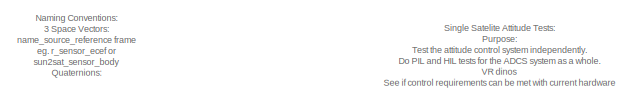
[diagram: root canvas - part 1/2, top left region]
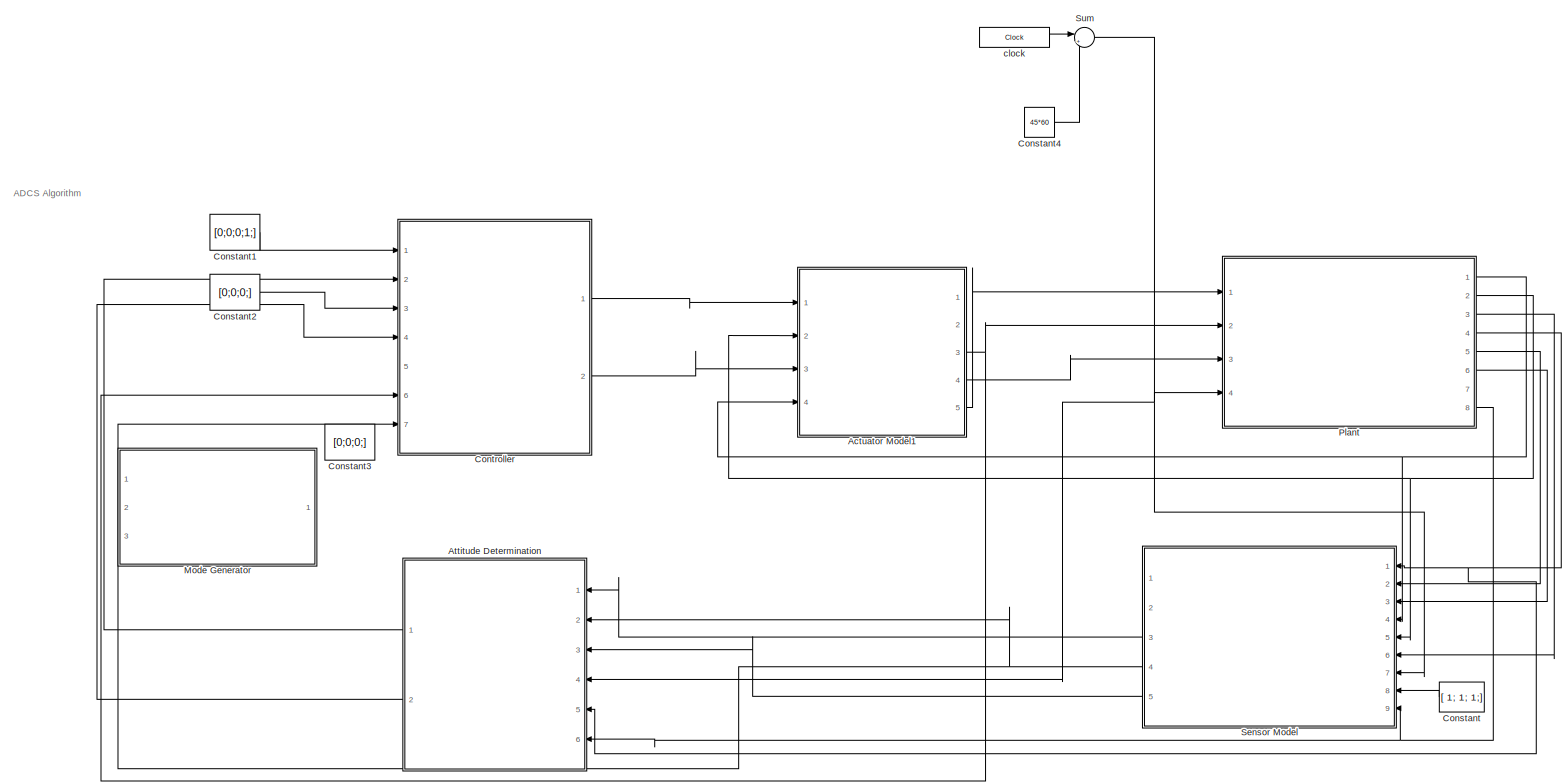
[diagram: root canvas - part 2/2, most of the canvas]
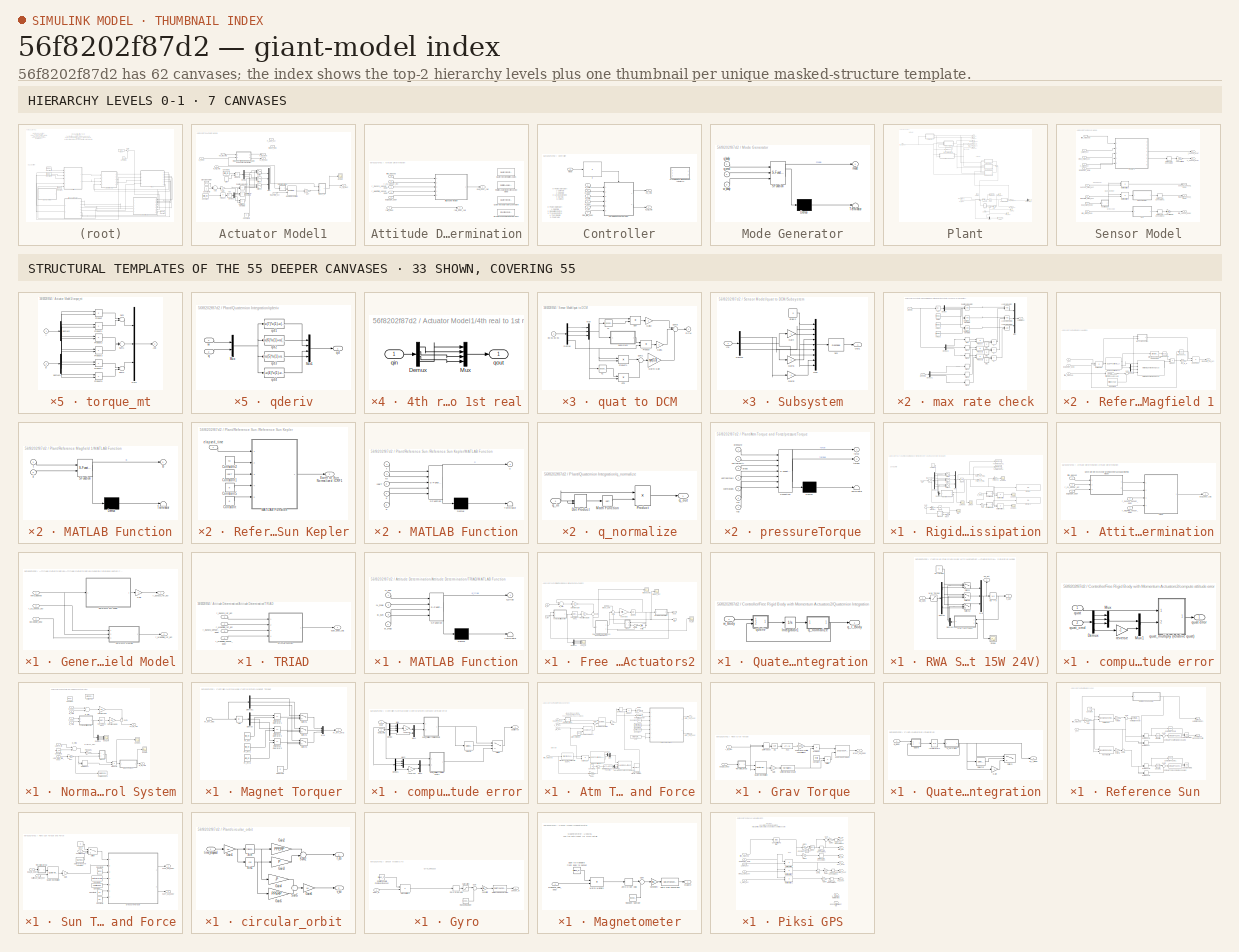
[diagram: thumbnail index - top-2 hierarchy levels (7 canvases) + 33 structural-template representatives of the remaining 55 canvases]
MODEL slx_56f8202f87d2
KIND model
CONFIG AbsTol = auto
CONFIG EnableMultiTasking = off
CONFIG FixedStep = 1/100
CONFIG MaxStep = auto
CONFIG MinStep = auto
CONFIG RelTol = 1e-3
CONFIG SampleTimeConstraint = Unconstrained
CONFIG Solver = ode1
CONFIG SolverName = ode1
CONFIG StartTime = 0.0
CONFIG StopTime = 10
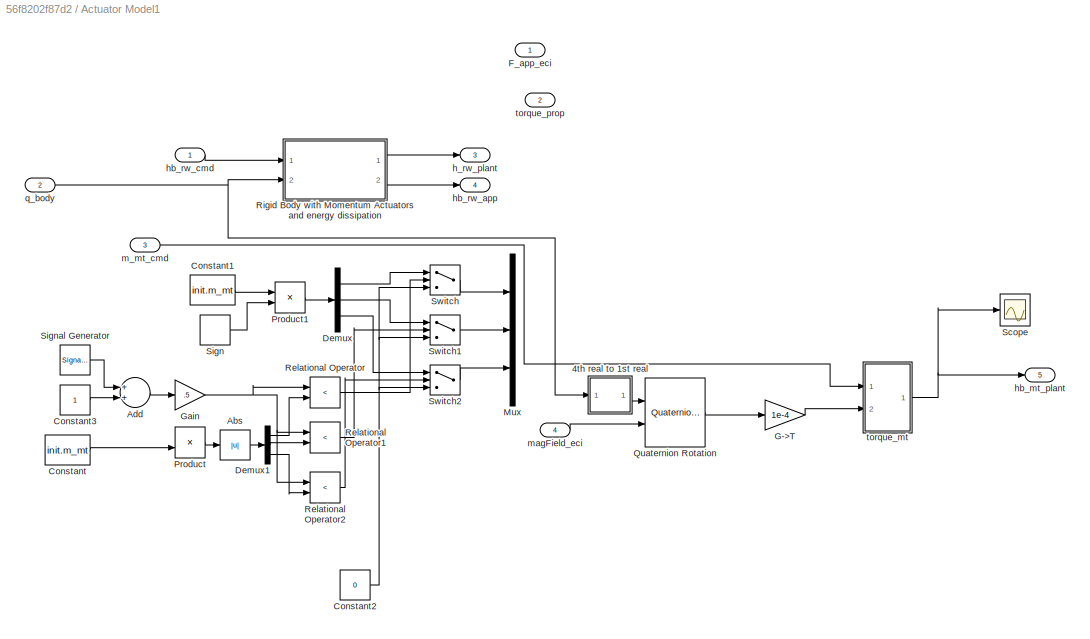
BLOCK [SubSystem] Actuator Model1
  Ports = [4, 5]
  RequestExecContextInheritance = off
BLOCK [SubSystem] Actuator Model1/4th real to 1st real
  Ports = [1, 1]
  RequestExecContextInheritance = off
BLOCK [Demux] Actuator Model1/4th real to 1st real/Demux
  DisplayOption = bar
  Ports = [1, 4]
BLOCK [Mux] Actuator Model1/4th real to 1st real/Mux
  DisplayOption = bar
  Ports = [4, 1]
BLOCK [Inport] Actuator Model1/4th real to 1st real/qin
  IconDisplay = Port number
BLOCK [Outport] Actuator Model1/4th real to 1st real/qout
  IconDisplay = Port number
BLOCK [Abs] Actuator Model1/Abs
BLOCK [Sum] Actuator Model1/Add
  InputSameDT = off
  OutDataTypeStr = Inherit: Inherit via internal rule
  Ports = [2, 1]
  SaturateOnIntegerOverflow = off
BLOCK [Constant] Actuator Model1/Constant
  Value = init.m_mt
BLOCK [Constant] Actuator Model1/Constant1
  Value = init.m_mt
BLOCK [Constant] Actuator Model1/Constant2
  Value = 0
BLOCK [Constant] Actuator Model1/Constant3
BLOCK [Demux] Actuator Model1/Demux
  DisplayOption = bar
  Outputs = 3
  Ports = [1, 3]
BLOCK [Demux] Actuator Model1/Demux1
  DisplayOption = bar
  Outputs = 3
  Ports = [1, 3]
BLOCK [Outport] Actuator Model1/F_app_eci
  IconDisplay = Port number
BLOCK [Gain] Actuator Model1/G->T
  Gain = 1e-4
  OutDataTypeStr = Inherit: Inherit via internal rule
  ParamDataTypeStr = Inherit: Inherit via internal rule
  SaturateOnIntegerOverflow = off
BLOCK [Gain] Actuator Model1/Gain
  Gain = .5
  OutDataTypeStr = Inherit: Inherit via internal rule
  ParamDataTypeStr = Inherit: Inherit via internal rule
  SaturateOnIntegerOverflow = off
BLOCK [Mux] Actuator Model1/Mux
  DisplayOption = bar
  Inputs = 3
  Ports = [3, 1]
BLOCK [Product] Actuator Model1/Product
  InputSameDT = off
  Inputs = */
  OutDataTypeStr = Inherit: Inherit via internal rule
  Ports = [2, 1]
  RndMeth = Floor
  SaturateOnIntegerOverflow = off
BLOCK [Product] Actuator Model1/Product1
  InputSameDT = off
  OutDataTypeStr = Inherit: Inherit via internal rule
  Ports = [2, 1]
  RndMeth = Floor
  SaturateOnIntegerOverflow = off
BLOCK [Reference] Actuator Model1/Quaternion Rotation  REF=aerolibutil/Quaternion
Rotation
  Ports = [2, 1]
  SourceBlock = aerolibutil/Quaternion\nRotation
  SourceProductBaseCode = AE
  SourceProductName = Aerospace Blockset
  SourceType = Quaternion Rotation
BLOCK [RelationalOperator] Actuator Model1/Relational Operator
  InputSameDT = off
  Operator = <
  OutDataTypeStr = boolean
  Ports = [2, 1]
  RndMeth = Simplest
BLOCK [RelationalOperator] Actuator Model1/Relational Operator1
  InputSameDT = off
  Operator = <
  OutDataTypeStr = boolean
  Ports = [2, 1]
  RndMeth = Simplest
BLOCK [RelationalOperator] Actuator Model1/Relational Operator2
  InputSameDT = off
  Operator = <
  OutDataTypeStr = boolean
  Ports = [2, 1]
  RndMeth = Simplest
BLOCK [SubSystem] Actuator Model1/Rigid Body with Momentum Actuators and energy dissipation
  Ports = [2, 2]
  RequestExecContextInheritance = off
BLOCK [SubSystem] Actuator Model1/Rigid Body with Momentum Actuators and energy dissipation/Cross1
  Ports = [2, 1]
  RequestExecContextInheritance = off
BLOCK [Inport] Actuator Model1/Rigid Body with Momentum Actuators and energy dissipation/Cross1/A
  IconDisplay = Port number
  PortDimensions = 3
BLOCK [Outport] Actuator Model1/Rigid Body with Momentum Actuators and energy dissipation/Cross1/AxB
  IconDisplay = Port number
  InitialOutput = 0
BLOCK [Inport] Actuator Model1/Rigid Body with Momentum Actuators and energy dissipation/Cross1/B
  IconDisplay = Port number
  Port = 2
  PortDimensions = 3
BLOCK [Mux] Actuator Model1/Rigid Body with Momentum Actuators and energy dissipation/Cross1/Mux4
  Inputs = 3
  Ports = [3, 1]
BLOCK [Product] Actuator Model1/Rigid Body with Momentum Actuators and energy dissipation/Cross1/Product
  Ports = [2, 1]
  RndMeth = Floor
BLOCK [Product] Actuator Model1/Rigid Body with Momentum Actuators and energy dissipation/Cross1/Product1
  Ports = [2, 1]
  RndMeth = Floor
BLOCK [Product] Actuator Model1/Rigid Body with Momentum Actuators and energy dissipation/Cross1/Product2
  Ports = [2, 1]
  RndMeth = Floor
BLOCK [Product] Actuator Model1/Rigid Body with Momentum Actuators and energy dissipation/Cross1/Product3
  Ports = [2, 1]
  RndMeth = Floor
BLOCK [Product] Actuator Model1/Rigid Body with Momentum Actuators and energy dissipation/Cross1/Product4
  Ports = [2, 1]
  RndMeth = Floor
BLOCK [Product] Actuator Model1/Rigid Body with Momentum Actuators and energy dissipation/Cross1/Product5
  Ports = [2, 1]
  RndMeth = Floor
BLOCK [Sum] Actuator Model1/Rigid Body with Momentum Actuators and energy dissipation/Cross1/Sum
  Inputs = +-
  Ports = [2, 1]
BLOCK [Sum] Actuator Model1/Rigid Body with Momentum Actuators and energy dissipation/Cross1/Sum1
  Inputs = +-
  Ports = [2, 1]
BLOCK [Sum] Actuator Model1/Rigid Body with Momentum Actuators and energy dissipation/Cross1/Sum2
  Inputs = +-
  Ports = [2, 1]
BLOCK [Demux] Actuator Model1/Rigid Body with Momentum Actuators and energy dissipation/Cross1/demux2
  Outputs = 3
  Ports = [1, 3]
BLOCK [Demux] Actuator Model1/Rigid Body with Momentum Actuators and energy dissipation/Cross1/demux3
  Outputs = 3
  Ports = [1, 3]
BLOCK [Demux] Actuator Model1/Rigid Body with Momentum Actuators and energy dissipation/Demux
  Outputs = 3
  Ports = [1, 3]
BLOCK [Demux] Actuator Model1/Rigid Body with Momentum Actuators and energy dissipation/Demux1
  Outputs = 3
  Ports = [1, 3]
BLOCK [Display] Actuator Model1/Rigid Body with Momentum Actuators and energy dissipation/Display
  Decimation = 1
  Ports = [1]
BLOCK [Display] Actuator Model1/Rigid Body with Momentum Actuators and energy dissipation/Display1
  Decimation = 1
  Ports = [1]
BLOCK [Outport] Actuator Model1/Rigid Body with Momentum Actuators and energy dissipation/FWR_h_RWA
  IconDisplay = Port number
  PortDimensions = 3
BLOCK [Outport] Actuator Model1/Rigid Body with Momentum Actuators and energy dissipation/FWR_hb_RWA
  IconDisplay = Port number
  Port = 2
  PortDimensions = 3
BLOCK [Gain] Actuator Model1/Rigid Body with Momentum Actuators and energy dissipation/Gain
  Gain = -1
  OutDataTypeStr = Inherit: Inherit via internal rule
  ParamDataTypeStr = Inherit: Inherit via internal rule
  SaturateOnIntegerOverflow = off
BLOCK [Scope] Actuator Model1/Rigid Body with Momentum Actuators and energy dissipation/LDR_h
  Floating = off
  NumInputPorts = 1
  Ports = [1]
  ScopeSpecificationString = Simulink.scopes.TimeScopeBlockCfg('CurrentConfiguration', extmgr.ConfigurationSet(extmgr.Configuration('Core','General UI',true),extmgr.Configuration('Core','Source UI',true),extmgr.Configuration('Sources','WiredSimulink',true,'DataLoggingVariableName','ScopeData3','DataLoggingSaveFormat','StructureWithTime','DataLoggingDecimation','1','DataLoggingDecimateData',true),extmgr.Configuration('Visuals'...<+1738ch>
BLOCK [Scope] Actuator Model1/Rigid Body with Momentum Actuators and energy dissipation/LDR_hb
  Floating = off
  NumInputPorts = 1
  Ports = [1]
  ScopeSpecificationString = Simulink.scopes.TimeScopeBlockCfg('CurrentConfiguration', extmgr.ConfigurationSet(extmgr.Configuration('Core','General UI',true),extmgr.Configuration('Core','Source UI',true),extmgr.Configuration('Sources','WiredSimulink',true,'DataLoggingVariableName','ScopeData2','DataLoggingSaveFormat','StructureWithTime','DataLoggingDecimation','1','DataLoggingDecimateData',true),extmgr.Configuration('Visuals'...<+1819ch>
BLOCK [Product] Actuator Model1/Rigid Body with Momentum Actuators and energy dissipation/Matrix Multiply
  InputSameDT = off
  Multiplication = Matrix(*)
  OutDataTypeStr = Inherit: Inherit via internal rule
  Ports = [2, 1]
  RndMeth = Floor
  SaturateOnIntegerOverflow = off
BLOCK [Product] Actuator Model1/Rigid Body with Momentum Actuators and energy dissipation/Matrix Multiply1
  InputSameDT = off
  Multiplication = Matrix(*)
  OutDataTypeStr = Inherit: Inherit via internal rule
  Ports = [2, 1]
  RndMeth = Floor
  SaturateOnIntegerOverflow = off
BLOCK [Saturate] Actuator Model1/Rigid Body with Momentum Actuators and energy dissipation/Max Torque
  InputPortMap = u0
  LowerLimit = -init.hdmax
  Ports = [1, 1]
  UpperLimit = init.hdmax
BLOCK [Mux] Actuator Model1/Rigid Body with Momentum Actuators and energy dissipation/Mux
  DisplayOption = bar
  Inputs = 3
  Ports = [3, 1]
BLOCK [Gain] Actuator Model1/Rigid Body with Momentum Actuators and energy dissipation/RWA I
  Gain = init.RWA_I
  Multiplication = Matrix(K*u)
  OutDataTypeStr = Inherit: Inherit via internal rule
  ParamDataTypeStr = Inherit: Inherit via internal rule
  SaturateOnIntegerOverflow = off
BLOCK [Gain] Actuator Model1/Rigid Body with Momentum Actuators and energy dissipation/RWA invI
  Gain = init.RWA.invI
  Multiplication = Matrix(K*u)
  OutDataTypeStr = Inherit: Inherit via internal rule
  ParamDataTypeStr = Inherit: Inherit via internal rule
  SaturateOnIntegerOverflow = off
BLOCK [Gain] Actuator Model1/Rigid Body with Momentum Actuators and energy dissipation/RWA invI1
  Gain = init.RWA.invI
  Multiplication = Matrix(K*u)
  OutDataTypeStr = Inherit: Inherit via internal rule
  ParamDataTypeStr = Inherit: Inherit via internal rule
  SaturateOnIntegerOverflow = off
BLOCK [Scope] Actuator Model1/Rigid Body with Momentum Actuators and energy dissipation/Scope1
  Floating = off
  NumInputPorts = 1
  Ports = [1]
  ScopeSpecificationString = Simulink.scopes.TimeScopeBlockCfg('CurrentConfiguration', extmgr.ConfigurationSet(extmgr.Configuration('Core','General UI',true),extmgr.Configuration('Core','Source UI',true),extmgr.Configuration('Sources','WiredSimulink',true,'DataLoggingVariableName','ScopeData2','DataLoggingSaveFormat','StructureWithTime','DataLoggingDecimation','1','DataLoggingDecimateData',true),extmgr.Configuration('Visuals'...<+1891ch>
BLOCK [Scope] Actuator Model1/Rigid Body with Momentum Actuators and energy dissipation/Scope2
  Floating = off
  NumInputPorts = 1
  Ports = [1]
  ScopeSpecificationString = Simulink.scopes.TimeScopeBlockCfg('CurrentConfiguration', extmgr.ConfigurationSet(extmgr.Configuration('Core','General UI',true),extmgr.Configuration('Core','Source UI',true),extmgr.Configuration('Sources','WiredSimulink',true,'DataLoggingVariableName','ScopeData1','DataLoggingSaveFormat','StructureWithTime','DataLoggingDecimation','1','DataLoggingDecimateData',true),extmgr.Configuration('Visuals'...<+1888ch>
BLOCK [Scope] Actuator Model1/Rigid Body with Momentum Actuators and energy dissipation/Scope3
  Floating = off
  NumInputPorts = 1
  Ports = [1]
  ScopeSpecificationString = Simulink.scopes.TimeScopeBlockCfg('CurrentConfiguration', extmgr.ConfigurationSet(extmgr.Configuration('Core','General UI',true),extmgr.Configuration('Core','Source UI',true),extmgr.Configuration('Sources','WiredSimulink',true,'DataLoggingVariableName','ScopeData4','DataLoggingSaveFormat','StructureWithTime','DataLoggingDecimation','1','DataLoggingDecimateData',true),extmgr.Configuration('Visuals'...<+1896ch>
BLOCK [Sum] Actuator Model1/Rigid Body with Momentum Actuators and energy dissipation/Sum
  IconShape = round
  InputSameDT = off
  Inputs = +|-
  OutDataTypeStr = Inherit: Inherit via internal rule
  Ports = [2, 1]
  SaturateOnIntegerOverflow = off
BLOCK [Switch] Actuator Model1/Rigid Body with Momentum Actuators and energy dissipation/Switch
  Threshold = 0.5
BLOCK [Switch] Actuator Model1/Rigid Body with Momentum Actuators and energy dissipation/Switch1
  Threshold = 0.5
BLOCK [Switch] Actuator Model1/Rigid Body with Momentum Actuators and energy dissipation/Switch2
  Threshold = 0.5
BLOCK [ToWorkspace] Actuator Model1/Rigid Body with Momentum Actuators and energy dissipation/To Workspace
  FixptAsFi = on
  MaxDataPoints = inf
  Ports = [1]
  SampleTime = -1
  Save2DSignal = 3-D array (concatenate along third dimension)
  SaveFormat = Timeseries
  VariableName = h
BLOCK [ToWorkspace] Actuator Model1/Rigid Body with Momentum Actuators and energy dissipation/To Workspace1
  FixptAsFi = on
  MaxDataPoints = inf
  Ports = [1]
  SampleTime = -1
  Save2DSignal = 3-D array (concatenate along third dimension)
  SaveFormat = Timeseries
  VariableName = hb
BLOCK [Inport] Actuator Model1/Rigid Body with Momentum Actuators and energy dissipation/hb
  IconDisplay = Port number
BLOCK [Integrator] Actuator Model1/Rigid Body with Momentum Actuators and energy dissipation/hb -> h
  InitialCondition = init.LDR.h
  Ports = [1, 1]
BLOCK [SubSystem] Actuator Model1/Rigid Body with Momentum Actuators and energy dissipation/max rate check
  Ports = [2, 1]
  RequestExecContextInheritance = off
BLOCK [Constant] Actuator Model1/Rigid Body with Momentum Actuators and energy dissipation/max rate check/0 to 1
  Value = 0
  VectorParams1D = off
BLOCK [Constant] Actuator Model1/Rigid Body with Momentum Actuators and energy dissipation/max rate check/0 to 1 
  Value = 0
  VectorParams1D = off
BLOCK [Constant] Actuator Model1/Rigid Body with Momentum Actuators and energy dissipation/max rate check/0 to 1  
  Value = 0
  VectorParams1D = off
BLOCK [Abs] Actuator Model1/Rigid Body with Momentum Actuators and energy dissipation/max rate check/Abs
BLOCK [Demux] Actuator Model1/Rigid Body with Momentum Actuators and energy dissipation/max rate check/Demux
  Outputs = 3
  Ports = [1, 3]
BLOCK [Demux] Actuator Model1/Rigid Body with Momentum Actuators and energy dissipation/max rate check/Demux1
  Outputs = 3
  Ports = [1, 3]
BLOCK [Demux] Actuator Model1/Rigid Body with Momentum Actuators and energy dissipation/max rate check/Demux2
  Outputs = 3
  Ports = [1, 3]
BLOCK [Logic] Actuator Model1/Rigid Body with Momentum Actuators and energy dissipation/max rate check/Logical Operator
  Ports = [2, 1]
BLOCK [Logic] Actuator Model1/Rigid Body with Momentum Actuators and energy dissipation/max rate check/Logical Operator1
  Ports = [2, 1]
BLOCK [Logic] Actuator Model1/Rigid Body with Momentum Actuators and energy dissipation/max rate check/Logical Operator2
  Ports = [2, 1]
BLOCK [Mux] Actuator Model1/Rigid Body with Momentum Actuators and energy dissipation/max rate check/Mux
  DisplayOption = bar
  Inputs = 3
  Ports = [3, 1]
BLOCK [Product] Actuator Model1/Rigid Body with Momentum Actuators and energy dissipation/max rate check/Product
  Ports = [2, 1]
  RndMeth = Floor
BLOCK [Product] Actuator Model1/Rigid Body with Momentum Actuators and energy dissipation/max rate check/Product1
  Ports = [2, 1]
  RndMeth = Floor
BLOCK [Product] Actuator Model1/Rigid Body with Momentum Actuators and energy dissipation/max rate check/Product2
  Ports = [2, 1]
  RndMeth = Floor
BLOCK [RelationalOperator] Actuator Model1/Rigid Body with Momentum Actuators and energy dissipation/max rate check/Relational Operator
  Ports = [2, 1]
BLOCK [RelationalOperator] Actuator Model1/Rigid Body with Momentum Actuators and energy dissipation/max rate check/Relational Operator1
  Ports = [2, 1]
BLOCK [RelationalOperator] Actuator Model1/Rigid Body with Momentum Actuators and energy dissipation/max rate check/Relational Operator2
  Ports = [2, 1]
BLOCK [Signum] Actuator Model1/Rigid Body with Momentum Actuators and energy dissipation/max rate check/Sign
BLOCK [Signum] Actuator Model1/Rigid Body with Momentum Actuators and energy dissipation/max rate check/Sign1
BLOCK [Signum] Actuator Model1/Rigid Body with Momentum Actuators and energy dissipation/max rate check/Sign2
BLOCK [Signum] Actuator Model1/Rigid Body with Momentum Actuators and energy dissipation/max rate check/Sign3
BLOCK [Signum] Actuator Model1/Rigid Body with Momentum Actuators and energy dissipation/max rate check/Sign4
BLOCK [Signum] Actuator Model1/Rigid Body with Momentum Actuators and energy dissipation/max rate check/Sign5
BLOCK [RelationalOperator] Actuator Model1/Rigid Body with Momentum Actuators and energy dissipation/max rate check/gt
  Operator = >
  Ports = [2, 1]
BLOCK [RelationalOperator] Actuator Model1/Rigid Body with Momentum Actuators and energy dissipation/max rate check/gt 
  Operator = >
  Ports = [2, 1]
BLOCK [RelationalOperator] Actuator Model1/Rigid Body with Momentum Actuators and energy dissipation/max rate check/gt  
  Operator = >
  Ports = [2, 1]
BLOCK [Constant] Actuator Model1/Rigid Body with Momentum Actuators and energy dissipation/max rate check/hmax
  Value = init.hmax
  VectorParams1D = off
BLOCK [Constant] Actuator Model1/Rigid Body with Momentum Actuators and energy dissipation/max rate check/hmax1
  Value = init.hmax
  VectorParams1D = off
BLOCK [Constant] Actuator Model1/Rigid Body with Momentum Actuators and energy dissipation/max rate check/hmax2
  Value = init.hmax
  VectorParams1D = off
BLOCK [Outport] Actuator Model1/Rigid Body with Momentum Actuators and energy dissipation/max rate check/saturated?
  IconDisplay = Port number
BLOCK [Inport] Actuator Model1/Rigid Body with Momentum Actuators and energy dissipation/max rate check/wheel h
  IconDisplay = Port number
BLOCK [Inport] Actuator Model1/Rigid Body with Momentum Actuators and energy dissipation/max rate check/wheel hb
  IconDisplay = Port number
  Port = 2
BLOCK [Constant] Actuator Model1/Rigid Body with Momentum Actuators and energy dissipation/no torque
  Value = 0
BLOCK [Inport] Actuator Model1/Rigid Body with Momentum Actuators and energy dissipation/q_body
  IconDisplay = Port number
  Port = 2
BLOCK [SubSystem] Actuator Model1/Rigid Body with Momentum Actuators and energy dissipation/quat to DCM
  Ports = [1, 1]
  RequestExecContextInheritance = off
  ShowPortLabels = none
BLOCK [Outport] Actuator Model1/Rigid Body with Momentum Actuators and energy dissipation/quat to DCM/DCM
  IconDisplay = Port number
  InitialOutput = 0
BLOCK [Demux] Actuator Model1/Rigid Body with Momentum Actuators and energy dissipation/quat to DCM/Demux
  Ports = [1, 4]
BLOCK [Gain] Actuator Model1/Rigid Body with Momentum Actuators and energy dissipation/quat to DCM/Gain1
  Gain = 2
BLOCK [Gain] Actuator Model1/Rigid Body with Momentum Actuators and energy dissipation/quat to DCM/Gain2
  Gain = 2
BLOCK [Gain] Actuator Model1/Rigid Body with Momentum Actuators and energy dissipation/quat to DCM/Matrix Gain
  Gain = eye(3,3)
BLOCK [Mux] Actuator Model1/Rigid Body with Momentum Actuators and energy dissipation/quat to DCM/Mux
  DisplayOption = bar
  Inputs = 3
  Ports = [3, 1]
BLOCK [Product] Actuator Model1/Rigid Body with Momentum Actuators and energy dissipation/quat to DCM/Product
  Ports = [2, 1]
  RndMeth = Floor
BLOCK [Product] Actuator Model1/Rigid Body with Momentum Actuators and energy dissipation/quat to DCM/Product1
  Ports = [2, 1]
  RndMeth = Floor
BLOCK [SubSystem] Actuator Model1/Rigid Body with Momentum Actuators and energy dissipation/quat to DCM/Subsystem
  Ports = [1, 1]
  RequestExecContextInheritance = off
BLOCK [Reshape] Actuator Model1/Rigid Body with Momentum Actuators and energy dissipation/quat to DCM/Subsystem/3x3
  OutputDimensionality = Customize
  OutputDimensions = [3,3]
  Ports = [1, 1]
BLOCK [Demux] Actuator Model1/Rigid Body with Momentum Actuators and energy dissipation/quat to DCM/Subsystem/Demux
  Outputs = 3
  Ports = [1, 3]
BLOCK [Gain] Actuator Model1/Rigid Body with Momentum Actuators and energy dissipation/quat to DCM/Subsystem/Gain
  Gain = -1
BLOCK [Gain] Actuator Model1/Rigid Body with Momentum Actuators and energy dissipation/quat to DCM/Subsystem/Gain1
  Gain = -1
BLOCK [Gain] Actuator Model1/Rigid Body with Momentum Actuators and energy dissipation/quat to DCM/Subsystem/Gain2
  Gain = -1
BLOCK [Inport] Actuator Model1/Rigid Body with Momentum Actuators and energy dissipation/quat to DCM/Subsystem/In1
  IconDisplay = Port number
BLOCK [Mux] Actuator Model1/Rigid Body with Momentum Actuators and energy dissipation/quat to DCM/Subsystem/Mux
  DisplayOption = bar
  Inputs = 9
  Ports = [9, 1]
BLOCK [Outport] Actuator Model1/Rigid Body with Momentum Actuators and energy dissipation/quat to DCM/Subsystem/Out1
  IconDisplay = Port number
BLOCK [Constant] Actuator Model1/Rigid Body with Momentum Actuators and energy dissipation/quat to DCM/Subsystem/diag 0 
  Value = 0
BLOCK [Sum] Actuator Model1/Rigid Body with Momentum Actuators and energy dissipation/quat to DCM/Sum1
  IconShape = round
  Inputs = |+-
  Ports = [2, 1]
BLOCK [Sum] Actuator Model1/Rigid Body with Momentum Actuators and energy dissipation/quat to DCM/Sum8
  IconShape = round
  Inputs = |+-+
  Ports = [3, 1]
BLOCK [Math] Actuator Model1/Rigid Body with Momentum Actuators and energy dissipation/quat to DCM/T1
  Operator = transpose
  Ports = [1, 1]
BLOCK [Math] Actuator Model1/Rigid Body with Momentum Actuators and energy dissipation/quat to DCM/T2
  Operator = transpose
  Ports = [1, 1]
BLOCK [Inport] Actuator Model1/Rigid Body with Momentum Actuators and energy dissipation/quat to DCM/e0 e1 e2 e3
  IconDisplay = Port number
BLOCK [Product] Actuator Model1/Rigid Body with Momentum Actuators and energy dissipation/quat to DCM/qTq
  Multiplication = Matrix(*)
  Ports = [2, 1]
  RndMeth = Floor
BLOCK [Product] Actuator Model1/Rigid Body with Momentum Actuators and energy dissipation/quat to DCM/qqT
  Multiplication = Matrix(*)
  Ports = [2, 1]
  RndMeth = Floor
BLOCK [SubSystem] Actuator Model1/Rigid Body with Momentum Actuators and energy dissipation/quat to DCM1
  Ports = [1, 1]
  RequestExecContextInheritance = off
  ShowPortLabels = none
BLOCK [Outport] Actuator Model1/Rigid Body with Momentum Actuators and energy dissipation/quat to DCM1/DCM
  IconDisplay = Port number
  InitialOutput = 0
BLOCK [Demux] Actuator Model1/Rigid Body with Momentum Actuators and energy dissipation/quat to DCM1/Demux
  Ports = [1, 4]
BLOCK [Gain] Actuator Model1/Rigid Body with Momentum Actuators and energy dissipation/quat to DCM1/Gain1
  Gain = 2
BLOCK [Gain] Actuator Model1/Rigid Body with Momentum Actuators and energy dissipation/quat to DCM1/Gain2
  Gain = 2
BLOCK [Gain] Actuator Model1/Rigid Body with Momentum Actuators and energy dissipation/quat to DCM1/Matrix Gain
  Gain = eye(3,3)
BLOCK [Mux] Actuator Model1/Rigid Body with Momentum Actuators and energy dissipation/quat to DCM1/Mux
  DisplayOption = bar
  Inputs = 3
  Ports = [3, 1]
BLOCK [Product] Actuator Model1/Rigid Body with Momentum Actuators and energy dissipation/quat to DCM1/Product
  Ports = [2, 1]
  RndMeth = Floor
BLOCK [Product] Actuator Model1/Rigid Body with Momentum Actuators and energy dissipation/quat to DCM1/Product1
  Ports = [2, 1]
  RndMeth = Floor
BLOCK [SubSystem] Actuator Model1/Rigid Body with Momentum Actuators and energy dissipation/quat to DCM1/Subsystem
  Ports = [1, 1]
  RequestExecContextInheritance = off
BLOCK [Reshape] Actuator Model1/Rigid Body with Momentum Actuators and energy dissipation/quat to DCM1/Subsystem/3x3
  OutputDimensionality = Customize
  OutputDimensions = [3,3]
  Ports = [1, 1]
BLOCK [Demux] Actuator Model1/Rigid Body with Momentum Actuators and energy dissipation/quat to DCM1/Subsystem/Demux
  Outputs = 3
  Ports = [1, 3]
BLOCK [Gain] Actuator Model1/Rigid Body with Momentum Actuators and energy dissipation/quat to DCM1/Subsystem/Gain
  Gain = -1
BLOCK [Gain] Actuator Model1/Rigid Body with Momentum Actuators and energy dissipation/quat to DCM1/Subsystem/Gain1
  Gain = -1
BLOCK [Gain] Actuator Model1/Rigid Body with Momentum Actuators and energy dissipation/quat to DCM1/Subsystem/Gain2
  Gain = -1
BLOCK [Inport] Actuator Model1/Rigid Body with Momentum Actuators and energy dissipation/quat to DCM1/Subsystem/In1
  IconDisplay = Port number
BLOCK [Mux] Actuator Model1/Rigid Body with Momentum Actuators and energy dissipation/quat to DCM1/Subsystem/Mux
  DisplayOption = bar
  Inputs = 9
  Ports = [9, 1]
BLOCK [Outport] Actuator Model1/Rigid Body with Momentum Actuators and energy dissipation/quat to DCM1/Subsystem/Out1
  IconDisplay = Port number
BLOCK [Constant] Actuator Model1/Rigid Body with Momentum Actuators and energy dissipation/quat to DCM1/Subsystem/diag 0 
  Value = 0
BLOCK [Sum] Actuator Model1/Rigid Body with Momentum Actuators and energy dissipation/quat to DCM1/Sum1
  IconShape = round
  Inputs = |+-
  Ports = [2, 1]
BLOCK [Sum] Actuator Model1/Rigid Body with Momentum Actuators and energy dissipation/quat to DCM1/Sum8
  IconShape = round
  Inputs = |+-+
  Ports = [3, 1]
BLOCK [Math] Actuator Model1/Rigid Body with Momentum Actuators and energy dissipation/quat to DCM1/T1
  Operator = transpose
  Ports = [1, 1]
BLOCK [Math] Actuator Model1/Rigid Body with Momentum Actuators and energy dissipation/quat to DCM1/T2
  Operator = transpose
  Ports = [1, 1]
BLOCK [Inport] Actuator Model1/Rigid Body with Momentum Actuators and energy dissipation/quat to DCM1/e0 e1 e2 e3
  IconDisplay = Port number
BLOCK [Product] Actuator Model1/Rigid Body with Momentum Actuators and energy dissipation/quat to DCM1/qTq
  Multiplication = Matrix(*)
  Ports = [2, 1]
  RndMeth = Floor
BLOCK [Product] Actuator Model1/Rigid Body with Momentum Actuators and energy dissipation/quat to DCM1/qqT
  Multiplication = Matrix(*)
  Ports = [2, 1]
  RndMeth = Floor
BLOCK [Scope] Actuator Model1/Rigid Body with Momentum Actuators and energy dissipation/rwa
  Floating = off
  NumInputPorts = 1
  Ports = [1]
  ScopeSpecificationString = Simulink.scopes.TimeScopeBlockCfg('CurrentConfiguration', extmgr.ConfigurationSet(extmgr.Configuration('Core','General UI',true),extmgr.Configuration('Core','Source UI',true),extmgr.Configuration('Sources','WiredSimulink',true,'DataLoggingVariableName','ScopeData3','DataLoggingSaveFormat','StructureWithTime','DataLoggingDecimation','1','DataLoggingDecimateData',true),extmgr.Configuration('Visuals'...<+1896ch>
BLOCK [Integrator] Actuator Model1/Rigid Body with Momentum Actuators and energy dissipation/wb -> w
  InitialCondition = [0;0;0]
  Ports = [1, 1]
BLOCK [Scope] Actuator Model1/Scope
  Floating = off
  NumInputPorts = 1
  Ports = [1]
  ScopeSpecificationString = Simulink.scopes.TimeScopeBlockCfg('CurrentConfiguration', extmgr.ConfigurationSet(extmgr.Configuration('Core','General UI',true),extmgr.Configuration('Core','Source UI',true),extmgr.Configuration('Sources','WiredSimulink',true,'DataLoggingVariableName','ScopeData1'),extmgr.Configuration('Visuals','Time Domain',true,'SerializedDisplays',{struct('MinYLimReal','-1.00000','MaxYLimReal','1.00000','YLab...<+1548ch>
BLOCK [Signum] Actuator Model1/Sign
BLOCK [SignalGenerator] Actuator Model1/Signal Generator
  Frequency = .5
  Ports = [0, 1]
  WaveForm = sawtooth
BLOCK [Switch] Actuator Model1/Switch
  Threshold = 0.5
BLOCK [Switch] Actuator Model1/Switch1
  Threshold = 0.5
BLOCK [Switch] Actuator Model1/Switch2
  Threshold = 0.5
BLOCK [Outport] Actuator Model1/h_rw_plant
  IconDisplay = Port number
  Port = 3
BLOCK [Outport] Actuator Model1/hb_mt_plant
  IconDisplay = Port number
  Port = 5
BLOCK [Outport] Actuator Model1/hb_rw_app
  IconDisplay = Port number
  Port = 4
BLOCK [Inport] Actuator Model1/hb_rw_cmd
  IconDisplay = Port number
BLOCK [Inport] Actuator Model1/m_mt_cmd
  IconDisplay = Port number
  Port = 3
BLOCK [Inport] Actuator Model1/magField_eci
  IconDisplay = Port number
  Port = 4
  PortDimensions = 3
  Unit = G
BLOCK [Inport] Actuator Model1/q_body
  IconDisplay = Port number
  Port = 2
BLOCK [SubSystem] Actuator Model1/torque_mt
  Ports = [2, 1]
  RequestExecContextInheritance = off
BLOCK [Inport] Actuator Model1/torque_mt/A
  IconDisplay = Port number
BLOCK [Outport] Actuator Model1/torque_mt/AxB
  IconDisplay = Port number
  InitialOutput = 0
BLOCK [Inport] Actuator Model1/torque_mt/B
  IconDisplay = Port number
  Port = 2
BLOCK [Mux] Actuator Model1/torque_mt/Mux4
  Inputs = 3
  Ports = [3, 1]
BLOCK [Product] Actuator Model1/torque_mt/Product
  Ports = [2, 1]
  RndMeth = Floor
BLOCK [Product] Actuator Model1/torque_mt/Product1
  Ports = [2, 1]
  RndMeth = Floor
BLOCK [Product] Actuator Model1/torque_mt/Product2
  Ports = [2, 1]
  RndMeth = Floor
BLOCK [Product] Actuator Model1/torque_mt/Product3
  Ports = [2, 1]
  RndMeth = Floor
BLOCK [Product] Actuator Model1/torque_mt/Product4
  Ports = [2, 1]
  RndMeth = Floor
BLOCK [Product] Actuator Model1/torque_mt/Product5
  Ports = [2, 1]
  RndMeth = Floor
BLOCK [Sum] Actuator Model1/torque_mt/Sum
  Inputs = +-
  Ports = [2, 1]
BLOCK [Sum] Actuator Model1/torque_mt/Sum1
  Inputs = +-
  Ports = [2, 1]
BLOCK [Sum] Actuator Model1/torque_mt/Sum2
  Inputs = +-
  Ports = [2, 1]
BLOCK [Demux] Actuator Model1/torque_mt/demux2
  Outputs = 3
  Ports = [1, 3]
BLOCK [Demux] Actuator Model1/torque_mt/demux3
  Outputs = 3
  Ports = [1, 3]
BLOCK [Outport] Actuator Model1/torque_prop
  IconDisplay = Port number
  Port = 2
BLOCK [SubSystem] Attitude Determination
  Ports = [6, 2]
  RequestExecContextInheritance = off
BLOCK [SubSystem] Attitude Determination/Attitude Determination
  Ports = [5, 1]
  RequestExecContextInheritance = off
BLOCK [Inport] Attitude Determination/Attitude Determination/ECI2ECEF_DCM
  IconDisplay = Port number
  Port = 5
BLOCK [SubSystem] Attitude Determination/Attitude Determination/Generate reference vectors from Ephemeris and Magnetic Field Model
  Ports = [3, 2]
  RequestExecContextInheritance = off
BLOCK [Inport] Attitude Determination/Attitude Determination/Generate reference vectors from Ephemeris and Magnetic Field Model/ECI2ECEF_DCM
  IconDisplay = Port number
  Port = 3
BLOCK [Gain] Attitude Determination/Attitude Determination/Generate reference vectors from Ephemeris and Magnetic Field Model/Gain
  Gain = -1
  OutDataTypeStr = Inherit: Inherit via internal rule
  ParamDataTypeStr = Inherit: Inherit via internal rule
  SaturateOnIntegerOverflow = off
BLOCK [SubSystem] Attitude Determination/Attitude Determination/Generate reference vectors from Ephemeris and Magnetic Field Model/Reference Magfield 
  Ports = [3, 1]
  RequestExecContextInheritance = off
BLOCK [Constant] Attitude Determination/Attitude Determination/Generate reference vectors from Ephemeris and Magnetic Field Model/Reference Magfield /Constant1
  Value = init.decyear
BLOCK [Demux] Attitude Determination/Attitude Determination/Generate reference vectors from Ephemeris and Magnetic Field Model/Reference Magfield /Demux
  Commented = on
  DisplayOption = bar
  Outputs = 2
  Ports = [1, 2]
BLOCK [Reference] Attitude Determination/Attitude Determination/Generate reference vectors from Ephemeris and Magnetic Field Model/Reference Magfield /Direction Cosine Matrix ECEF to NED  REF=aerolibtransform2/Direction Cosine Matrix
ECEF to NED
  Commented = on
  Ports = [1, 1]
  SourceBlock = aerolibtransform2/Direction Cosine Matrix\nECEF to NED
  SourceProductBaseCode = AE
  SourceProductName = Aerospace Blockset
  SourceType = DCM ECEF to NED
BLOCK [Reference] Attitude Determination/Attitude Determination/Generate reference vectors from Ephemeris and Magnetic Field Model/Reference Magfield /ECEF Position to LLA  REF=aerolibtransform2/ECEF Position to LLA
  Commented = on
  Ports = [1, 2]
  SourceBlock = aerolibtransform2/ECEF Position to LLA
  SourceProductBaseCode = AE
  SourceProductName = Aerospace Blockset
  SourceType = ECEF to LLA
BLOCK [Product] Attitude Determination/Attitude Determination/Generate reference vectors from Ephemeris and Magnetic Field Model/Reference Magfield /ECEF to ECI
  InputSameDT = off
  Multiplication = Matrix(*)
  OutDataTypeStr = double
  Ports = [2, 1]
  RndMeth = Floor
  SaturateOnIntegerOverflow = off
BLOCK [Product] Attitude Determination/Attitude Determination/Generate reference vectors from Ephemeris and Magnetic Field Model/Reference Magfield /ECI to ECEF
  InputSameDT = off
  Multiplication = Matrix(*)
  OutDataTypeStr = double
  Ports = [2, 1]
  RndMeth = Floor
  SaturateOnIntegerOverflow = off
BLOCK [Inport] Attitude Determination/Attitude Determination/Generate reference vectors from Ephemeris and Magnetic Field Model/Reference Magfield /ECI2ECEF_DCM
  IconDisplay = Port number
  Port = 3
BLOCK [SubSystem] Attitude Determination/Attitude Determination/Generate reference vectors from Ephemeris and Magnetic Field Model/Reference Magfield /MATLAB Function
  ErrorFcn = Stateflow.Translate.translate
  PermitHierarchicalResolution = ExplicitOnly
  Ports = [2, 1]
  RequestExecContextInheritance = off
  SFBlockType = MATLAB Function
  TreatAsAtomicUnit = on
BLOCK [Demux] Attitude Determination/Attitude Determination/Generate reference vectors from Ephemeris and Magnetic Field Model/Reference Magfield /MATLAB Function/ Demux 
  Outputs = 1
  Ports = [1, 1]
BLOCK [S-Function] Attitude Determination/Attitude Determination/Generate reference vectors from Ephemeris and Magnetic Field Model/Reference Magfield /MATLAB Function/ SFunction 
  EnableBusSupport = on
  FunctionName = sf_sfun
  PortCounts = [2 2]
  Ports = [2, 2]
  SFcnIsStateOwnerBlock = off
  SFunctionDeploymentMode = off
  Tag = Stateflow S-Function single_sat_attitude 5
BLOCK [Terminator] Attitude Determination/Attitude Determination/Generate reference vectors from Ephemeris and Magnetic Field Model/Reference Magfield /MATLAB Function/ Terminator 
BLOCK [Outport] Attitude Determination/Attitude Determination/Generate reference vectors from Ephemeris and Magnetic Field Model/Reference Magfield /MATLAB Function/B
  IconDisplay = Port number
BLOCK [Inport] Attitude Determination/Attitude Determination/Generate reference vectors from Ephemeris and Magnetic Field Model/Reference Magfield /MATLAB Function/t
  IconDisplay = Port number
BLOCK [Inport] Attitude Determination/Attitude Determination/Generate reference vectors from Ephemeris and Magnetic Field Model/Reference Magfield /MATLAB Function/x
  IconDisplay = Port number
  Port = 2
BLOCK [Product] Attitude Determination/Attitude Determination/Generate reference vectors from Ephemeris and Magnetic Field Model/Reference Magfield /Product
  Commented = on
  InputSameDT = off
  Multiplication = Matrix(*)
  OutDataTypeStr = Inherit: Inherit via internal rule
  Ports = [2, 1]
  RndMeth = Floor
  SaturateOnIntegerOverflow = off
BLOCK [Sum] Attitude Determination/Attitude Determination/Generate reference vectors from Ephemeris and Magnetic Field Model/Reference Magfield /Sum
  IconShape = round
  InputSameDT = off
  Inputs = |++
  OutDataTypeStr = Inherit: Inherit via internal rule
  Ports = [2, 1]
  SaturateOnIntegerOverflow = off
BLOCK [Math] Attitude Determination/Attitude Determination/Generate reference vectors from Ephemeris and Magnetic Field Model/Reference Magfield /Transpose
  Commented = on
  Operator = transpose
  Ports = [1, 1]
BLOCK [Math] Attitude Determination/Attitude Determination/Generate reference vectors from Ephemeris and Magnetic Field Model/Reference Magfield /Transpose1
  Operator = transpose
  Ports = [1, 1]
BLOCK [Reference] Attitude Determination/Attitude Determination/Generate reference vectors from Ephemeris and Magnetic Field Model/Reference Magfield /World Magnetic Model 2015  REF=aerolibgravity2/World Magnetic Model 2015
  Commented = on
  Ports = [4, 1]
  SourceBlock = aerolibgravity2/World Magnetic Model 2015
  SourceProductBaseCode = AE
  SourceProductName = Aerospace Blockset
  SourceType = WorldMagneticModel2015
BLOCK [Outport] Attitude Determination/Attitude Determination/Generate reference vectors from Ephemeris and Magnetic Field Model/Reference Magfield /magField_out_eci
  IconDisplay = Port number
  PortDimensions = 3
  Unit = G
BLOCK [Gain] Attitude Determination/Attitude Determination/Generate reference vectors from Ephemeris and Magnetic Field Model/Reference Magfield /nT_to_G
  Commented = on
  Gain = 1e-5
  OutDataTypeStr = Inherit: Inherit via internal rule
  ParamDataTypeStr = Inherit: Inherit via internal rule
  SaturateOnIntegerOverflow = off
BLOCK [Inport] Attitude Determination/Attitude Determination/Generate reference vectors from Ephemeris and Magnetic Field Model/Reference Magfield /r_eci
  IconDisplay = Port number
  PortDimensions = 3
  Unit = m
BLOCK [Gain] Attitude Determination/Attitude Determination/Generate reference vectors from Ephemeris and Magnetic Field Model/Reference Magfield /time elapsed to years
  Gain = 1/365/24/3600
  OutDataTypeStr = Inherit: Inherit via internal rule
  ParamDataTypeStr = Inherit: Inherit via internal rule
  SaturateOnIntegerOverflow = off
BLOCK [Inport] Attitude Determination/Attitude Determination/Generate reference vectors from Ephemeris and Magnetic Field Model/Reference Magfield /time_elapsed
  IconDisplay = Port number
  Port = 2
  PortDimensions = 1
  Unit = s
BLOCK [SubSystem] Attitude Determination/Attitude Determination/Generate reference vectors from Ephemeris and Magnetic Field Model/Reference Sun Kepler
  Ports = [1, 1]
  RequestExecContextInheritance = off
BLOCK [Constant] Attitude Determination/Attitude Determination/Generate reference vectors from Ephemeris and Magnetic Field Model/Reference Sun Kepler/Constant
  Value = q
BLOCK [Constant] Attitude Determination/Attitude Determination/Generate reference vectors from Ephemeris and Magnetic Field Model/Reference Sun Kepler/Constant1
  Value = yearT
BLOCK [Constant] Attitude Determination/Attitude Determination/Generate reference vectors from Ephemeris and Magnetic Field Model/Reference Sun Kepler/Constant2
  Value = tp
BLOCK [Constant] Attitude Determination/Attitude Determination/Generate reference vectors from Ephemeris and Magnetic Field Model/Reference Sun Kepler/Constant5
  Value = e
BLOCK [Outport] Attitude Determination/Attitude Determination/Generate reference vectors from Ephemeris and Magnetic Field Model/Reference Sun Kepler/Earth to Sun Normalized ICRF1
  IconDisplay = Port number
BLOCK [SubSystem] Attitude Determination/Attitude Determination/Generate reference vectors from Ephemeris and Magnetic Field Model/Reference Sun Kepler/MATLAB Function
  ErrorFcn = Stateflow.Translate.translate
  PermitHierarchicalResolution = ExplicitOnly
  Ports = [5, 1]
  RequestExecContextInheritance = off
  SFBlockType = MATLAB Function
  TreatAsAtomicUnit = on
BLOCK [Demux] Attitude Determination/Attitude Determination/Generate reference vectors from Ephemeris and Magnetic Field Model/Reference Sun Kepler/MATLAB Function/ Demux 
  Outputs = 1
  Ports = [1, 1]
BLOCK [S-Function] Attitude Determination/Attitude Determination/Generate reference vectors from Ephemeris and Magnetic Field Model/Reference Sun Kepler/MATLAB Function/ SFunction 
  EnableBusSupport = on
  FunctionName = sf_sfun
  PortCounts = [5 2]
  Ports = [5, 2]
  SFcnIsStateOwnerBlock = off
  SFunctionDeploymentMode = off
  Tag = Stateflow S-Function single_sat_attitude 1
BLOCK [Terminator] Attitude Determination/Attitude Determination/Generate reference vectors from Ephemeris and Magnetic Field Model/Reference Sun Kepler/MATLAB Function/ Terminator 
BLOCK [Outport] Attitude Determination/Attitude Determination/Generate reference vectors from Ephemeris and Magnetic Field Model/Reference Sun Kepler/MATLAB Function/S
  IconDisplay = Port number
BLOCK [Inport] Attitude Determination/Attitude Determination/Generate reference vectors from Ephemeris and Magnetic Field Model/Reference Sun Kepler/MATLAB Function/e
  IconDisplay = Port number
  Port = 4
BLOCK [Inport] Attitude Determination/Attitude Determination/Generate reference vectors from Ephemeris and Magnetic Field Model/Reference Sun Kepler/MATLAB Function/q
  IconDisplay = Port number
  Port = 5
BLOCK [Inport] Attitude Determination/Attitude Determination/Generate reference vectors from Ephemeris and Magnetic Field Model/Reference Sun Kepler/MATLAB Function/t
  IconDisplay = Port number
BLOCK [Inport] Attitude Determination/Attitude Determination/Generate reference vectors from Ephemeris and Magnetic Field Model/Reference Sun Kepler/MATLAB Function/tp
  IconDisplay = Port number
  Port = 2
BLOCK [Inport] Attitude Determination/Attitude Determination/Generate reference vectors from Ephemeris and Magnetic Field Model/Reference Sun Kepler/MATLAB Function/yearT
  IconDisplay = Port number
  Port = 3
BLOCK [Inport] Attitude Determination/Attitude Determination/Generate reference vectors from Ephemeris and Magnetic Field Model/Reference Sun Kepler/elapsed_time
  IconDisplay = Port number
BLOCK [Outport] Attitude Determination/Attitude Determination/Generate reference vectors from Ephemeris and Magnetic Field Model/r_MagField_ref_eci
  IconDisplay = Port number
  Port = 2
  PortDimensions = 3
  Unit = G
BLOCK [Outport] Attitude Determination/Attitude Determination/Generate reference vectors from Ephemeris and Magnetic Field Model/r_Sun2cs_ref_eci
  IconDisplay = Port number
BLOCK [Inport] Attitude Determination/Attitude Determination/Generate reference vectors from Ephemeris and Magnetic Field Model/r_cs_sensor_eci
  IconDisplay = Port number
  Port = 2
BLOCK [Inport] Attitude Determination/Attitude Determination/Generate reference vectors from Ephemeris and Magnetic Field Model/time_elapsed
  IconDisplay = Port number
BLOCK [SubSystem] Attitude Determination/Attitude Determination/TRIAD
  Ports = [4, 1]
  RequestExecContextInheritance = off
BLOCK [SubSystem] Attitude Determination/Attitude Determination/TRIAD/MATLAB Function
  ErrorFcn = Stateflow.Translate.translate
  PermitHierarchicalResolution = ExplicitOnly
  Ports = [4, 1]
  RequestExecContextInheritance = off
  SFBlockType = MATLAB Function
  TreatAsAtomicUnit = on
BLOCK [Demux] Attitude Determination/Attitude Determination/TRIAD/MATLAB Function/ Demux 
  Outputs = 1
  Ports = [1, 1]
BLOCK [S-Function] Attitude Determination/Attitude Determination/TRIAD/MATLAB Function/ SFunction 
  EnableBusSupport = on
  FunctionName = sf_sfun
  PortCounts = [4 2]
  Ports = [4, 2]
  SFcnIsStateOwnerBlock = off
  SFunctionDeploymentMode = off
  Tag = Stateflow S-Function single_sat_attitude 2
BLOCK [Terminator] Attitude Determination/Attitude Determination/TRIAD/MATLAB Function/ Terminator 
BLOCK [Inport] Attitude Determination/Attitude Determination/TRIAD/MATLAB Function/B_mag
  IconDisplay = Port number
  Port = 4
BLOCK [Inport] Attitude Determination/Attitude Determination/TRIAD/MATLAB Function/B_sun
  IconDisplay = Port number
  Port = 3
BLOCK [Inport] Attitude Determination/Attitude Determination/TRIAD/MATLAB Function/N_mag
  IconDisplay = Port number
  Port = 2
BLOCK [Inport] Attitude Determination/Attitude Determination/TRIAD/MATLAB Function/N_sun
  IconDisplay = Port number
BLOCK [Outport] Attitude Determination/Attitude Determination/TRIAD/MATLAB Function/q_triad
  IconDisplay = Port number
BLOCK [Outport] Attitude Determination/Attitude Determination/TRIAD/quat_body_calc
  IconDisplay = Port number
BLOCK [Inport] Attitude Determination/Attitude Determination/TRIAD/r_MagField_ref_eci
  IconDisplay = Port number
  Port = 2
BLOCK [Inport] Attitude Determination/Attitude Determination/TRIAD/r_MagField_sensor_body
  IconDisplay = Port number
  Port = 4
BLOCK [Inport] Attitude Determination/Attitude Determination/TRIAD/r_Sun2cs_ref_eci
  IconDisplay = Port number
BLOCK [Inport] Attitude Determination/Attitude Determination/TRIAD/r_Sun2cs_sensor_body
  IconDisplay = Port number
  Port = 3
BLOCK [Outport] Attitude Determination/Attitude Determination/quat_body_calc
  IconDisplay = Port number
BLOCK [Inport] Attitude Determination/Attitude Determination/r_MagField_sensor_body
  IconDisplay = Port number
  Port = 4
BLOCK [Inport] Attitude Determination/Attitude Determination/r_Sun2cs_sensor_body
  IconDisplay = Port number
  Port = 3
BLOCK [Inport] Attitude Determination/Attitude Determination/r_cs_sensor_eci
  IconDisplay = Port number
  Port = 2
BLOCK [Inport] Attitude Determination/Attitude Determination/time_elapsed
  IconDisplay = Port number
BLOCK [Reference] Attitude Determination/Direction Cosine Matrix to Quaternions  REF=sharedtransform/Direction Cosine Matrix 
to Quaternions
  Commented = on
  Ports = [1, 1]
  SourceBlock = sharedtransform/Direction Cosine Matrix \nto Quaternions
  SourceProductBaseCode = AE
  SourceProductName = Aerospace Blockset
  SourceType = DCM2Quaternion
BLOCK [Inport] Attitude Determination/ECI2ECEF_DCM
  IconDisplay = Port number
  Port = 6
BLOCK [Reference] Attitude Determination/Quaternions to Direction Cosine Matrix  REF=sharedtransform/Quaternions to 
Direction Cosine Matrix
  Commented = on
  Ports = [1, 1]
  SourceBlock = sharedtransform/Quaternions to \nDirection Cosine Matrix
  SourceProductBaseCode = AE
  SourceProductName = Aerospace Blockset
  SourceType = Quaternion2DCM
BLOCK [Reference] Attitude Determination/Quaternions to Rotation Angles  REF=sharedtransform/Quaternions to Rotation Angles
  AttributesFormatString = Rotation Order: %<rotationOrder>
  Commented = on
  Ports = [1, 1]
  SourceBlock = sharedtransform/Quaternions to Rotation Angles
  SourceProductBaseCode = AE
  SourceProductName = Aerospace Blockset
  SourceType = Quat2Ang
BLOCK [Reference] Attitude Determination/Rotation Angles to Direction Cosine Matrix  REF=sharedtransform/Rotation Angles to
Direction Cosine Matrix
  AttributesFormatString = Rotation Order: %<rotationOrder>
  Commented = on
  Ports = [1, 1]
  SourceBlock = sharedtransform/Rotation Angles to\nDirection Cosine Matrix
  SourceProductBaseCode = AE
  SourceProductName = Aerospace Blockset
  SourceType = Ang2DCM
BLOCK [Outport] Attitude Determination/quat_body_calc
  IconDisplay = Port number
BLOCK [Inport] Attitude Determination/r_MagField_sensor_body
  IconDisplay = Port number
  Port = 2
BLOCK [Inport] Attitude Determination/r_Sun2cs_sensor_body
  IconDisplay = Port number
BLOCK [Inport] Attitude Determination/r_cs_sensor_eci
  IconDisplay = Port number
  Port = 5
BLOCK [Inport] Attitude Determination/rate_body
  IconDisplay = Port number
  Port = 3
BLOCK [Outport] Attitude Determination/rate_body_calc
  IconDisplay = Port number
  Port = 2
BLOCK [Inport] Attitude Determination/time_elapsed
  IconDisplay = Port number
  Port = 4
BLOCK [Constant] Constant
  Value = [ 1; 1; 1;]
BLOCK [Constant] Constant1
  Value = [0;0;0;1;]
BLOCK [Constant] Constant2
  Value = [0;0;0;]
BLOCK [Constant] Constant3
  Value = [0;0;0;]
BLOCK [Constant] Constant4
  Value = 45*60
BLOCK [SubSystem] Controller
  Ports = [7, 2]
  RequestExecContextInheritance = off
BLOCK [SubSystem] Controller/Free Rigid Body with Momentum Actuators2
  Commented = on
  Ports = [3, 2]
  RequestExecContextInheritance = off
BLOCK [SubSystem] Controller/Free Rigid Body with Momentum Actuators2/Cross
  Ports = [2, 1]
  RequestExecContextInheritance = off
BLOCK [Inport] Controller/Free Rigid Body with Momentum Actuators2/Cross/A
  IconDisplay = Port number
BLOCK [Outport] Controller/Free Rigid Body with Momentum Actuators2/Cross/AxB
  IconDisplay = Port number
  InitialOutput = 0
BLOCK [Inport] Controller/Free Rigid Body with Momentum Actuators2/Cross/B
  IconDisplay = Port number
  Port = 2
BLOCK [Mux] Controller/Free Rigid Body with Momentum Actuators2/Cross/Mux4
  Inputs = 3
  Ports = [3, 1]
BLOCK [Product] Controller/Free Rigid Body with Momentum Actuators2/Cross/Product
  Ports = [2, 1]
  RndMeth = Floor
BLOCK [Product] Controller/Free Rigid Body with Momentum Actuators2/Cross/Product1
  Ports = [2, 1]
  RndMeth = Floor
BLOCK [Product] Controller/Free Rigid Body with Momentum Actuators2/Cross/Product2
  Ports = [2, 1]
  RndMeth = Floor
BLOCK [Product] Controller/Free Rigid Body with Momentum Actuators2/Cross/Product3
  Ports = [2, 1]
  RndMeth = Floor
BLOCK [Product] Controller/Free Rigid Body with Momentum Actuators2/Cross/Product4
  Ports = [2, 1]
  RndMeth = Floor
BLOCK [Product] Controller/Free Rigid Body with Momentum Actuators2/Cross/Product5
  Ports = [2, 1]
  RndMeth = Floor
BLOCK [Sum] Controller/Free Rigid Body with Momentum Actuators2/Cross/Sum
  Inputs = +-
  Ports = [2, 1]
BLOCK [Sum] Controller/Free Rigid Body with Momentum Actuators2/Cross/Sum1
  Inputs = +-
  Ports = [2, 1]
BLOCK [Sum] Controller/Free Rigid Body with Momentum Actuators2/Cross/Sum2
  Inputs = +-
  Ports = [2, 1]
BLOCK [Demux] Controller/Free Rigid Body with Momentum Actuators2/Cross/demux2
  Outputs = 3
  Ports = [1, 3]
BLOCK [Demux] Controller/Free Rigid Body with Momentum Actuators2/Cross/demux3
  Outputs = 3
  Ports = [1, 3]
BLOCK [Demux] Controller/Free Rigid Body with Momentum Actuators2/Demux1
  DisplayOption = bar
  Ports = [1, 4]
BLOCK [Gain] Controller/Free Rigid Body with Momentum Actuators2/Derivative Gain
  Gain = Kd
BLOCK [Gain] Controller/Free Rigid Body with Momentum Actuators2/Inertia
  Gain = init.I
  Multiplication = Matrix(K*u)
BLOCK [Gain] Controller/Free Rigid Body with Momentum Actuators2/Isc inverse
  Gain = init.invI
  Multiplication = Matrix(K*u)
BLOCK [Gain] Controller/Free Rigid Body with Momentum Actuators2/Proportional Gain
  Gain = Kp
BLOCK [SubSystem] Controller/Free Rigid Body with Momentum Actuators2/Quaternion Integration
  Ports = [1, 1]
  RequestExecContextInheritance = off
BLOCK [Integrator] Controller/Free Rigid Body with Momentum Actuators2/Quaternion Integration/Integrator1
  InitialCondition = q_init
  Ports = [1, 1]
BLOCK [Outport] Controller/Free Rigid Body with Momentum Actuators2/Quaternion Integration/q_I_Body
  IconDisplay = Port number
BLOCK [SubSystem] Controller/Free Rigid Body with Momentum Actuators2/Quaternion Integration/q_normalize
  Ports = [1, 1]
  RequestExecContextInheritance = off
BLOCK [DotProduct] Controller/Free Rigid Body with Momentum Actuators2/Quaternion Integration/q_normalize/Dot Product
  OutDataTypeStr = Inherit: Inherit via internal rule
BLOCK [Math] Controller/Free Rigid Body with Momentum Actuators2/Quaternion Integration/q_normalize/Math Function
  Operator = sqrt
  Ports = [1, 1]
BLOCK [Product] Controller/Free Rigid Body with Momentum Actuators2/Quaternion Integration/q_normalize/Product
  Inputs = */
  Ports = [2, 1]
  RndMeth = Floor
BLOCK [Inport] Controller/Free Rigid Body with Momentum Actuators2/Quaternion Integration/q_normalize/q_in
  IconDisplay = Port number
  PortDimensions = 4
BLOCK [Outport] Controller/Free Rigid Body with Momentum Actuators2/Quaternion Integration/q_normalize/q_out
  IconDisplay = Port number
BLOCK [SubSystem] Controller/Free Rigid Body with Momentum Actuators2/Quaternion Integration/qderiv
  Ports = [2, 1]
  RequestExecContextInheritance = off
BLOCK [Mux] Controller/Free Rigid Body with Momentum Actuators2/Quaternion Integration/qderiv/Mux
  DisplayOption = bar
  Inputs = 2
  Ports = [2, 1]
BLOCK [Mux] Controller/Free Rigid Body with Momentum Actuators2/Quaternion Integration/qderiv/Mux1
  DisplayOption = bar
  Ports = [4, 1]
BLOCK [Inport] Controller/Free Rigid Body with Momentum Actuators2/Quaternion Integration/qderiv/q
  IconDisplay = Port number
  Port = 2
BLOCK [Outport] Controller/Free Rigid Body with Momentum Actuators2/Quaternion Integration/qderiv/qd
  IconDisplay = Port number
BLOCK [Fcn] Controller/Free Rigid Body with Momentum Actuators2/Quaternion Integration/qderiv/qd1
  Expr = (u(7)*u(1)-u(6)*u(2)+u(5)*u(3))/2
BLOCK [Fcn] Controller/Free Rigid Body with Momentum Actuators2/Quaternion Integration/qderiv/qd2
  Expr = (u(6)*u(1)+u(7)*u(2)-u(4)*u(3))/2
BLOCK [Fcn] Controller/Free Rigid Body with Momentum Actuators2/Quaternion Integration/qderiv/qd3
  Expr = (-u(5)*u(1)+u(4)*u(2)+u(7)*u(3))/2
BLOCK [Fcn] Controller/Free Rigid Body with Momentum Actuators2/Quaternion Integration/qderiv/qd4
  Expr = (-u(4)*u(1)-u(5)*u(2)-u(6)*u(3))/2
BLOCK [Inport] Controller/Free Rigid Body with Momentum Actuators2/Quaternion Integration/qderiv/w
  IconDisplay = Port number
BLOCK [Inport] Controller/Free Rigid Body with Momentum Actuators2/Quaternion Integration/w_Body
  IconDisplay = Port number
BLOCK [SubSystem] Controller/Free Rigid Body with Momentum Actuators2/RWA Saturation Model (Maxon EC 32 Flat 15W 24V)
  Ports = [1, 2]
  RequestExecContextInheritance = off
BLOCK [Demux] Controller/Free Rigid Body with Momentum Actuators2/RWA Saturation Model (Maxon EC 32 Flat 15W 24V)/Demux
  Outputs = 3
  Ports = [1, 3]
BLOCK [Demux] Controller/Free Rigid Body with Momentum Actuators2/RWA Saturation Model (Maxon EC 32 Flat 15W 24V)/Demux2
  Outputs = 3
  Ports = [1, 3]
BLOCK [Saturate] Controller/Free Rigid Body with Momentum Actuators2/RWA Saturation Model (Maxon EC 32 Flat 15W 24V)/Max Torque
  InputPortMap = u0
  LowerLimit = -hdmax
  Ports = [1, 1]
  UpperLimit = hdmax
BLOCK [Mux] Controller/Free Rigid Body with Momentum Actuators2/RWA Saturation Model (Maxon EC 32 Flat 15W 24V)/Mux
  DisplayOption = bar
  Inputs = 3
  Ports = [3, 1]
BLOCK [Scope] Controller/Free Rigid Body with Momentum Actuators2/RWA Saturation Model (Maxon EC 32 Flat 15W 24V)/Scope
  Floating = off
  NumInputPorts = 1
  Ports = [1]
  ScopeSpecificationString = Simulink.scopes.TimeScopeBlockCfg('CurrentConfiguration', extmgr.ConfigurationSet(extmgr.Configuration('Core','General UI',true),extmgr.Configuration('Core','Source UI',true),extmgr.Configuration('Sources','WiredSimulink',true,'DataLoggingVariableName','ScopeData2','DataLoggingSaveFormat','StructureWithTime','DataLoggingDecimation','1','DataLoggingDecimateData',true),extmgr.Configuration('Visuals'...<+1716ch>
BLOCK [Switch] Controller/Free Rigid Body with Momentum Actuators2/RWA Saturation Model (Maxon EC 32 Flat 15W 24V)/Switch
  Threshold = 0.5
BLOCK [Switch] Controller/Free Rigid Body with Momentum Actuators2/RWA Saturation Model (Maxon EC 32 Flat 15W 24V)/Switch1
  Threshold = 0.5
BLOCK [Switch] Controller/Free Rigid Body with Momentum Actuators2/RWA Saturation Model (Maxon EC 32 Flat 15W 24V)/Switch2
  Threshold = 0.5
BLOCK [Outport] Controller/Free Rigid Body with Momentum Actuators2/RWA Saturation Model (Maxon EC 32 Flat 15W 24V)/h_act
  IconDisplay = Port number
  Port = 2
BLOCK [Integrator] Controller/Free Rigid Body with Momentum Actuators2/RWA Saturation Model (Maxon EC 32 Flat 15W 24V)/hb -> h
  InitialCondition = h_init
  Ports = [1, 1]
BLOCK [Outport] Controller/Free Rigid Body with Momentum Actuators2/RWA Saturation Model (Maxon EC 32 Flat 15W 24V)/hb_act
  IconDisplay = Port number
BLOCK [Inport] Controller/Free Rigid Body with Momentum Actuators2/RWA Saturation Model (Maxon EC 32 Flat 15W 24V)/hb_com
  IconDisplay = Port number
BLOCK [SubSystem] Controller/Free Rigid Body with Momentum Actuators2/RWA Saturation Model (Maxon EC 32 Flat 15W 24V)/max rate check
  Ports = [2, 1]
  RequestExecContextInheritance = off
BLOCK [Constant] Controller/Free Rigid Body with Momentum Actuators2/RWA Saturation Model (Maxon EC 32 Flat 15W 24V)/max rate check/0 to 1
  Value = 0
  VectorParams1D = off
BLOCK [Constant] Controller/Free Rigid Body with Momentum Actuators2/RWA Saturation Model (Maxon EC 32 Flat 15W 24V)/max rate check/0 to 1 
  Value = 0
  VectorParams1D = off
BLOCK [Constant] Controller/Free Rigid Body with Momentum Actuators2/RWA Saturation Model (Maxon EC 32 Flat 15W 24V)/max rate check/0 to 1  
  Value = 0
  VectorParams1D = off
BLOCK [Abs] Controller/Free Rigid Body with Momentum Actuators2/RWA Saturation Model (Maxon EC 32 Flat 15W 24V)/max rate check/Abs
BLOCK [Demux] Controller/Free Rigid Body with Momentum Actuators2/RWA Saturation Model (Maxon EC 32 Flat 15W 24V)/max rate check/Demux
  Outputs = 3
  Ports = [1, 3]
BLOCK [Demux] Controller/Free Rigid Body with Momentum Actuators2/RWA Saturation Model (Maxon EC 32 Flat 15W 24V)/max rate check/Demux1
  Outputs = 3
  Ports = [1, 3]
BLOCK [Demux] Controller/Free Rigid Body with Momentum Actuators2/RWA Saturation Model (Maxon EC 32 Flat 15W 24V)/max rate check/Demux2
  Outputs = 3
  Ports = [1, 3]
BLOCK [Logic] Controller/Free Rigid Body with Momentum Actuators2/RWA Saturation Model (Maxon EC 32 Flat 15W 24V)/max rate check/Logical Operator
  Ports = [2, 1]
BLOCK [Logic] Controller/Free Rigid Body with Momentum Actuators2/RWA Saturation Model (Maxon EC 32 Flat 15W 24V)/max rate check/Logical Operator1
  Ports = [2, 1]
BLOCK [Logic] Controller/Free Rigid Body with Momentum Actuators2/RWA Saturation Model (Maxon EC 32 Flat 15W 24V)/max rate check/Logical Operator2
  Ports = [2, 1]
BLOCK [Mux] Controller/Free Rigid Body with Momentum Actuators2/RWA Saturation Model (Maxon EC 32 Flat 15W 24V)/max rate check/Mux
  DisplayOption = bar
  Inputs = 3
  Ports = [3, 1]
BLOCK [Product] Controller/Free Rigid Body with Momentum Actuators2/RWA Saturation Model (Maxon EC 32 Flat 15W 24V)/max rate check/Product
  Ports = [2, 1]
  RndMeth = Floor
BLOCK [Product] Controller/Free Rigid Body with Momentum Actuators2/RWA Saturation Model (Maxon EC 32 Flat 15W 24V)/max rate check/Product1
  Ports = [2, 1]
  RndMeth = Floor
BLOCK [Product] Controller/Free Rigid Body with Momentum Actuators2/RWA Saturation Model (Maxon EC 32 Flat 15W 24V)/max rate check/Product2
  Ports = [2, 1]
  RndMeth = Floor
BLOCK [RelationalOperator] Controller/Free Rigid Body with Momentum Actuators2/RWA Saturation Model (Maxon EC 32 Flat 15W 24V)/max rate check/Relational Operator
  Ports = [2, 1]
BLOCK [RelationalOperator] Controller/Free Rigid Body with Momentum Actuators2/RWA Saturation Model (Maxon EC 32 Flat 15W 24V)/max rate check/Relational Operator1
  Ports = [2, 1]
BLOCK [RelationalOperator] Controller/Free Rigid Body with Momentum Actuators2/RWA Saturation Model (Maxon EC 32 Flat 15W 24V)/max rate check/Relational Operator2
  Ports = [2, 1]
BLOCK [Signum] Controller/Free Rigid Body with Momentum Actuators2/RWA Saturation Model (Maxon EC 32 Flat 15W 24V)/max rate check/Sign
BLOCK [Signum] Controller/Free Rigid Body with Momentum Actuators2/RWA Saturation Model (Maxon EC 32 Flat 15W 24V)/max rate check/Sign1
BLOCK [Signum] Controller/Free Rigid Body with Momentum Actuators2/RWA Saturation Model (Maxon EC 32 Flat 15W 24V)/max rate check/Sign2
BLOCK [Signum] Controller/Free Rigid Body with Momentum Actuators2/RWA Saturation Model (Maxon EC 32 Flat 15W 24V)/max rate check/Sign3
BLOCK [Signum] Controller/Free Rigid Body with Momentum Actuators2/RWA Saturation Model (Maxon EC 32 Flat 15W 24V)/max rate check/Sign4
BLOCK [Signum] Controller/Free Rigid Body with Momentum Actuators2/RWA Saturation Model (Maxon EC 32 Flat 15W 24V)/max rate check/Sign5
BLOCK [RelationalOperator] Controller/Free Rigid Body with Momentum Actuators2/RWA Saturation Model (Maxon EC 32 Flat 15W 24V)/max rate check/gt
  Operator = >
  Ports = [2, 1]
BLOCK [RelationalOperator] Controller/Free Rigid Body with Momentum Actuators2/RWA Saturation Model (Maxon EC 32 Flat 15W 24V)/max rate check/gt 
  Operator = >
  Ports = [2, 1]
BLOCK [RelationalOperator] Controller/Free Rigid Body with Momentum Actuators2/RWA Saturation Model (Maxon EC 32 Flat 15W 24V)/max rate check/gt  
  Operator = >
  Ports = [2, 1]
BLOCK [Constant] Controller/Free Rigid Body with Momentum Actuators2/RWA Saturation Model (Maxon EC 32 Flat 15W 24V)/max rate check/hmax
  Value = hmax
  VectorParams1D = off
BLOCK [Constant] Controller/Free Rigid Body with Momentum Actuators2/RWA Saturation Model (Maxon EC 32 Flat 15W 24V)/max rate check/hmax1
  Value = hmax
  VectorParams1D = off
BLOCK [Constant] Controller/Free Rigid Body with Momentum Actuators2/RWA Saturation Model (Maxon EC 32 Flat 15W 24V)/max rate check/hmax2
  Value = hmax
  VectorParams1D = off
BLOCK [Outport] Controller/Free Rigid Body with Momentum Actuators2/RWA Saturation Model (Maxon EC 32 Flat 15W 24V)/max rate check/saturated?
  IconDisplay = Port number
BLOCK [Inport] Controller/Free Rigid Body with Momentum Actuators2/RWA Saturation Model (Maxon EC 32 Flat 15W 24V)/max rate check/wheel h
  IconDisplay = Port number
BLOCK [Inport] Controller/Free Rigid Body with Momentum Actuators2/RWA Saturation Model (Maxon EC 32 Flat 15W 24V)/max rate check/wheel hb
  IconDisplay = Port number
  Port = 2
BLOCK [Constant] Controller/Free Rigid Body with Momentum Actuators2/RWA Saturation Model (Maxon EC 32 Flat 15W 24V)/no torque
  Value = 0
BLOCK [Selector] Controller/Free Rigid Body with Momentum Actuators2/Selector q(1:3) only1
  IndexOptions = Index vector (dialog)
  Indices = [1 2 3]
  InputPortWidth = 4
  OutputSizes = 1
  Ports = [1, 1]
BLOCK [Sum] Controller/Free Rigid Body with Momentum Actuators2/Sum
  IconShape = round
  Inputs = +--
  Ports = [3, 1]
BLOCK [Sum] Controller/Free Rigid Body with Momentum Actuators2/Sum1
  IconShape = round
  InputSameDT = off
  Inputs = ++|
  OutDataTypeStr = Inherit: Inherit via internal rule
  Ports = [2, 1]
  SaturateOnIntegerOverflow = off
BLOCK [Sum] Controller/Free Rigid Body with Momentum Actuators2/Sum3
  IconShape = round
  InputSameDT = off
  Inputs = |++
  OutDataTypeStr = Inherit: Inherit via internal rule
  Ports = [2, 1]
  SaturateOnIntegerOverflow = off
BLOCK [SubSystem] Controller/Free Rigid Body with Momentum Actuators2/compute attitude error
  Ports = [2, 1]
  RequestExecContextInheritance = off
BLOCK [Demux] Controller/Free Rigid Body with Momentum Actuators2/compute attitude error/Demux
  Ports = [1, 4]
BLOCK [Mux] Controller/Free Rigid Body with Momentum Actuators2/compute attitude error/Mux
  DisplayOption = bar
  Inputs = 3
  Ports = [3, 1]
BLOCK [Mux] Controller/Free Rigid Body with Momentum Actuators2/compute attitude error/Mux1
  DisplayOption = bar
  Inputs = 2
  Ports = [2, 1]
BLOCK [Inport] Controller/Free Rigid Body with Momentum Actuators2/compute attitude error/quat
  IconDisplay = Port number
BLOCK [Outport] Controller/Free Rigid Body with Momentum Actuators2/compute attitude error/quat error
  IconDisplay = Port number
BLOCK [Inport] Controller/Free Rigid Body with Momentum Actuators2/compute attitude error/quat_cmd
  IconDisplay = Port number
  Port = 2
BLOCK [SubSystem] Controller/Free Rigid Body with Momentum Actuators2/compute attitude error/quat_multiply (relative quat)
  Ports = [2, 1]
  RequestExecContextInheritance = off
BLOCK [Mux] Controller/Free Rigid Body with Momentum Actuators2/compute attitude error/quat_multiply (relative quat)/Mux
  DisplayOption = bar
  Inputs = 2
  Ports = [2, 1]
BLOCK [Mux] Controller/Free Rigid Body with Momentum Actuators2/compute attitude error/quat_multiply (relative quat)/Mux1
  DisplayOption = bar
  Ports = [4, 1]
BLOCK [Inport] Controller/Free Rigid Body with Momentum Actuators2/compute attitude error/quat_multiply (relative quat)/q_ab
  IconDisplay = Port number
  Port = 2
BLOCK [Outport] Controller/Free Rigid Body with Momentum Actuators2/compute attitude error/quat_multiply (relative quat)/q_ac
  IconDisplay = Port number
BLOCK [Inport] Controller/Free Rigid Body with Momentum Actuators2/compute attitude error/quat_multiply (relative quat)/q_bc
  IconDisplay = Port number
BLOCK [Fcn] Controller/Free Rigid Body with Momentum Actuators2/compute attitude error/quat_multiply (relative quat)/qerr1
  Expr = u(4)*u(5)+u(3)*u(6)-u(2)*u(7)+u(1)*u(8)
BLOCK [Fcn] Controller/Free Rigid Body with Momentum Actuators2/compute attitude error/quat_multiply (relative quat)/qerr2
  Expr = -u(3)*u(5)+u(4)*u(6)+u(1)*u(7)+u(2)*u(8)
BLOCK [Fcn] Controller/Free Rigid Body with Momentum Actuators2/compute attitude error/quat_multiply (relative quat)/qerr3
  Expr = u(2)*u(5)-u(1)*u(6)+u(4)*u(7)+u(3)*u(8)
BLOCK [Fcn] Controller/Free Rigid Body with Momentum Actuators2/compute attitude error/quat_multiply (relative quat)/qerr4
  Expr = -u(1)*u(5)-u(2)*u(6)-u(3)*u(7)+u(4)*u(8)
BLOCK [Gain] Controller/Free Rigid Body with Momentum Actuators2/compute attitude error/reverse
  Gain = -1
BLOCK [Inport] Controller/Free Rigid Body with Momentum Actuators2/q_ref
  IconDisplay = Port number
BLOCK [Outport] Controller/Free Rigid Body with Momentum Actuators2/quat
  IconDisplay = Port number
BLOCK [Scope] Controller/Free Rigid Body with Momentum Actuators2/quat_err
  Floating = off
  NumInputPorts = 4
  Ports = [4]
  ScopeSpecificationString = Simulink.scopes.TimeScopeBlockCfg('CurrentConfiguration', extmgr.ConfigurationSet(extmgr.Configuration('Core','General UI',true),extmgr.Configuration('Core','Source UI',true),extmgr.Configuration('Sources','WiredSimulink',true,'DataLoggingVariableName','ScopeData2','DataLoggingSaveFormat','StructureWithTime','DataLoggingDecimation','1','DataLoggingDecimateData',true),extmgr.Configuration('Visuals'...<+3767ch>
BLOCK [Outport] Controller/Free Rigid Body with Momentum Actuators2/rate
  IconDisplay = Port number
  Port = 2
BLOCK [Scope] Controller/Free Rigid Body with Momentum Actuators2/torque_act
  Floating = off
  NumInputPorts = 1
  Ports = [1]
  ScopeSpecificationString = Simulink.scopes.TimeScopeBlockCfg('CurrentConfiguration', extmgr.ConfigurationSet(extmgr.Configuration('Core','General UI',true),extmgr.Configuration('Core','Source UI',true),extmgr.Configuration('Sources','WiredSimulink',true,'DataLoggingVariableName','ScopeData2'),extmgr.Configuration('Visuals','Time Domain',true,'SerializedDisplays',{struct('MinYLimReal','-2.5','MaxYLimReal','2.5','YLabelReal',...<+1621ch>
BLOCK [Scope] Controller/Free Rigid Body with Momentum Actuators2/torque_cmd
  Floating = off
  NumInputPorts = 1
  Ports = [1]
  ScopeSpecificationString = Simulink.scopes.TimeScopeBlockCfg('CurrentConfiguration', extmgr.ConfigurationSet(extmgr.Configuration('Core','General UI',true),extmgr.Configuration('Core','Source UI',true),extmgr.Configuration('Sources','WiredSimulink',true,'DataLoggingVariableName','ScopeData1'),extmgr.Configuration('Visuals','Time Domain',true,'SerializedDisplays',{struct('MinYLimReal','-20.6826','MaxYLimReal','19.97264','YLa...<+1512ch>
BLOCK [Inport] Controller/Free Rigid Body with Momentum Actuators2/torque_pert 
  IconDisplay = Port number
  Port = 3
BLOCK [Scope] Controller/Free Rigid Body with Momentum Actuators2/vel_rot 
  Floating = off
  NumInputPorts = 1
  Ports = [1]
  ScopeSpecificationString = Simulink.scopes.TimeScopeBlockCfg('CurrentConfiguration', extmgr.ConfigurationSet(extmgr.Configuration('Core','General UI',true),extmgr.Configuration('Core','Source UI',true),extmgr.Configuration('Sources','WiredSimulink',true,'DataLoggingVariableName','ScopeData3'),extmgr.Configuration('Visuals','Time Domain',true,'SerializedDisplays',{struct('MinYLimReal','-29.21814','MaxYLimReal','21.26668','YL...<+1625ch>
BLOCK [Sum] Controller/Free Rigid Body with Momentum Actuators2/w_error
  InputSameDT = off
  Inputs = +-
  OutDataTypeStr = Inherit: Inherit via internal rule
  Ports = [2, 1]
  SaturateOnIntegerOverflow = off
BLOCK [Inport] Controller/Free Rigid Body with Momentum Actuators2/w_ref
  IconDisplay = Port number
  Port = 2
BLOCK [Integrator] Controller/Free Rigid Body with Momentum Actuators2/wdot -> w
  InitialCondition = wbn_init
  Ports = [1, 1]
BLOCK [If] Controller/If
  Commented = on
  ElseIfExpressions = u1 == 1, u1 == 2, u1 == 3, u1 == 4, u1==5
  IfExpression = u1 == 0
  Ports = [1, 7]
BLOCK [SubSystem] Controller/Normal Mode Control System
  Ports = [6, 2, 0, 0, 0, 0, 0, 1]
  RequestExecContextInheritance = off
  TreatAsAtomicUnit = on
BLOCK [ActionPort] Controller/Normal Mode Control System/Action Port
  PropagateVarSize = During execution
BLOCK [Constant] Controller/Normal Mode Control System/Constant
  Value = [0;0;0]
BLOCK [Constant] Controller/Normal Mode Control System/Constant1
  Value = init.h_des
BLOCK [SubSystem] Controller/Normal Mode Control System/Cross3
  Ports = [2, 1]
  RequestExecContextInheritance = off
BLOCK [Inport] Controller/Normal Mode Control System/Cross3/A
  IconDisplay = Port number
BLOCK [Outport] Controller/Normal Mode Control System/Cross3/AxB
  IconDisplay = Port number
  InitialOutput = 0
BLOCK [Inport] Controller/Normal Mode Control System/Cross3/B
  IconDisplay = Port number
  Port = 2
BLOCK [Mux] Controller/Normal Mode Control System/Cross3/Mux4
  Inputs = 3
  Ports = [3, 1]
BLOCK [Product] Controller/Normal Mode Control System/Cross3/Product
  Ports = [2, 1]
  RndMeth = Floor
BLOCK [Product] Controller/Normal Mode Control System/Cross3/Product1
  Ports = [2, 1]
  RndMeth = Floor
BLOCK [Product] Controller/Normal Mode Control System/Cross3/Product2
  Ports = [2, 1]
  RndMeth = Floor
BLOCK [Product] Controller/Normal Mode Control System/Cross3/Product3
  Ports = [2, 1]
  RndMeth = Floor
BLOCK [Product] Controller/Normal Mode Control System/Cross3/Product4
  Ports = [2, 1]
  RndMeth = Floor
BLOCK [Product] Controller/Normal Mode Control System/Cross3/Product5
  Ports = [2, 1]
  RndMeth = Floor
BLOCK [Sum] Controller/Normal Mode Control System/Cross3/Sum
  Inputs = +-
  Ports = [2, 1]
BLOCK [Sum] Controller/Normal Mode Control System/Cross3/Sum1
  Inputs = +-
  Ports = [2, 1]
BLOCK [Sum] Controller/Normal Mode Control System/Cross3/Sum2
  Inputs = +-
  Ports = [2, 1]
BLOCK [Demux] Controller/Normal Mode Control System/Cross3/demux2
  Outputs = 3
  Ports = [1, 3]
BLOCK [Demux] Controller/Normal Mode Control System/Cross3/demux3
  Outputs = 3
  Ports = [1, 3]
BLOCK [Demux] Controller/Normal Mode Control System/Demux1
  DisplayOption = bar
  Ports = [1, 4]
BLOCK [Gain] Controller/Normal Mode Control System/Derivative Gain
  Gain = Kd
BLOCK [DotProduct] Controller/Normal Mode Control System/Dot Product
  OutDataTypeStr = Inherit: Inherit via internal rule
BLOCK [Gain] Controller/Normal Mode Control System/G->T
  Gain = 1e-4
  OutDataTypeStr = Inherit: Inherit via internal rule
  ParamDataTypeStr = Inherit: Inherit via internal rule
  SaturateOnIntegerOverflow = off
BLOCK [Inport] Controller/Normal Mode Control System/LDR_h_rw
  IconDisplay = Port number
  Port = 5
BLOCK [Inport] Controller/Normal Mode Control System/LDR_mag_field_body
  IconDisplay = Port number
  Port = 6
BLOCK [SubSystem] Controller/Normal Mode Control System/Magnet Torquer
  Ports = [1, 1]
  RequestExecContextInheritance = off
BLOCK [Abs] Controller/Normal Mode Control System/Magnet Torquer/Abs
BLOCK [Constant] Controller/Normal Mode Control System/Magnet Torquer/Constant
  Value = 0
BLOCK [Demux] Controller/Normal Mode Control System/Magnet Torquer/Demux
  DisplayOption = bar
  Outputs = 3
  Ports = [1, 3]
BLOCK [Demux] Controller/Normal Mode Control System/Magnet Torquer/Demux1
  DisplayOption = bar
  Outputs = 3
  Ports = [1, 3]
BLOCK [Mux] Controller/Normal Mode Control System/Magnet Torquer/Mux
  DisplayOption = bar
  Inputs = 3
  Ports = [3, 1]
BLOCK [RelationalOperator] Controller/Normal Mode Control System/Magnet Torquer/Relational Operator1
  Operator = ==
  Ports = [2, 1]
BLOCK [RelationalOperator] Controller/Normal Mode Control System/Magnet Torquer/Relational Operator2
  Operator = ==
  Ports = [2, 1]
BLOCK [RelationalOperator] Controller/Normal Mode Control System/Magnet Torquer/Relational Operator3
  Operator = ==
  Ports = [2, 1]
BLOCK [Switch] Controller/Normal Mode Control System/Magnet Torquer/Switch1
  Threshold = 0.5
BLOCK [Switch] Controller/Normal Mode Control System/Magnet Torquer/Switch2
  Threshold = 0.5
BLOCK [Switch] Controller/Normal Mode Control System/Magnet Torquer/Switch3
  Threshold = 0.5
BLOCK [Constant] Controller/Normal Mode Control System/Magnet Torquer/m_mt
  Value = init.m_mt
  VectorParams1D = off
BLOCK [Constant] Controller/Normal Mode Control System/Magnet Torquer/m_mt1
  Value = init.m_mt
  VectorParams1D = off
BLOCK [Constant] Controller/Normal Mode Control System/Magnet Torquer/m_mt2
  Value = init.m_mt
  VectorParams1D = off
BLOCK [Outport] Controller/Normal Mode Control System/Magnet Torquer/m_mt_cmd
  IconDisplay = Port number
BLOCK [Inport] Controller/Normal Mode Control System/Magnet Torquer/m_mt_des
  IconDisplay = Port number
BLOCK [Product] Controller/Normal Mode Control System/Product2
  InputSameDT = off
  Inputs = */
  OutDataTypeStr = Inherit: Inherit via internal rule
  Ports = [2, 1]
  RndMeth = Floor
  SaturateOnIntegerOverflow = off
BLOCK [Gain] Controller/Normal Mode Control System/Prop Gain1
  Gain = .001
  OutDataTypeStr = Inherit: Inherit via internal rule
  ParamDataTypeStr = Inherit: Inherit via internal rule
  SaturateOnIntegerOverflow = off
BLOCK [Gain] Controller/Normal Mode Control System/Proportional Gain
  Gain = Kp
BLOCK [Scope] Controller/Normal Mode Control System/Scope
  Floating = off
  NumInputPorts = 1
  Ports = [1]
  ScopeSpecificationString = Simulink.scopes.TimeScopeBlockCfg('CurrentConfiguration', extmgr.ConfigurationSet(extmgr.Configuration('Core','General UI',true),extmgr.Configuration('Core','Source UI',true),extmgr.Configuration('Sources','WiredSimulink',true,'DataLoggingVariableName','ScopeData1'),extmgr.Configuration('Visuals','Time Domain',true),extmgr.Configuration('Tools','Plot Navigation',true),extmgr.Configuration('Tools',...<+40ch>
BLOCK [Scope] Controller/Normal Mode Control System/Scope1
  Floating = off
  NumInputPorts = 1
  Ports = [1]
  ScopeSpecificationString = Simulink.scopes.TimeScopeBlockCfg('CurrentConfiguration', extmgr.ConfigurationSet(extmgr.Configuration('Core','General UI',true),extmgr.Configuration('Core','Source UI',true),extmgr.Configuration('Sources','WiredSimulink',true,'DataLoggingVariableName','ScopeData2'),extmgr.Configuration('Visuals','Time Domain',true),extmgr.Configuration('Tools','Plot Navigation',true),extmgr.Configuration('Tools',...<+40ch>
BLOCK [Selector] Controller/Normal Mode Control System/Selector q(1:3) only1
  IndexOptions = Index vector (dialog)
  Indices = [1 2 3]
  InputPortWidth = 4
  OutputSizes = 1
  Ports = [1, 1]
BLOCK [Sum] Controller/Normal Mode Control System/Sum1
  IconShape = round
  InputSameDT = off
  Inputs = ++|
  OutDataTypeStr = Inherit: Inherit via internal rule
  Ports = [2, 1]
  SaturateOnIntegerOverflow = off
BLOCK [ToWorkspace] Controller/Normal Mode Control System/To Workspace
  FixptAsFi = on
  MaxDataPoints = inf
  Ports = [1]
  SampleTime = -1
  Save2DSignal = 3-D array (concatenate along third dimension)
  SaveFormat = Timeseries
  VariableName = B
BLOCK [SubSystem] Controller/Normal Mode Control System/compute attitude error
  Ports = [2, 1]
  RequestExecContextInheritance = off
BLOCK [Demux] Controller/Normal Mode Control System/compute attitude error/Demux
  Ports = [1, 4]
BLOCK [Demux] Controller/Normal Mode Control System/compute attitude error/Demux1
  Ports = [1, 4]
BLOCK [Mux] Controller/Normal Mode Control System/compute attitude error/Mux
  DisplayOption = bar
  Inputs = 3
  Ports = [3, 1]
BLOCK [Mux] Controller/Normal Mode Control System/compute attitude error/Mux1
  DisplayOption = bar
  Inputs = 2
  Ports = [2, 1]
BLOCK [Mux] Controller/Normal Mode Control System/compute attitude error/Mux2
  DisplayOption = bar
  Inputs = 3
  Ports = [3, 1]
BLOCK [Mux] Controller/Normal Mode Control System/compute attitude error/Mux3
  DisplayOption = bar
  Inputs = 2
  Ports = [2, 1]
BLOCK [Selector] Controller/Normal Mode Control System/compute attitude error/Selector
  IndexOptions = Index vector (dialog)
  Indices = 4
  InputPortWidth = 4
  OutputSizes = 1
  Ports = [1, 1]
BLOCK [Switch] Controller/Normal Mode Control System/compute attitude error/Switch
  InputSameDT = off
  SaturateOnIntegerOverflow = off
BLOCK [Inport] Controller/Normal Mode Control System/compute attitude error/quat
  IconDisplay = Port number
BLOCK [Outport] Controller/Normal Mode Control System/compute attitude error/quat error
  IconDisplay = Port number
BLOCK [Inport] Controller/Normal Mode Control System/compute attitude error/quat_cmd
  IconDisplay = Port number
  Port = 2
BLOCK [SubSystem] Controller/Normal Mode Control System/compute attitude error/quat_multiply (relative quat)
  Ports = [2, 1]
  RequestExecContextInheritance = off
BLOCK [Mux] Controller/Normal Mode Control System/compute attitude error/quat_multiply (relative quat)/Mux
  DisplayOption = bar
  Inputs = 2
  Ports = [2, 1]
BLOCK [Mux] Controller/Normal Mode Control System/compute attitude error/quat_multiply (relative quat)/Mux1
  DisplayOption = bar
  Ports = [4, 1]
BLOCK [Inport] Controller/Normal Mode Control System/compute attitude error/quat_multiply (relative quat)/q_ab
  IconDisplay = Port number
  Port = 2
BLOCK [Outport] Controller/Normal Mode Control System/compute attitude error/quat_multiply (relative quat)/q_ac
  IconDisplay = Port number
BLOCK [Inport] Controller/Normal Mode Control System/compute attitude error/quat_multiply (relative quat)/q_bc
  IconDisplay = Port number
BLOCK [Fcn] Controller/Normal Mode Control System/compute attitude error/quat_multiply (relative quat)/qerr1
  Expr = u(4)*u(5)+u(3)*u(6)-u(2)*u(7)+u(1)*u(8)
BLOCK [Fcn] Controller/Normal Mode Control System/compute attitude error/quat_multiply (relative quat)/qerr2
  Expr = -u(3)*u(5)+u(4)*u(6)+u(1)*u(7)+u(2)*u(8)
BLOCK [Fcn] Controller/Normal Mode Control System/compute attitude error/quat_multiply (relative quat)/qerr3
  Expr = u(2)*u(5)-u(1)*u(6)+u(4)*u(7)+u(3)*u(8)
BLOCK [Fcn] Controller/Normal Mode Control System/compute attitude error/quat_multiply (relative quat)/qerr4
  Expr = -u(1)*u(5)-u(2)*u(6)-u(3)*u(7)+u(4)*u(8)
BLOCK [SubSystem] Controller/Normal Mode Control System/compute attitude error/quat_multiply (relative quat)1
  Ports = [2, 1]
  RequestExecContextInheritance = off
BLOCK [Mux] Controller/Normal Mode Control System/compute attitude error/quat_multiply (relative quat)1/Mux
  DisplayOption = bar
  Inputs = 2
  Ports = [2, 1]
BLOCK [Mux] Controller/Normal Mode Control System/compute attitude error/quat_multiply (relative quat)1/Mux1
  DisplayOption = bar
  Ports = [4, 1]
BLOCK [Inport] Controller/Normal Mode Control System/compute attitude error/quat_multiply (relative quat)1/q_ab
  IconDisplay = Port number
  Port = 2
BLOCK [Outport] Controller/Normal Mode Control System/compute attitude error/quat_multiply (relative quat)1/q_ac
  IconDisplay = Port number
BLOCK [Inport] Controller/Normal Mode Control System/compute attitude error/quat_multiply (relative quat)1/q_bc
  IconDisplay = Port number
BLOCK [Fcn] Controller/Normal Mode Control System/compute attitude error/quat_multiply (relative quat)1/qerr1
  Expr = u(4)*u(5)+u(3)*u(6)-u(2)*u(7)+u(1)*u(8)
BLOCK [Fcn] Controller/Normal Mode Control System/compute attitude error/quat_multiply (relative quat)1/qerr2
  Expr = -u(3)*u(5)+u(4)*u(6)+u(1)*u(7)+u(2)*u(8)
BLOCK [Fcn] Controller/Normal Mode Control System/compute attitude error/quat_multiply (relative quat)1/qerr3
  Expr = u(2)*u(5)-u(1)*u(6)+u(4)*u(7)+u(3)*u(8)
BLOCK [Fcn] Controller/Normal Mode Control System/compute attitude error/quat_multiply (relative quat)1/qerr4
  Expr = -u(1)*u(5)-u(2)*u(6)-u(3)*u(7)+u(4)*u(8)
BLOCK [Gain] Controller/Normal Mode Control System/compute attitude error/reverse
  Gain = -1
BLOCK [Gain] Controller/Normal Mode Control System/compute attitude error/reverse1
  Gain = -1
BLOCK [Outport] Controller/Normal Mode Control System/hb_rw_cmd
  IconDisplay = Port number
BLOCK [Outport] Controller/Normal Mode Control System/m_mt_cmd
  IconDisplay = Port number
  Port = 2
BLOCK [Inport] Controller/Normal Mode Control System/q_body
  IconDisplay = Port number
  Port = 2
BLOCK [Inport] Controller/Normal Mode Control System/q_cmd
  IconDisplay = Port number
BLOCK [Scope] Controller/Normal Mode Control System/quat_err
  Floating = off
  NumInputPorts = 4
  Ports = [4]
  ScopeSpecificationString = Simulink.scopes.TimeScopeBlockCfg('CurrentConfiguration', extmgr.ConfigurationSet(extmgr.Configuration('Core','General UI',true),extmgr.Configuration('Core','Source UI',true),extmgr.Configuration('Sources','WiredSimulink',true,'DataLoggingVariableName','ScopeData2','DataLoggingSaveFormat','StructureWithTime','DataLoggingDecimation','1','DataLoggingDecimateData',true),extmgr.Configuration('Visuals'...<+3584ch>
BLOCK [Inport] Controller/Normal Mode Control System/w_body
  IconDisplay = Port number
  Port = 4
BLOCK [Inport] Controller/Normal Mode Control System/w_cmd
  IconDisplay = Port number
  Port = 3
BLOCK [Sum] Controller/Normal Mode Control System/w_error
  InputSameDT = off
  Inputs = +-
  OutDataTypeStr = Inherit: Inherit via internal rule
  Ports = [2, 1]
  SaturateOnIntegerOverflow = off
BLOCK [Sum] Controller/Normal Mode Control System/w_error1
  InputSameDT = off
  Inputs = -+
  OutDataTypeStr = Inherit: Inherit via internal rule
  Ports = [2, 1]
  SaturateOnIntegerOverflow = off
BLOCK [Inport] Controller/h_rw
  IconDisplay = Port number
  Port = 6
BLOCK [Outport] Controller/hb_cmd
  IconDisplay = Port number
BLOCK [Outport] Controller/m_mt_cmd
  IconDisplay = Port number
  Port = 2
BLOCK [Inport] Controller/mag_field_body
  IconDisplay = Port number
  Port = 7
BLOCK [Inport] Controller/mode
  IconDisplay = Port number
  Port = 5
BLOCK [Inport] Controller/q_body
  IconDisplay = Port number
  Port = 2
BLOCK [Inport] Controller/q_cmd
  IconDisplay = Port number
BLOCK [Inport] Controller/w_body
  IconDisplay = Port number
  Port = 4
BLOCK [Inport] Controller/w_cmd
  IconDisplay = Port number
  Port = 3
BLOCK [SubSystem] Mode Generator
  Commented = on
  ErrorFcn = Stateflow.Translate.translate
  PermitHierarchicalResolution = ExplicitOnly
  Ports = [3, 1]
  RequestExecContextInheritance = off
  SFBlockType = Chart
  TreatAsAtomicUnit = on
BLOCK [Demux] Mode Generator/ Demux 
  Outputs = 1
  Ports = [1, 1]
BLOCK [S-Function] Mode Generator/ SFunction 
  EnableBusSupport = on
  FunctionName = sf_sfun
  Parameters = w_dt
  PortCounts = [3 2]
  Ports = [3, 2]
  SFcnIsStateOwnerBlock = off
  SFunctionDeploymentMode = off
  Tag = Stateflow S-Function single_sat_attitude 16
BLOCK [Terminator] Mode Generator/ Terminator 
BLOCK [Outport] Mode Generator/mode
  IconDisplay = Port number
BLOCK [Inport] Mode Generator/q_body
  IconDisplay = Port number
BLOCK [Inport] Mode Generator/q_cmd
  IconDisplay = Port number
  Port = 2
BLOCK [Inport] Mode Generator/w_body
  IconDisplay = Port number
  Port = 3
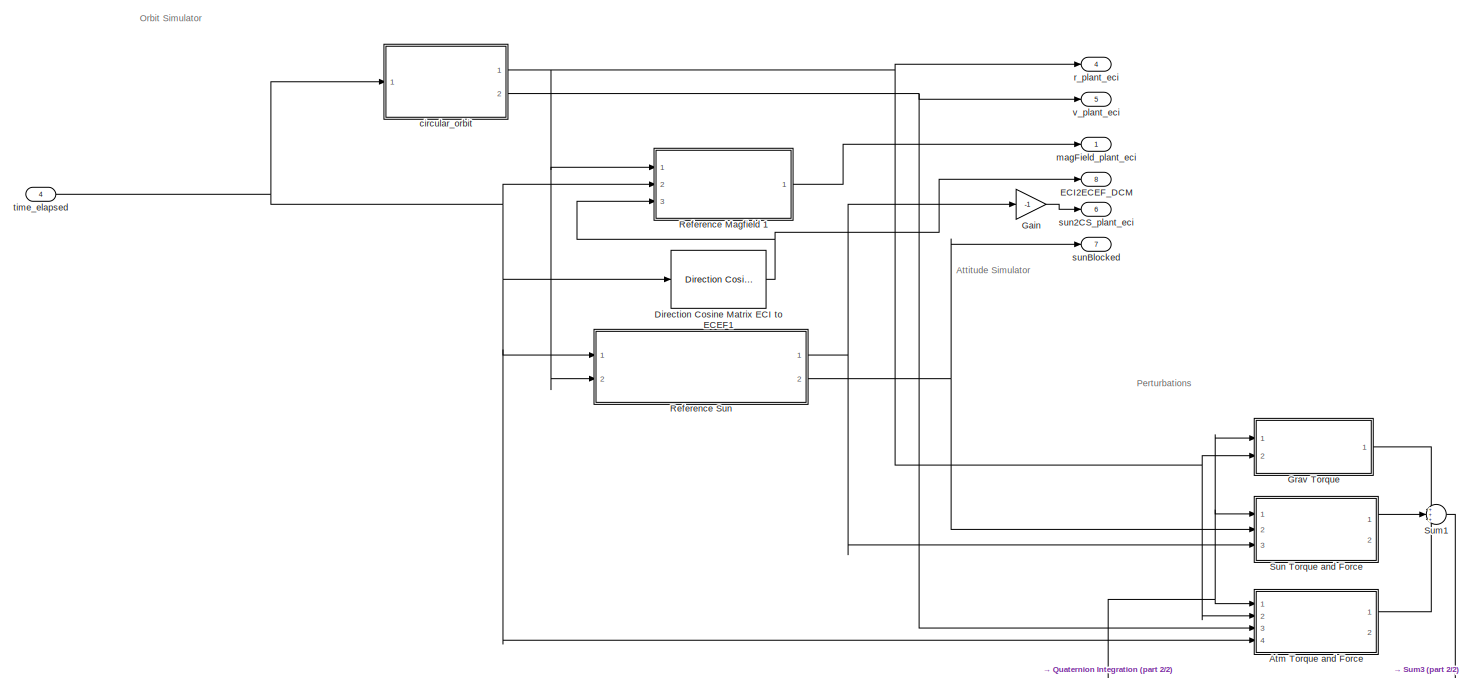
[diagram: Plant - part 1/2, full width, top band]
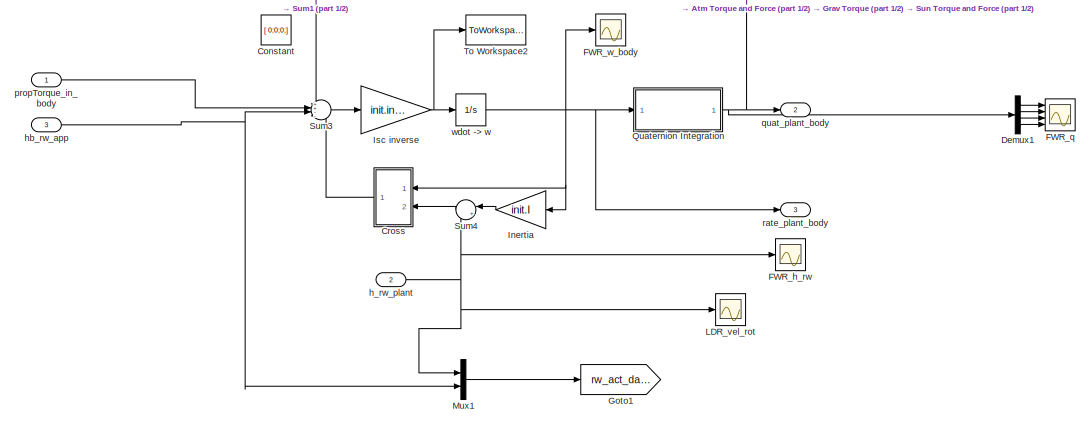
[diagram: Plant - part 2/2, bottom right region]
BLOCK [SubSystem] Plant
  Ports = [4, 8]
  RequestExecContextInheritance = off
BLOCK [SubSystem] Plant/Atm Torque and Force
  Commented = on
  Ports = [4, 2]
  RequestExecContextInheritance = off
BLOCK [Reference] Plant/Atm Torque and Force/3x3 Cross Product  REF=sharedutil/3x3 Cross Product
  Ports = [2, 1]
  SourceBlock = sharedutil/3x3 Cross Product
  SourceProductBaseCode = AE
  SourceProductName = Aerospace Blockset
  SourceType = CrossProduct
BLOCK [SubSystem] Plant/Atm Torque and Force/4th real to 1st real
  Ports = [1, 1]
  RequestExecContextInheritance = off
BLOCK [Demux] Plant/Atm Torque and Force/4th real to 1st real/Demux
  DisplayOption = bar
  Ports = [1, 4]
BLOCK [Mux] Plant/Atm Torque and Force/4th real to 1st real/Mux
  DisplayOption = bar
  Ports = [4, 1]
BLOCK [Inport] Plant/Atm Torque and Force/4th real to 1st real/qin
  IconDisplay = Port number
BLOCK [Outport] Plant/Atm Torque and Force/4th real to 1st real/qout
  IconDisplay = Port number
BLOCK [Constant] Plant/Atm Torque and Force/Approximate Earth’s angular velocity vector in ECI
  Value = [ 0; 0; 0.000072921158553;]
BLOCK [Constant] Plant/Atm Torque and Force/Constant
  Value = comtocops
BLOCK [Constant] Plant/Atm Torque and Force/Constant1
  Value = unitnormals
BLOCK [Constant] Plant/Atm Torque and Force/Constant2
  Value = areas
BLOCK [Constant] Plant/Atm Torque and Force/Constant3
  Value = jd
BLOCK [Demux] Plant/Atm Torque and Force/Demux
  DisplayOption = bar
  Outputs = 2
  Ports = [1, 2]
BLOCK [Demux] Plant/Atm Torque and Force/Demux1
  DisplayOption = bar
  Outputs = 3
  Ports = [1, 3]
BLOCK [Selector] Plant/Atm Torque and Force/Density(6) the effective total mass density for drag.
  IndexOptions = Index vector (dialog)
  Indices = [6]
  InputPortWidth = 9
  OutputSizes = 1
  Ports = [1, 1]
BLOCK [Reference] Plant/Atm Torque and Force/Direction Cosine Matrix ECI to ECEF1  REF=aerolibtransform2/Direction Cosine Matrix
ECI to ECEF
  AttributesFormatString = %<red>
  Ports = [1, 1]
  SourceBlock = aerolibtransform2/Direction Cosine Matrix\nECI to ECEF
  SourceProductBaseCode = AE
  SourceProductName = Aerospace Blockset
  SourceType = DCMECItoECEF
BLOCK [DotProduct] Plant/Atm Torque and Force/Dot Product
  OutDataTypeStr = Inherit: Inherit via internal rule
BLOCK [Reference] Plant/Atm Torque and Force/ECEF Position to LLA  REF=aerolibtransform2/ECEF Position to LLA
  Ports = [1, 2]
  SourceBlock = aerolibtransform2/ECEF Position to LLA
  SourceProductBaseCode = AE
  SourceProductName = Aerospace Blockset
  SourceType = ECEF to LLA
BLOCK [Product] Plant/Atm Torque and Force/ECI to ECEF
  InputSameDT = off
  Multiplication = Matrix(*)
  OutDataTypeStr = double
  Ports = [2, 1]
  RndMeth = Floor
  SaturateOnIntegerOverflow = off
BLOCK [Gain] Plant/Atm Torque and Force/Gain
  Gain = -1
  OutDataTypeStr = Inherit: Inherit via internal rule
  ParamDataTypeStr = Inherit: Inherit via internal rule
  SaturateOnIntegerOverflow = off
BLOCK [Gain] Plant/Atm Torque and Force/Gain1
  Gain = 1/86400
  OutDataTypeStr = Inherit: Inherit via internal rule
  ParamDataTypeStr = Inherit: Inherit via internal rule
  SaturateOnIntegerOverflow = off
BLOCK [Gain] Plant/Atm Torque and Force/Gain2
  Gain = 1/2*Cd
  OutDataTypeStr = Inherit: Inherit via internal rule
  ParamDataTypeStr = Inherit: Inherit via internal rule
  SaturateOnIntegerOverflow = off
BLOCK [MATLABFcn] Plant/Atm Torque and Force/Interpreted MATLAB Function
  MATLABFcn = NRLMSISE_time_fromJD(u)
  OutputDimensions = 3
  Ports = [1, 1]
BLOCK [Mux] Plant/Atm Torque and Force/Mux
  DisplayOption = bar
  Inputs = 3
  Ports = [3, 1]
BLOCK [Reference] Plant/Atm Torque and Force/NRLMSISE-00 Atmosphere Model  REF=aerolibatmos2/NRLMSISE-00
Atmosphere Model
  Ports = [4, 2]
  SourceBlock = aerolibatmos2/NRLMSISE-00\nAtmosphere Model
  SourceProductBaseCode = AE
  SourceProductName = Aerospace Blockset
  SourceType = NRLMSISE-00 Model
BLOCK [Reference] Plant/Atm Torque and Force/Normalize Vector  REF=vrlib/Utilities/Normalize Vector
  Ports = [1, 1]
  SourceBlock = vrlib/Utilities/Normalize Vector
  SourceProductBaseCode = VR
  SourceProductName = Simulink 3D Animation
  SourceType = Normalize Vector
BLOCK [Product] Plant/Atm Torque and Force/Product
  InputSameDT = off
  OutDataTypeStr = Inherit: Inherit via internal rule
  Ports = [2, 1]
  RndMeth = Floor
  SaturateOnIntegerOverflow = off
BLOCK [Reference] Plant/Atm Torque and Force/Quaternion Rotation  REF=aerolibutil/Quaternion
Rotation
  Ports = [2, 1]
  SourceBlock = aerolibutil/Quaternion\nRotation
  SourceProductBaseCode = AE
  SourceProductName = Aerospace Blockset
  SourceType = Quaternion Rotation
BLOCK [Sum] Plant/Atm Torque and Force/Sum
  IconShape = round
  InputSameDT = off
  Inputs = |++
  OutDataTypeStr = Inherit: Inherit via internal rule
  Ports = [2, 1]
  SaturateOnIntegerOverflow = off
BLOCK [Sum] Plant/Atm Torque and Force/Sum1
  IconShape = round
  InputSameDT = off
  Inputs = |++
  OutDataTypeStr = Inherit: Inherit via internal rule
  Ports = [2, 1]
  SaturateOnIntegerOverflow = off
BLOCK [Constant] Plant/Atm Torque and Force/Zero
  Value = 0*(1:length(areas))
BLOCK [Outport] Plant/Atm Torque and Force/atmF_out_body
  IconDisplay = Port number
  Port = 2
  PortDimensions = 3
  Unit = N
BLOCK [Outport] Plant/Atm Torque and Force/atmT_out_body
  IconDisplay = Port number
  PortDimensions = 3
  Unit = N*m
BLOCK [SubSystem] Plant/Atm Torque and Force/pressureTorque
  ErrorFcn = Stateflow.Translate.translate
  PermitHierarchicalResolution = ExplicitOnly
  Ports = [7, 2]
  RequestExecContextInheritance = off
  SFBlockType = MATLAB Function
  TreatAsAtomicUnit = on
BLOCK [Demux] Plant/Atm Torque and Force/pressureTorque/ Demux 
  Outputs = 1
  Ports = [1, 1]
BLOCK [S-Function] Plant/Atm Torque and Force/pressureTorque/ SFunction 
  EnableBusSupport = on
  FunctionName = sf_sfun
  PortCounts = [7 3]
  Ports = [7, 3]
  SFcnIsStateOwnerBlock = off
  SFunctionDeploymentMode = off
  Tag = Stateflow S-Function single_sat_attitude 3
BLOCK [Terminator] Plant/Atm Torque and Force/pressureTorque/ Terminator 
BLOCK [Inport] Plant/Atm Torque and Force/pressureTorque/areas
  IconDisplay = Port number
  Port = 3
BLOCK [Inport] Plant/Atm Torque and Force/pressureTorque/comtocops
  IconDisplay = Port number
  Port = 5
BLOCK [Outport] Plant/Atm Torque and Force/pressureTorque/force
  IconDisplay = Port number
BLOCK [Inport] Plant/Atm Torque and Force/pressureTorque/pressure
  IconDisplay = Port number
BLOCK [Inport] Plant/Atm Torque and Force/pressureTorque/rds
  IconDisplay = Port number
  Port = 7
BLOCK [Inport] Plant/Atm Torque and Force/pressureTorque/rss
  IconDisplay = Port number
  Port = 6
BLOCK [Outport] Plant/Atm Torque and Force/pressureTorque/torque
  IconDisplay = Port number
  Port = 2
BLOCK [Inport] Plant/Atm Torque and Force/pressureTorque/unitnormals
  IconDisplay = Port number
  Port = 4
BLOCK [Inport] Plant/Atm Torque and Force/pressureTorque/unitvelocity
  IconDisplay = Port number
  Port = 2
BLOCK [Inport] Plant/Atm Torque and Force/quat_in_body
  IconDisplay = Port number
  PortDimensions = 4
BLOCK [Inport] Plant/Atm Torque and Force/r_in_eci
  IconDisplay = Port number
  Port = 2
  PortDimensions = 3
  Unit = m
BLOCK [Inport] Plant/Atm Torque and Force/time_elapsed
  IconDisplay = Port number
  Port = 4
  PortDimensions = 1
  Unit = s
BLOCK [Inport] Plant/Atm Torque and Force/v_in_eci
  IconDisplay = Port number
  Port = 3
  PortDimensions = 3
  Unit = m/s
BLOCK [Constant] Plant/Constant
  Value = [ 0;0;0;]
BLOCK [SubSystem] Plant/Cross
  Ports = [2, 1]
  RequestExecContextInheritance = off
BLOCK [Inport] Plant/Cross/A
  IconDisplay = Port number
BLOCK [Outport] Plant/Cross/AxB
  IconDisplay = Port number
  InitialOutput = 0
BLOCK [Inport] Plant/Cross/B
  IconDisplay = Port number
  Port = 2
BLOCK [Mux] Plant/Cross/Mux4
  Inputs = 3
  Ports = [3, 1]
BLOCK [Product] Plant/Cross/Product
  Ports = [2, 1]
  RndMeth = Floor
BLOCK [Product] Plant/Cross/Product1
  Ports = [2, 1]
  RndMeth = Floor
BLOCK [Product] Plant/Cross/Product2
  Ports = [2, 1]
  RndMeth = Floor
BLOCK [Product] Plant/Cross/Product3
  Ports = [2, 1]
  RndMeth = Floor
BLOCK [Product] Plant/Cross/Product4
  Ports = [2, 1]
  RndMeth = Floor
BLOCK [Product] Plant/Cross/Product5
  Ports = [2, 1]
  RndMeth = Floor
BLOCK [Sum] Plant/Cross/Sum
  Inputs = +-
  Ports = [2, 1]
BLOCK [Sum] Plant/Cross/Sum1
  Inputs = +-
  Ports = [2, 1]
BLOCK [Sum] Plant/Cross/Sum2
  Inputs = +-
  Ports = [2, 1]
BLOCK [Demux] Plant/Cross/demux2
  Outputs = 3
  Ports = [1, 3]
BLOCK [Demux] Plant/Cross/demux3
  Outputs = 3
  Ports = [1, 3]
BLOCK [Demux] Plant/Demux1
  DisplayOption = bar
  Ports = [1, 4]
BLOCK [Reference] Plant/Direction Cosine Matrix ECI to ECEF1  REF=aerolibtransform2/Direction Cosine Matrix
ECI to ECEF
  AttributesFormatString = %<red>
  Ports = [1, 1]
  SourceBlock = aerolibtransform2/Direction Cosine Matrix\nECI to ECEF
  SourceProductBaseCode = AE
  SourceProductName = Aerospace Blockset
  SourceType = DCMECItoECEF
BLOCK [Outport] Plant/ECI2ECEF_DCM
  IconDisplay = Port number
  Port = 8
BLOCK [Scope] Plant/FWR_h_rw 
  Floating = off
  NumInputPorts = 1
  Ports = [1]
  ScopeSpecificationString = Simulink.scopes.TimeScopeBlockCfg('CurrentConfiguration', extmgr.ConfigurationSet(extmgr.Configuration('Core','General UI',true),extmgr.Configuration('Core','Source UI',true),extmgr.Configuration('Sources','WiredSimulink',true,'DataLoggingVariableName','ScopeData2'),extmgr.Configuration('Visuals','Time Domain',true,'SerializedDisplays',{struct('MinYLimReal','-41.63623','MaxYLimReal','308.53736','Y...<+1512ch>
BLOCK [Scope] Plant/FWR_q
  Floating = off
  NumInputPorts = 4
  Ports = [4]
  ScopeSpecificationString = Simulink.scopes.TimeScopeBlockCfg('CurrentConfiguration', extmgr.ConfigurationSet(extmgr.Configuration('Core','General UI',true),extmgr.Configuration('Core','Source UI',true),extmgr.Configuration('Sources','WiredSimulink',true,'DataLoggingVariableName','ScopeData5'),extmgr.Configuration('Visuals','Time Domain',true,'SerializedDisplays',{struct('MinYLimReal','0.70475','MaxYLimReal','0.78972','YLabe...<+3487ch>
BLOCK [Scope] Plant/FWR_w_body
  Floating = off
  NumInputPorts = 1
  Ports = [1]
  ScopeSpecificationString = Simulink.scopes.TimeScopeBlockCfg('CurrentConfiguration', extmgr.ConfigurationSet(extmgr.Configuration('Core','General UI',true),extmgr.Configuration('Core','Source UI',true),extmgr.Configuration('Sources','WiredSimulink',true,'DataLoggingVariableName','ScopeData3'),extmgr.Configuration('Visuals','Time Domain',true,'SerializedDisplays',{struct('MinYLimReal','-0.00000009','MaxYLimReal','0.00000002'...<+1546ch>
BLOCK [Gain] Plant/Gain
  Gain = -1
  OutDataTypeStr = Inherit: Inherit via internal rule
  ParamDataTypeStr = Inherit: Inherit via internal rule
  SaturateOnIntegerOverflow = off
BLOCK [Goto] Plant/Goto1
  GotoTag = rw_act_data
  TagVisibility = global
BLOCK [SubSystem] Plant/Grav Torque
  Commented = on
  Ports = [2, 1]
  RequestExecContextInheritance = off
BLOCK [Reference] Plant/Grav Torque/3x3 Cross Product  REF=sharedutil/3x3 Cross Product
  Ports = [2, 1]
  SourceBlock = sharedutil/3x3 Cross Product
  SourceProductBaseCode = AE
  SourceProductName = Aerospace Blockset
  SourceType = CrossProduct
BLOCK [Gain] Plant/Grav Torque/3xEarth's gravitational coefficient
  Gain = 3*3.986E14
  OutDataTypeStr = Inherit: Inherit via internal rule
  ParamDataTypeStr = Inherit: Inherit via internal rule
  SaturateOnIntegerOverflow = off
BLOCK [SubSystem] Plant/Grav Torque/4th real to 1st real
  Ports = [1, 1]
  RequestExecContextInheritance = off
BLOCK [Demux] Plant/Grav Torque/4th real to 1st real/Demux
  DisplayOption = bar
  Ports = [1, 4]
BLOCK [Mux] Plant/Grav Torque/4th real to 1st real/Mux
  DisplayOption = bar
  Ports = [4, 1]
BLOCK [Inport] Plant/Grav Torque/4th real to 1st real/qin
  IconDisplay = Port number
BLOCK [Outport] Plant/Grav Torque/4th real to 1st real/qout
  IconDisplay = Port number
BLOCK [Constant] Plant/Grav Torque/Constant
  Value = inertia
BLOCK [DotProduct] Plant/Grav Torque/Dot Product
  OutDataTypeStr = Inherit: Inherit via internal rule
BLOCK [Fcn] Plant/Grav Torque/Fcn
  Expr = u^(-3)
BLOCK [Gain] Plant/Grav Torque/Gain
  Gain = -1
  OutDataTypeStr = Inherit: Inherit via internal rule
  ParamDataTypeStr = Inherit: Inherit via internal rule
  SaturateOnIntegerOverflow = off
BLOCK [Product] Plant/Grav Torque/Multiply
  InputSameDT = off
  Multiplication = Matrix(*)
  OutDataTypeStr = Inherit: Inherit via internal rule
  Ports = [2, 1]
  RndMeth = Floor
  SaturateOnIntegerOverflow = off
BLOCK [Product] Plant/Grav Torque/Product
  InputSameDT = off
  OutDataTypeStr = Inherit: Inherit via internal rule
  Ports = [2, 1]
  RndMeth = Floor
  SaturateOnIntegerOverflow = off
BLOCK [Reference] Plant/Grav Torque/Quaternion Rotation  REF=aerolibutil/Quaternion
Rotation
  Ports = [2, 1]
  SourceBlock = aerolibutil/Quaternion\nRotation
  SourceProductBaseCode = AE
  SourceProductName = Aerospace Blockset
  SourceType = Quaternion Rotation
BLOCK [Sqrt] Plant/Grav Torque/R0
BLOCK [Reference] Plant/Grav Torque/Unit vector toward nadir  REF=vrlib/Utilities/Normalize Vector
  Ports = [1, 1]
  SourceBlock = vrlib/Utilities/Normalize Vector
  SourceProductBaseCode = VR
  SourceProductName = Simulink 3D Animation
  SourceType = Normalize Vector
BLOCK [Outport] Plant/Grav Torque/gravT_out_body
  IconDisplay = Port number
  PortDimensions = 3
  Unit = N*m
BLOCK [Inport] Plant/Grav Torque/quat_in_body
  IconDisplay = Port number
  PortDimensions = 4
BLOCK [Inport] Plant/Grav Torque/r_in_eci
  IconDisplay = Port number
  Port = 2
  PortDimensions = 3
  Unit = m
BLOCK [Gain] Plant/Inertia
  Gain = init.I
  Multiplication = Matrix(K*u)
BLOCK [Gain] Plant/Isc inverse
  Gain = init.invI
  Multiplication = Matrix(K*u)
BLOCK [Scope] Plant/LDR_vel_rot
  Floating = off
  NumInputPorts = 1
  Ports = [1]
  ScopeSpecificationString = Simulink.scopes.TimeScopeBlockCfg('CurrentConfiguration', extmgr.ConfigurationSet(extmgr.Configuration('Core','General UI',true),extmgr.Configuration('Core','Source UI',true),extmgr.Configuration('Sources','WiredSimulink',true,'DataLoggingVariableName','ScopeData4'),extmgr.Configuration('Visuals','Time Domain',true,'SerializedDisplays',{struct('MinYLimReal','0.00017','MaxYLimReal','0.0085','YLabel...<+1505ch>
BLOCK [Mux] Plant/Mux1
  DisplayOption = bar
  Inputs = 2
  Ports = [2, 1]
BLOCK [SubSystem] Plant/Quaternion Integration
  Ports = [1, 1]
  RequestExecContextInheritance = off
BLOCK [Gain] Plant/Quaternion Integration/Gain
  Gain = -1
  OutDataTypeStr = Inherit: Inherit via internal rule
  ParamDataTypeStr = Inherit: Inherit via internal rule
  SaturateOnIntegerOverflow = off
BLOCK [Integrator] Plant/Quaternion Integration/Integrator1
  ContinuousStateAttributes = 'quaternion_plant'
  InitialCondition = init.LDR.q_init
  Ports = [1, 1]
BLOCK [Selector] Plant/Quaternion Integration/Selector
  IndexOptions = Index vector (dialog)
  Indices = 4
  InputPortWidth = 4
  OutputSizes = 1
  Ports = [1, 1]
BLOCK [Switch] Plant/Quaternion Integration/Switch
  Criteria = u2 > Threshold
  InputSameDT = off
  SaturateOnIntegerOverflow = off
BLOCK [Outport] Plant/Quaternion Integration/q_I_Body
  IconDisplay = Port number
BLOCK [SubSystem] Plant/Quaternion Integration/q_normalize
  Ports = [1, 1]
  RequestExecContextInheritance = off
BLOCK [DotProduct] Plant/Quaternion Integration/q_normalize/Dot Product
  OutDataTypeStr = Inherit: Inherit via internal rule
BLOCK [Math] Plant/Quaternion Integration/q_normalize/Math Function
  Operator = sqrt
  Ports = [1, 1]
BLOCK [Product] Plant/Quaternion Integration/q_normalize/Product
  Inputs = */
  Ports = [2, 1]
  RndMeth = Floor
BLOCK [Inport] Plant/Quaternion Integration/q_normalize/q_in
  IconDisplay = Port number
  PortDimensions = 4
BLOCK [Outport] Plant/Quaternion Integration/q_normalize/q_out
  IconDisplay = Port number
BLOCK [SubSystem] Plant/Quaternion Integration/qderiv
  Ports = [2, 1]
  RequestExecContextInheritance = off
BLOCK [Mux] Plant/Quaternion Integration/qderiv/Mux
  DisplayOption = bar
  Inputs = 2
  Ports = [2, 1]
BLOCK [Mux] Plant/Quaternion Integration/qderiv/Mux1
  DisplayOption = bar
  Ports = [4, 1]
BLOCK [Inport] Plant/Quaternion Integration/qderiv/q
  IconDisplay = Port number
  Port = 2
BLOCK [Outport] Plant/Quaternion Integration/qderiv/qd
  IconDisplay = Port number
BLOCK [Fcn] Plant/Quaternion Integration/qderiv/qd1
  Expr = (u(7)*u(1)-u(6)*u(2)+u(5)*u(3))/2
BLOCK [Fcn] Plant/Quaternion Integration/qderiv/qd2
  Expr = (u(6)*u(1)+u(7)*u(2)-u(4)*u(3))/2
BLOCK [Fcn] Plant/Quaternion Integration/qderiv/qd3
  Expr = (-u(5)*u(1)+u(4)*u(2)+u(7)*u(3))/2
BLOCK [Fcn] Plant/Quaternion Integration/qderiv/qd4
  Expr = (-u(4)*u(1)-u(5)*u(2)-u(6)*u(3))/2
BLOCK [Inport] Plant/Quaternion Integration/qderiv/w
  IconDisplay = Port number
BLOCK [Inport] Plant/Quaternion Integration/w_Body
  IconDisplay = Port number
BLOCK [SubSystem] Plant/Reference Magfield 1
  Ports = [3, 1]
  RequestExecContextInheritance = off
BLOCK [Constant] Plant/Reference Magfield 1/Constant1
  Value = init.decyear
BLOCK [Demux] Plant/Reference Magfield 1/Demux
  Commented = on
  DisplayOption = bar
  Outputs = 2
  Ports = [1, 2]
BLOCK [Reference] Plant/Reference Magfield 1/Direction Cosine Matrix ECEF to NED  REF=aerolibtransform2/Direction Cosine Matrix
ECEF to NED
  Commented = on
  Ports = [1, 1]
  SourceBlock = aerolibtransform2/Direction Cosine Matrix\nECEF to NED
  SourceProductBaseCode = AE
  SourceProductName = Aerospace Blockset
  SourceType = DCM ECEF to NED
BLOCK [Reference] Plant/Reference Magfield 1/ECEF Position to LLA  REF=aerolibtransform2/ECEF Position to LLA
  Commented = on
  Ports = [1, 2]
  SourceBlock = aerolibtransform2/ECEF Position to LLA
  SourceProductBaseCode = AE
  SourceProductName = Aerospace Blockset
  SourceType = ECEF to LLA
BLOCK [Product] Plant/Reference Magfield 1/ECEF to ECI
  InputSameDT = off
  Multiplication = Matrix(*)
  OutDataTypeStr = double
  Ports = [2, 1]
  RndMeth = Floor
  SaturateOnIntegerOverflow = off
BLOCK [Product] Plant/Reference Magfield 1/ECI to ECEF
  InputSameDT = off
  Multiplication = Matrix(*)
  OutDataTypeStr = double
  Ports = [2, 1]
  RndMeth = Floor
  SaturateOnIntegerOverflow = off
BLOCK [Inport] Plant/Reference Magfield 1/ECI2ECEF_DCM
  IconDisplay = Port number
  Port = 3
BLOCK [SubSystem] Plant/Reference Magfield 1/MATLAB Function
  ErrorFcn = Stateflow.Translate.translate
  PermitHierarchicalResolution = ExplicitOnly
  Ports = [2, 1]
  RequestExecContextInheritance = off
  SFBlockType = MATLAB Function
  TreatAsAtomicUnit = on
BLOCK [Demux] Plant/Reference Magfield 1/MATLAB Function/ Demux 
  Outputs = 1
  Ports = [1, 1]
BLOCK [S-Function] Plant/Reference Magfield 1/MATLAB Function/ SFunction 
  EnableBusSupport = on
  FunctionName = sf_sfun
  PortCounts = [2 2]
  Ports = [2, 2]
  SFcnIsStateOwnerBlock = off
  SFunctionDeploymentMode = off
  Tag = Stateflow S-Function single_sat_attitude 8
BLOCK [Terminator] Plant/Reference Magfield 1/MATLAB Function/ Terminator 
BLOCK [Outport] Plant/Reference Magfield 1/MATLAB Function/B
  IconDisplay = Port number
BLOCK [Inport] Plant/Reference Magfield 1/MATLAB Function/t
  IconDisplay = Port number
BLOCK [Inport] Plant/Reference Magfield 1/MATLAB Function/x
  IconDisplay = Port number
  Port = 2
BLOCK [Product] Plant/Reference Magfield 1/Product
  Commented = on
  InputSameDT = off
  Multiplication = Matrix(*)
  OutDataTypeStr = Inherit: Inherit via internal rule
  Ports = [2, 1]
  RndMeth = Floor
  SaturateOnIntegerOverflow = off
BLOCK [Sum] Plant/Reference Magfield 1/Sum
  IconShape = round
  InputSameDT = off
  Inputs = |++
  OutDataTypeStr = Inherit: Inherit via internal rule
  Ports = [2, 1]
  SaturateOnIntegerOverflow = off
BLOCK [Math] Plant/Reference Magfield 1/Transpose
  Commented = on
  Operator = transpose
  Ports = [1, 1]
BLOCK [Math] Plant/Reference Magfield 1/Transpose1
  Operator = transpose
  Ports = [1, 1]
BLOCK [Reference] Plant/Reference Magfield 1/World Magnetic Model 2015  REF=aerolibgravity2/World Magnetic Model 2015
  Commented = on
  Ports = [4, 1]
  SourceBlock = aerolibgravity2/World Magnetic Model 2015
  SourceProductBaseCode = AE
  SourceProductName = Aerospace Blockset
  SourceType = WorldMagneticModel2015
BLOCK [Outport] Plant/Reference Magfield 1/magField_out_eci
  IconDisplay = Port number
  PortDimensions = 3
  Unit = G
BLOCK [Gain] Plant/Reference Magfield 1/nT_to_G
  Commented = on
  Gain = 1e-5
  OutDataTypeStr = Inherit: Inherit via internal rule
  ParamDataTypeStr = Inherit: Inherit via internal rule
  SaturateOnIntegerOverflow = off
BLOCK [Inport] Plant/Reference Magfield 1/r_eci
  IconDisplay = Port number
  PortDimensions = 3
  Unit = m
BLOCK [Gain] Plant/Reference Magfield 1/time elapsed to years
  Gain = 1/365/24/3600
  OutDataTypeStr = Inherit: Inherit via internal rule
  ParamDataTypeStr = Inherit: Inherit via internal rule
  SaturateOnIntegerOverflow = off
BLOCK [Inport] Plant/Reference Magfield 1/time_elapsed
  IconDisplay = Port number
  Port = 2
  PortDimensions = 1
  Unit = s
BLOCK [SubSystem] Plant/Reference Sun 
  Ports = [2, 2]
  RequestExecContextInheritance = off
BLOCK [Reference] Plant/Reference Sun /Compare To Zero  REF=simulink/Logic and Bit
Operations/Compare
To Zero
  Ports = [1, 1]
  SourceBlock = simulink/Logic and Bit\nOperations/Compare\nTo Zero
  SourceProductBaseCode = SL
  SourceProductName = Simulink
  SourceType = Compare To Zero
BLOCK [Reference] Plant/Reference Sun /Compare To Zero1  REF=simulink/Logic and Bit
Operations/Compare
To Zero
  Commented = on
  Ports = [1, 1]
  SourceBlock = simulink/Logic and Bit\nOperations/Compare\nTo Zero
  SourceProductBaseCode = SL
  SourceProductName = Simulink
  SourceType = Compare To Zero
BLOCK [Reference] Plant/Reference Sun /Compare To earth's radius squared  REF=simulink/Logic and Bit
Operations/Compare
To Constant
  Ports = [1, 1]
  SourceBlock = simulink/Logic and Bit\nOperations/Compare\nTo Constant
  SourceProductBaseCode = SL
  SourceProductName = Simulink
  SourceType = Compare To Constant
BLOCK [Reference] Plant/Reference Sun /Compare To moon's radius squared  REF=simulink/Logic and Bit
Operations/Compare
To Constant
  Commented = on
  Ports = [1, 1]
  SourceBlock = simulink/Logic and Bit\nOperations/Compare\nTo Constant
  SourceProductBaseCode = SL
  SourceProductName = Simulink
  SourceType = Compare To Constant
BLOCK [Constant] Plant/Reference Sun /Constant
  Commented = on
  Value = JD
BLOCK [DotProduct] Plant/Reference Sun /Dot Product
  OutDataTypeStr = Inherit: Inherit via internal rule
BLOCK [DotProduct] Plant/Reference Sun /Dot Product1
  OutDataTypeStr = Inherit: Inherit via internal rule
BLOCK [DotProduct] Plant/Reference Sun /Dot Product2
  Commented = on
  OutDataTypeStr = Inherit: Inherit via internal rule
BLOCK [DotProduct] Plant/Reference Sun /Dot Product3
  Commented = on
  OutDataTypeStr = Inherit: Inherit via internal rule
BLOCK [Reference] Plant/Reference Sun /Earth to Sun  REF=aerolibcelestial/Planetary Ephemeris
  Commented = on
  Ports = [2, 1]
  SourceBlock = aerolibcelestial/Planetary Ephemeris
  SourceProductBaseCode = AE
  SourceProductName = Aerospace Blockset
  SourceType = PlanetaryEphemeris
BLOCK [Gain] Plant/Reference Sun /Gain
  Commented = on
  Gain = 1/86400
  OutDataTypeStr = Inherit: Inherit via internal rule
  ParamDataTypeStr = Inherit: Inherit via internal rule
  SaturateOnIntegerOverflow = off
BLOCK [Logic] Plant/Reference Sun /Logical Operator
  AllPortsSameDT = off
  OutDataTypeStr = boolean
  Ports = [2, 1]
BLOCK [Logic] Plant/Reference Sun /Logical Operator1
  AllPortsSameDT = off
  Commented = on
  OutDataTypeStr = boolean
  Ports = [2, 1]
BLOCK [Reference] Plant/Reference Sun /Moon to Earth  REF=aerolibcelestial/Planetary Ephemeris
  Commented = on
  Ports = [2, 1]
  SourceBlock = aerolibcelestial/Planetary Ephemeris
  SourceProductBaseCode = AE
  SourceProductName = Aerospace Blockset
  SourceType = PlanetaryEphemeris
BLOCK [Reference] Plant/Reference Sun /Normalize Vector  REF=vrlib/Utilities/Normalize Vector
  Commented = on
  Ports = [1, 1]
  SourceBlock = vrlib/Utilities/Normalize Vector
  SourceProductBaseCode = VR
  SourceProductName = Simulink 3D Animation
  SourceType = Normalize Vector
BLOCK [SubSystem] Plant/Reference Sun /Reference Sun Kepler
  Ports = [1, 1]
  RequestExecContextInheritance = off
BLOCK [Constant] Plant/Reference Sun /Reference Sun Kepler/Constant
  Value = q
BLOCK [Constant] Plant/Reference Sun /Reference Sun Kepler/Constant1
  Value = yearT
BLOCK [Constant] Plant/Reference Sun /Reference Sun Kepler/Constant2
  Value = tp
BLOCK [Constant] Plant/Reference Sun /Reference Sun Kepler/Constant5
  Value = e
BLOCK [Outport] Plant/Reference Sun /Reference Sun Kepler/Earth to Sun Normalized ICRF1
  IconDisplay = Port number
BLOCK [SubSystem] Plant/Reference Sun /Reference Sun Kepler/MATLAB Function
  ErrorFcn = Stateflow.Translate.translate
  PermitHierarchicalResolution = ExplicitOnly
  Ports = [5, 1]
  RequestExecContextInheritance = off
  SFBlockType = MATLAB Function
  TreatAsAtomicUnit = on
BLOCK [Demux] Plant/Reference Sun /Reference Sun Kepler/MATLAB Function/ Demux 
  Outputs = 1
  Ports = [1, 1]
BLOCK [S-Function] Plant/Reference Sun /Reference Sun Kepler/MATLAB Function/ SFunction 
  EnableBusSupport = on
  FunctionName = sf_sfun
  PortCounts = [5 2]
  Ports = [5, 2]
  SFcnIsStateOwnerBlock = off
  SFunctionDeploymentMode = off
  Tag = Stateflow S-Function single_sat_attitude 7
BLOCK [Terminator] Plant/Reference Sun /Reference Sun Kepler/MATLAB Function/ Terminator 
BLOCK [Outport] Plant/Reference Sun /Reference Sun Kepler/MATLAB Function/S
  IconDisplay = Port number
BLOCK [Inport] Plant/Reference Sun /Reference Sun Kepler/MATLAB Function/e
  IconDisplay = Port number
  Port = 4
BLOCK [Inport] Plant/Reference Sun /Reference Sun Kepler/MATLAB Function/q
  IconDisplay = Port number
  Port = 5
BLOCK [Inport] Plant/Reference Sun /Reference Sun Kepler/MATLAB Function/t
  IconDisplay = Port number
BLOCK [Inport] Plant/Reference Sun /Reference Sun Kepler/MATLAB Function/tp
  IconDisplay = Port number
  Port = 2
BLOCK [Inport] Plant/Reference Sun /Reference Sun Kepler/MATLAB Function/yearT
  IconDisplay = Port number
  Port = 3
BLOCK [Inport] Plant/Reference Sun /Reference Sun Kepler/elapsed_time
  IconDisplay = Port number
BLOCK [Outport] Plant/Reference Sun /Sat to Sun Normalized ICRF1
  IconDisplay = Port number
  PortDimensions = 3
BLOCK [Math] Plant/Reference Sun /Square
  Operator = square
  Ports = [1, 1]
BLOCK [Math] Plant/Reference Sun /Square1
  Commented = on
  Operator = square
  Ports = [1, 1]
BLOCK [Sum] Plant/Reference Sun /Sum
  Commented = on
  IconShape = round
  InputSameDT = off
  Inputs = |+-
  OutDataTypeStr = Inherit: Inherit via internal rule
  Ports = [2, 1]
  SaturateOnIntegerOverflow = off
BLOCK [Sum] Plant/Reference Sun /Sum1
  IconShape = round
  InputSameDT = off
  Inputs = |-+
  OutDataTypeStr = Inherit: Inherit via internal rule
  Ports = [2, 1]
  SaturateOnIntegerOverflow = off
BLOCK [Sum] Plant/Reference Sun /Sum2
  Commented = on
  IconShape = round
  InputSameDT = off
  Inputs = ++|
  OutDataTypeStr = Inherit: Inherit via internal rule
  Ports = [2, 1]
  SaturateOnIntegerOverflow = off
BLOCK [Sum] Plant/Reference Sun /Sum3
  Commented = on
  IconShape = round
  InputSameDT = off
  Inputs = |-+
  OutDataTypeStr = Inherit: Inherit via internal rule
  Ports = [2, 1]
  SaturateOnIntegerOverflow = off
BLOCK [Outport] Plant/Reference Sun /center of sun blocked by earth
  IconDisplay = Port number
  OutDataTypeStr = boolean
  Port = 2
  PortDimensions = 1
BLOCK [Gain] Plant/Reference Sun /km to m
  Commented = on
  Gain = 1000
  OutDataTypeStr = Inherit: Inherit via internal rule
  ParamDataTypeStr = Inherit: Inherit via internal rule
  SaturateOnIntegerOverflow = off
BLOCK [Gain] Plant/Reference Sun /km to m1
  Commented = on
  Gain = 1000
  OutDataTypeStr = Inherit: Inherit via internal rule
  ParamDataTypeStr = Inherit: Inherit via internal rule
  SaturateOnIntegerOverflow = off
BLOCK [Inport] Plant/Reference Sun /r_eci
  IconDisplay = Port number
  Port = 2
  PortDimensions = 3
  Unit = m
BLOCK [Inport] Plant/Reference Sun /time_elapsed
  IconDisplay = Port number
  Unit = s
BLOCK [Sum] Plant/Sum1
  Commented = on
  IconShape = round
  InputSameDT = off
  Inputs = +++
  OutDataTypeStr = Inherit: Inherit via internal rule
  Ports = [3, 1]
  SaturateOnIntegerOverflow = off
BLOCK [Sum] Plant/Sum3
  IconShape = round
  Inputs = ++--
  Ports = [4, 1]
BLOCK [Sum] Plant/Sum4
  IconShape = round
  InputSameDT = off
  Inputs = |++
  OutDataTypeStr = Inherit: Inherit via internal rule
  Ports = [2, 1]
  SaturateOnIntegerOverflow = off
BLOCK [SubSystem] Plant/Sun Torque and Force
  Commented = on
  Ports = [3, 2]
  RequestExecContextInheritance = off
BLOCK [SubSystem] Plant/Sun Torque and Force/4th real to 1st real
  Ports = [1, 1]
  RequestExecContextInheritance = off
BLOCK [Demux] Plant/Sun Torque and Force/4th real to 1st real/Demux
  DisplayOption = bar
  Ports = [1, 4]
BLOCK [Mux] Plant/Sun Torque and Force/4th real to 1st real/Mux
  DisplayOption = bar
  Ports = [4, 1]
BLOCK [Inport] Plant/Sun Torque and Force/4th real to 1st real/qin
  IconDisplay = Port number
BLOCK [Outport] Plant/Sun Torque and Force/4th real to 1st real/qout
  IconDisplay = Port number
BLOCK [Constant] Plant/Sun Torque and Force/Constant
  Value = comtocops
BLOCK [Constant] Plant/Sun Torque and Force/Constant1
  Value = unitnormals
BLOCK [Constant] Plant/Sun Torque and Force/Constant2
  Value = areas
BLOCK [Constant] Plant/Sun Torque and Force/Constant4
  Value = rss
BLOCK [Constant] Plant/Sun Torque and Force/Constant5
  Value = rds
BLOCK [Gain] Plant/Sun Torque and Force/Gain
  Gain = -1
  OutDataTypeStr = Inherit: Inherit via internal rule
  ParamDataTypeStr = Inherit: Inherit via internal rule
  SaturateOnIntegerOverflow = off
BLOCK [Reference] Plant/Sun Torque and Force/Quaternion Rotation  REF=aerolibutil/Quaternion
Rotation
  Ports = [2, 1]
  SourceBlock = aerolibutil/Quaternion\nRotation
  SourceProductBaseCode = AE
  SourceProductName = Aerospace Blockset
  SourceType = Quaternion Rotation
BLOCK [Switch] Plant/Sun Torque and Force/Switch
  Criteria = u2 ~= 0
  InputSameDT = off
  SaturateOnIntegerOverflow = off
BLOCK [Constant] Plant/Sun Torque and Force/Zero
  Value = 0
BLOCK [SubSystem] Plant/Sun Torque and Force/pressureTorque
  ErrorFcn = Stateflow.Translate.translate
  PermitHierarchicalResolution = ExplicitOnly
  Ports = [7, 2]
  RequestExecContextInheritance = off
  SFBlockType = MATLAB Function
  TreatAsAtomicUnit = on
BLOCK [Demux] Plant/Sun Torque and Force/pressureTorque/ Demux 
  Outputs = 1
  Ports = [1, 1]
BLOCK [S-Function] Plant/Sun Torque and Force/pressureTorque/ SFunction 
  EnableBusSupport = on
  FunctionName = sf_sfun
  PortCounts = [7 3]
  Ports = [7, 3]
  SFcnIsStateOwnerBlock = off
  SFunctionDeploymentMode = off
  Tag = Stateflow S-Function single_sat_attitude 6
BLOCK [Terminator] Plant/Sun Torque and Force/pressureTorque/ Terminator 
BLOCK [Inport] Plant/Sun Torque and Force/pressureTorque/areas
  IconDisplay = Port number
  Port = 3
BLOCK [Inport] Plant/Sun Torque and Force/pressureTorque/comtocops
  IconDisplay = Port number
  Port = 5
BLOCK [Outport] Plant/Sun Torque and Force/pressureTorque/force
  IconDisplay = Port number
BLOCK [Inport] Plant/Sun Torque and Force/pressureTorque/pressure
  IconDisplay = Port number
BLOCK [Inport] Plant/Sun Torque and Force/pressureTorque/rds
  IconDisplay = Port number
  Port = 7
BLOCK [Inport] Plant/Sun Torque and Force/pressureTorque/rss
  IconDisplay = Port number
  Port = 6
BLOCK [Outport] Plant/Sun Torque and Force/pressureTorque/torque
  IconDisplay = Port number
  Port = 2
BLOCK [Inport] Plant/Sun Torque and Force/pressureTorque/unitnormals
  IconDisplay = Port number
  Port = 4
BLOCK [Inport] Plant/Sun Torque and Force/pressureTorque/unitvelocity
  IconDisplay = Port number
  Port = 2
BLOCK [Inport] Plant/Sun Torque and Force/quat_in_body
  IconDisplay = Port number
  PortDimensions = 4
BLOCK [Inport] Plant/Sun Torque and Force/sattosun_plant_eci
  IconDisplay = Port number
  Port = 3
  PortDimensions = 3
BLOCK [Constant] Plant/Sun Torque and Force/solar pressure constant
  Value = 4.644E-6
BLOCK [Inport] Plant/Sun Torque and Force/sunBlocked
  IconDisplay = Port number
  OutDataTypeStr = boolean
  Port = 2
  PortDimensions = 1
BLOCK [Outport] Plant/Sun Torque and Force/sunF_out_body
  IconDisplay = Port number
  Port = 2
  PortDimensions = 3
  Unit = N
BLOCK [Outport] Plant/Sun Torque and Force/sunT_out_body
  IconDisplay = Port number
  PortDimensions = 3
  Unit = N*m
BLOCK [ToWorkspace] Plant/To Workspace2
  FixptAsFi = on
  MaxDataPoints = inf
  Ports = [1]
  SampleTime = -1
  Save2DSignal = 3-D array (concatenate along third dimension)
  SaveFormat = Timeseries
  VariableName = wdot
BLOCK [SubSystem] Plant/circular_orbit
  Ports = [1, 2]
  RequestExecContextInheritance = off
BLOCK [Gain] Plant/circular_orbit/Gain1
  Gain = W
  OutDataTypeStr = Inherit: Inherit via internal rule
  ParamDataTypeStr = Inherit: Inherit via internal rule
  SaturateOnIntegerOverflow = off
BLOCK [Gain] Plant/circular_orbit/Gain2
  Gain = PPERP
  OutDataTypeStr = Inherit: Inherit via internal rule
  ParamDataTypeStr = Inherit: Inherit via internal rule
  SaturateOnIntegerOverflow = off
BLOCK [Gain] Plant/circular_orbit/Gain3
  Gain = P
  OutDataTypeStr = Inherit: Inherit via internal rule
  ParamDataTypeStr = Inherit: Inherit via internal rule
  SaturateOnIntegerOverflow = off
BLOCK [Gain] Plant/circular_orbit/Gain4
  Gain = -P
  OutDataTypeStr = Inherit: Inherit via internal rule
  ParamDataTypeStr = Inherit: Inherit via internal rule
  SaturateOnIntegerOverflow = off
BLOCK [Gain] Plant/circular_orbit/Gain5
  Gain = PPERP
  OutDataTypeStr = Inherit: Inherit via internal rule
  ParamDataTypeStr = Inherit: Inherit via internal rule
  SaturateOnIntegerOverflow = off
BLOCK [Gain] Plant/circular_orbit/Gain6
  Gain = W
  OutDataTypeStr = Inherit: Inherit via internal rule
  ParamDataTypeStr = Inherit: Inherit via internal rule
  SaturateOnIntegerOverflow = off
BLOCK [Trigonometry] Plant/circular_orbit/Sin
  Ports = [1, 1]
BLOCK [Trigonometry] Plant/circular_orbit/Sin1
  Operator = cos
  Ports = [1, 1]
BLOCK [Sum] Plant/circular_orbit/Sum2
  IconShape = round
  InputSameDT = off
  Inputs = +|+
  OutDataTypeStr = Inherit: Inherit via internal rule
  Ports = [2, 1]
  SaturateOnIntegerOverflow = off
BLOCK [Sum] Plant/circular_orbit/Sum5
  IconShape = round
  InputSameDT = off
  Inputs = +|+
  OutDataTypeStr = Inherit: Inherit via internal rule
  Ports = [2, 1]
  SaturateOnIntegerOverflow = off
BLOCK [Outport] Plant/circular_orbit/r_eci
  IconDisplay = Port number
  PortDimensions = 3
  Unit = m
BLOCK [Inport] Plant/circular_orbit/time_elapsed
  IconDisplay = Port number
  PortDimensions = 1
  Unit = s
BLOCK [Outport] Plant/circular_orbit/v_eci
  IconDisplay = Port number
  Port = 2
  PortDimensions = 3
  Unit = m/s
BLOCK [Inport] Plant/h_rw_plant
  IconDisplay = Port number
  Port = 2
BLOCK [Inport] Plant/hb_rw_app
  IconDisplay = Port number
  Port = 3
BLOCK [Outport] Plant/magField_plant_eci
  IconDisplay = Port number
  PortDimensions = 3
  Unit = G
BLOCK [Inport] Plant/propTorque_in_body 
  IconDisplay = Port number
BLOCK [Outport] Plant/quat_plant_body
  IconDisplay = Port number
  Port = 2
BLOCK [Outport] Plant/r_plant_eci
  IconDisplay = Port number
  Port = 4
  PortDimensions = 3
  Unit = m
BLOCK [Outport] Plant/rate_plant_body
  IconDisplay = Port number
  Port = 3
BLOCK [Outport] Plant/sun2CS_plant_eci
  IconDisplay = Port number
  Port = 6
  PortDimensions = 3
BLOCK [Outport] Plant/sunBlocked
  IconDisplay = Port number
  OutDataTypeStr = boolean
  Port = 7
  PortDimensions = 1
BLOCK [Inport] Plant/time_elapsed
  IconDisplay = Port number
  Port = 4
  Unit = s
BLOCK [Outport] Plant/v_plant_eci
  IconDisplay = Port number
  Port = 5
  PortDimensions = 3
  Unit = m/s
BLOCK [Integrator] Plant/wdot -> w
  InitialCondition = init.LDR.wbn
  Ports = [1, 1]
BLOCK [SubSystem] Sensor Model
  Ports = [9, 5]
  RequestExecContextInheritance = off
BLOCK [DataTypeConversion] Sensor Model/Data Type Conversion
  OutDataTypeStr = double
  RndMeth = Floor
  SaturateOnIntegerOverflow = off
BLOCK [DataTypeConversion] Sensor Model/Data Type Conversion1
  Commented = through
  OutDataTypeStr = double
  RndMeth = Floor
  SaturateOnIntegerOverflow = off
BLOCK [DataTypeConversion] Sensor Model/Data Type Conversion2
  Commented = through
  OutDataTypeStr = double
  RndMeth = Floor
  SaturateOnIntegerOverflow = off
BLOCK [Inport] Sensor Model/ECI2ECEF_DCM
  IconDisplay = Port number
  Port = 9
BLOCK [SubSystem] Sensor Model/Gyro
  Commented = through
  Ports = [1, 1]
  RequestExecContextInheritance = off
BLOCK [Constant] Sensor Model/Gyro/DCM to translate from body to sensor
  Value = init.IMU0_DCM_BODY
BLOCK [DataTypeConversion] Sensor Model/Gyro/Data Type Conversion
  OutDataTypeStr = int16
  RndMeth = Round
BLOCK [Product] Sensor Model/Gyro/Matrix Multiply1
  InputSameDT = off
  Multiplication = Matrix(*)
  OutDataTypeStr = Inherit: Inherit via internal rule
  Ports = [2, 1]
  RndMeth = Floor
  SaturateOnIntegerOverflow = off
BLOCK [RandomNumber] Sensor Model/Gyro/Random Number
  Mean = init.IMU0_G_TYOFF
  SampleTime = 1.0/init.IMU0_G_ODR
  Variance = init.IMU0_G_RMS.^2
BLOCK [Saturate] Sensor Model/Gyro/Saturation
  InputPortMap = u0
  LowerLimit = -init.IMU0_G_FS
  Ports = [1, 1]
  UpperLimit = init.IMU0_G_FS
BLOCK [Sum] Sensor Model/Gyro/Sum
  IconShape = round
  InputSameDT = off
  Inputs = |++
  OutDataTypeStr = Inherit: Inherit via internal rule
  Ports = [2, 1]
  SaturateOnIntegerOverflow = off
BLOCK [ZeroOrderHold] Sensor Model/Gyro/Zero-Order Hold
  SampleTime = 1.0/init.IMU0_G_ODR
BLOCK [Inport] Sensor Model/Gyro/body_w
  IconDisplay = Port number
  Unit = rad/s
BLOCK [Gain] Sensor Model/Gyro/sensitivity
  Gain = init.IMU0_G_GN
  OutDataTypeStr = Inherit: Inherit via internal rule
  ParamDataTypeStr = Inherit: Inherit via internal rule
  SaturateOnIntegerOverflow = off
BLOCK [Outport] Sensor Model/Gyro/sensor_w
  IconDisplay = Port number
  OutDataTypeStr = int16
BLOCK [SubSystem] Sensor Model/Magnetometer
  Commented = through
  Ports = [1, 1]
  RequestExecContextInheritance = off
BLOCK [Constant] Sensor Model/Magnetometer/DCM to translate from body to sensor
  Value = init.IMU0_DCM_BODY
BLOCK [DataTypeConversion] Sensor Model/Magnetometer/Data Type Conversion
  OutDataTypeStr = int16
  RndMeth = Round
  SaturateOnIntegerOverflow = off
BLOCK [Inport] Sensor Model/Magnetometer/Magnetic_Field_body
  IconDisplay = Port number
  Unit = nT
BLOCK [Outport] Sensor Model/Magnetometer/Magxyz
  IconDisplay = Port number
  OutDataTypeStr = int16
BLOCK [Product] Sensor Model/Magnetometer/Matrix Multiply2
  InputSameDT = off
  Multiplication = Matrix(*)
  OutDataTypeStr = Inherit: Inherit via internal rule
  Ports = [2, 1]
  RndMeth = Floor
  SaturateOnIntegerOverflow = off
BLOCK [RandomNumber] Sensor Model/Magnetometer/Random Number
  Mean = -init.IMU0_MAG_ZGAUSS
  SampleTime = 1.0/init.IMU0_MAG_ODR
  Variance = init.IMU0_MAG_RMS.^2
BLOCK [Sum] Sensor Model/Magnetometer/Sum
  IconShape = round
  InputSameDT = off
  Inputs = |++
  OutDataTypeStr = Inherit: Inherit via internal rule
  Ports = [2, 1]
  SaturateOnIntegerOverflow = off
BLOCK [ZeroOrderHold] Sensor Model/Magnetometer/Zero-Order Hold
  SampleTime = 1.0/init.IMU0_MAG_ODR
BLOCK [Gain] Sensor Model/Magnetometer/sensitivity
  Gain = init.IMU0_MAG_GN
  OutDataTypeStr = Inherit: Inherit via internal rule
  ParamDataTypeStr = Inherit: Inherit via internal rule
  SaturateOnIntegerOverflow = off
BLOCK [Product] Sensor Model/Matrix Multiply2
  InputSameDT = off
  Multiplication = Matrix(*)
  OutDataTypeStr = Inherit: Inherit via internal rule
  Ports = [2, 1]
  RndMeth = Floor
  SaturateOnIntegerOverflow = off
BLOCK [Product] Sensor Model/Matrix Multiply3
  InputSameDT = off
  Multiplication = Matrix(*)
  OutDataTypeStr = Inherit: Inherit via internal rule
  Ports = [2, 1]
  RndMeth = Floor
  SaturateOnIntegerOverflow = off
BLOCK [SubSystem] Sensor Model/Piksi GPS
  Ports = [5, 8]
  RequestExecContextInheritance = off
BLOCK [Constant] Sensor Model/Piksi GPS/Constant
  Value = 7*24*60*60*1000
BLOCK [Bias] Sensor Model/Piksi GPS/Convert to GPS time
  Bias = init.GPSTime
  SaturateOnIntegerOverflow = off
BLOCK [DataTypeConversion] Sensor Model/Piksi GPS/Data Type Conversion
  OutDataTypeStr = uint16
  RndMeth = Floor
  SaturateOnIntegerOverflow = off
BLOCK [DataTypeConversion] Sensor Model/Piksi GPS/Data Type Conversion1
  OutDataTypeStr = uint32
  RndMeth = Round
  SaturateOnIntegerOverflow = off
BLOCK [DataTypeConversion] Sensor Model/Piksi GPS/Data Type Conversion2
  OutDataTypeStr = int32
  RndMeth = Simplest
  SaturateOnIntegerOverflow = off
BLOCK [DataTypeConversion] Sensor Model/Piksi GPS/Data Type Conversion3
  OutDataTypeStr = int32
  RndMeth = Simplest
  SaturateOnIntegerOverflow = off
BLOCK [DataTypeConversion] Sensor Model/Piksi GPS/Data Type Conversion4
  OutDataTypeStr = int32
  RndMeth = Simplest
  SaturateOnIntegerOverflow = off
BLOCK [Inport] Sensor Model/Piksi GPS/ECI2ECEF_DCM
  IconDisplay = Port number
  Port = 5
BLOCK [Gain] Sensor Model/Piksi GPS/Gain1
  Gain = 1e3
  OutDataTypeStr = Inherit: Inherit via internal rule
  ParamDataTypeStr = Inherit: Inherit via internal rule
  SaturateOnIntegerOverflow = off
BLOCK [Gain] Sensor Model/Piksi GPS/Gain2
  Gain = 1/7/24/60/60
  OutDataTypeStr = Inherit: Inherit via internal rule
  ParamDataTypeStr = Inherit: Inherit via internal rule
  SaturateOnIntegerOverflow = off
BLOCK [Gain] Sensor Model/Piksi GPS/Gain3
  Gain = 1e6
  OutDataTypeStr = Inherit: Inherit via internal rule
  ParamDataTypeStr = Inherit: Inherit via internal rule
  SaturateOnIntegerOverflow = off
BLOCK [Gain] Sensor Model/Piksi GPS/Gain4
  Gain = 1e3
  OutDataTypeStr = Inherit: Inherit via internal rule
  ParamDataTypeStr = Inherit: Inherit via internal rule
  SaturateOnIntegerOverflow = off
BLOCK [Gain] Sensor Model/Piksi GPS/Gain5
  Gain = 1e3
  OutDataTypeStr = Inherit: Inherit via internal rule
  ParamDataTypeStr = Inherit: Inherit via internal rule
  SaturateOnIntegerOverflow = off
BLOCK [Product] Sensor Model/Piksi GPS/Matrix Multiply
  InputSameDT = off
  Multiplication = Matrix(*)
  OutDataTypeStr = double
  Ports = [2, 1]
  RndMeth = Floor
  SaturateOnIntegerOverflow = off
BLOCK [Product] Sensor Model/Piksi GPS/Matrix Multiply1
  InputSameDT = off
  Multiplication = Matrix(*)
  OutDataTypeStr = Inherit: Inherit via internal rule
  Ports = [2, 1]
  RndMeth = Floor
  SaturateOnIntegerOverflow = off
BLOCK [Product] Sensor Model/Piksi GPS/Matrix Multiply2
  InputSameDT = off
  Multiplication = Matrix(*)
  OutDataTypeStr = double
  Ports = [2, 1]
  RndMeth = Floor
  SaturateOnIntegerOverflow = off
BLOCK [Math] Sensor Model/Piksi GPS/Mod1
  Operator = mod
  Ports = [2, 1]
BLOCK [Sum] Sensor Model/Piksi GPS/Sum
  IconShape = round
  InputSameDT = off
  Inputs = |+-
  OutDataTypeStr = Inherit: Inherit via internal rule
  Ports = [2, 1]
  SaturateOnIntegerOverflow = off
BLOCK [Sum] Sensor Model/Piksi GPS/Sum1
  IconShape = round
  InputSameDT = off
  Inputs = +-|
  OutDataTypeStr = Inherit: Inherit via internal rule
  Ports = [2, 1]
  SaturateOnIntegerOverflow = off
BLOCK [Outport] Sensor Model/Piksi GPS/baseline_ecef
  AttributesFormatString = relative vector distance from the base station to the rover receiver.
  Description = Dilution of Precision p,t
  IconDisplay = Port number
  OutDataTypeStr = int32
  Port = 5
  SampleTime = 1/init.GPS_ODR
  Unit = mm
BLOCK [Outport] Sensor Model/Piksi GPS/dops Not implimented
  AttributesFormatString = Dilution of Precision p,t\ndescribes the effect of navigation satellite geometry on positional measurement precision.
  IconDisplay = Port number
  Port = 7
  SampleTime = 1/init.GPS_ODR
BLOCK [Outport] Sensor Model/Piksi GPS/n_sats Not implimented
  AttributesFormatString = Number of satellites used in solution.
  IconDisplay = Port number
  OutDataTypeStr = uint8
  Port = 8
  SampleTime = 1/init.GPS_ODR
BLOCK [Inport] Sensor Model/Piksi GPS/other_r_plant_eci
  IconDisplay = Port number
  Port = 3
  Unit = m
BLOCK [Outport] Sensor Model/Piksi GPS/pos_ecef
  AttributesFormatString = absolute Earth Centered Earth Fixed (ECEF) coordinates
  IconDisplay = Port number
  OutDataTypeStr = double
  Port = 4
  SampleTime = 1/init.GPS_ODR
  Unit = m
BLOCK [Inport] Sensor Model/Piksi GPS/r_plant_eci
  IconDisplay = Port number
  Port = 2
  Unit = m
BLOCK [Inport] Sensor Model/Piksi GPS/time_elapsed
  IconDisplay = Port number
  Unit = s
BLOCK [Outport] Sensor Model/Piksi GPS/time_ns
  AttributesFormatString = Nanosecond residual of millisecond-rounded TOW
  IconDisplay = Port number
  OutDataTypeStr = int32
  OutMax = [500000]
  OutMin = [-500000]
  SampleTime = 1/init.GPS_ODR
  Unit = ns
BLOCK [Outport] Sensor Model/Piksi GPS/time_tow
  AttributesFormatString = GPS time of week rounded to the nearest millisecond
  IconDisplay = Port number
  OutDataTypeStr = uint32
  OutMin = [0]
  Port = 2
  SampleTime = 1/init.GPS_ODR
  Unit = ms
BLOCK [Outport] Sensor Model/Piksi GPS/time_wn
  AttributesFormatString = GPS week number
  IconDisplay = Port number
  OutDataTypeStr = uint16
  Port = 3
  SampleTime = 1/init.GPS_ODR
  Unit = weeks
BLOCK [Inport] Sensor Model/Piksi GPS/v_plant_eci
  IconDisplay = Port number
  Port = 4
  Unit = m/s
BLOCK [Outport] Sensor Model/Piksi GPS/vel_ecef
  AttributesFormatString = velocity in Earth Centered Earth Fixed (ECEF) coordinates.
  IconDisplay = Port number
  OutDataTypeStr = int32
  Port = 6
  SampleTime = 1/init.GPS_ODR
  Unit = mm/s
BLOCK [Gain] Sensor Model/convert to m//s
  Gain = 1e-3
  OutDataTypeStr = Inherit: Inherit via internal rule
  ParamDataTypeStr = Inherit: Inherit via internal rule
  SaturateOnIntegerOverflow = off
BLOCK [Gain] Sensor Model/convert to rad//s
  Commented = through
  Gain = 1/init.IMU0_G_GN
  OutDataTypeStr = Inherit: Inherit via internal rule
  ParamDataTypeStr = Inherit: Inherit via internal rule
  SaturateOnIntegerOverflow = off
BLOCK [Inport] Sensor Model/magField_plant_eci
  IconDisplay = Port number
  Port = 4
  Unit = G
BLOCK [Outport] Sensor Model/magField_sensor_body
  IconDisplay = Port number
  Port = 4
  Unit = G
BLOCK [Inport] Sensor Model/other_r_plant_eci
  IconDisplay = Port number
  Port = 8
BLOCK [SubSystem] Sensor Model/quat to DCM
  Ports = [1, 1]
  RequestExecContextInheritance = off
  ShowPortLabels = none
BLOCK [Outport] Sensor Model/quat to DCM/DCM
  IconDisplay = Port number
  InitialOutput = 0
BLOCK [Demux] Sensor Model/quat to DCM/Demux
  Ports = [1, 4]
BLOCK [Gain] Sensor Model/quat to DCM/Gain1
  Gain = 2
BLOCK [Gain] Sensor Model/quat to DCM/Gain2
  Gain = 2
BLOCK [Gain] Sensor Model/quat to DCM/Matrix Gain
  Gain = eye(3,3)
BLOCK [Mux] Sensor Model/quat to DCM/Mux
  DisplayOption = bar
  Inputs = 3
  Ports = [3, 1]
BLOCK [Product] Sensor Model/quat to DCM/Product
  Ports = [2, 1]
  RndMeth = Floor
BLOCK [Product] Sensor Model/quat to DCM/Product1
  Ports = [2, 1]
  RndMeth = Floor
BLOCK [SubSystem] Sensor Model/quat to DCM/Subsystem
  Ports = [1, 1]
  RequestExecContextInheritance = off
BLOCK [Reshape] Sensor Model/quat to DCM/Subsystem/3x3
  OutputDimensionality = Customize
  OutputDimensions = [3,3]
  Ports = [1, 1]
BLOCK [Demux] Sensor Model/quat to DCM/Subsystem/Demux
  Outputs = 3
  Ports = [1, 3]
BLOCK [Gain] Sensor Model/quat to DCM/Subsystem/Gain
  Gain = -1
BLOCK [Gain] Sensor Model/quat to DCM/Subsystem/Gain1
  Gain = -1
BLOCK [Gain] Sensor Model/quat to DCM/Subsystem/Gain2
  Gain = -1
BLOCK [Inport] Sensor Model/quat to DCM/Subsystem/In1
  IconDisplay = Port number
BLOCK [Mux] Sensor Model/quat to DCM/Subsystem/Mux
  DisplayOption = bar
  Inputs = 9
  Ports = [9, 1]
BLOCK [Outport] Sensor Model/quat to DCM/Subsystem/Out1
  IconDisplay = Port number
BLOCK [Constant] Sensor Model/quat to DCM/Subsystem/diag 0 
  Value = 0
BLOCK [Sum] Sensor Model/quat to DCM/Sum1
  IconShape = round
  Inputs = |+-
  Ports = [2, 1]
BLOCK [Sum] Sensor Model/quat to DCM/Sum8
  IconShape = round
  Inputs = |+-+
  Ports = [3, 1]
BLOCK [Math] Sensor Model/quat to DCM/T1
  Operator = transpose
  Ports = [1, 1]
BLOCK [Math] Sensor Model/quat to DCM/T2
  Operator = transpose
  Ports = [1, 1]
BLOCK [Inport] Sensor Model/quat to DCM/e0 e1 e2 e3
  IconDisplay = Port number
BLOCK [Product] Sensor Model/quat to DCM/qTq
  Multiplication = Matrix(*)
  Ports = [2, 1]
  RndMeth = Floor
BLOCK [Product] Sensor Model/quat to DCM/qqT
  Multiplication = Matrix(*)
  Ports = [2, 1]
  RndMeth = Floor
BLOCK [Inport] Sensor Model/quat_plant_body
  IconDisplay = Port number
  Port = 5
BLOCK [Inport] Sensor Model/r_plant_eci
  IconDisplay = Port number
BLOCK [Outport] Sensor Model/r_sensor_ecef
  IconDisplay = Port number
BLOCK [Inport] Sensor Model/rate_plant_body
  IconDisplay = Port number
  Port = 6
BLOCK [Outport] Sensor Model/rate_sensor_body
  IconDisplay = Port number
  Port = 5
  Unit = rad/s
BLOCK [Inport] Sensor Model/sun2CS_plant_eci
  IconDisplay = Port number
  Port = 3
BLOCK [Outport] Sensor Model/sun2CS_sensor_body
  IconDisplay = Port number
  Port = 3
BLOCK [Inport] Sensor Model/time_elapsed
  IconDisplay = Port number
  Port = 7
BLOCK [Inport] Sensor Model/v_plant_eci
  IconDisplay = Port number
  Port = 2
BLOCK [Outport] Sensor Model/v_sensor_ecef
  IconDisplay = Port number
  Port = 2
  Unit = m/s
BLOCK [Sum] Sum
  IconShape = round
  InputSameDT = off
  Inputs = |++
  OutDataTypeStr = Inherit: Inherit via internal rule
  Ports = [2, 1]
  SaturateOnIntegerOverflow = off
BLOCK [Clock] clock
  Decimation = 100
  DisplayTime = on
ANNOTATION (root): Naming Conventions: 3 Space Vectors: name_source_reference frame eg. r_sensor_ecef or sun2sat_sensor_body Quaternions: "quat"_source_final frame_initial frame eg. quat_plant_body converts a vector specified in eci frame to the same vector specified in body frame. Initial frame is optional if it is ECI. The fourth component is real, not the first [i,j,k,1] Time: time_elapsed The double in seconds s...<+257ch>
ANNOTATION (root): Single Satelite Attitude Tests: Purpose: Test the attitude control system independently. Do PIL and HIL tests for the ADCS system as a whole. VR dinos See if control requirements can be met with current hardware Simulation Requirements: 24 hr simulation, to simulate all possible magnetic field configurations Simulation frequency must be a multiple of all the different ADCS input and output data ra...<+3ch>
ANNOTATION (root): ADCS Algorithm
ANNOTATION Actuator Model1/Rigid Body with Momentum Actuators and energy dissipation: Use DCM to
ANNOTATION Controller: 0- Power ON/restart 1- Safe hold 2- Detumble 3- Large angle slew 4- Normal 5- Eclipse 6- Docking
ANNOTATION Controller: 0- Power ON / Restart 1- Detumble 2- Regulation Control 3- Tracking Control 4- Thermal Safe 5- Power Max 6- Large Angle Slew
ANNOTATION Controller/Normal Mode Control System: m = k/|B| * (h-h_ref) X b
ANNOTATION Plant: Attitude Simulator
ANNOTATION Plant: Orbit Simulator
ANNOTATION Plant: Perturbations
ANNOTATION Plant/Atm Torque and Force: Air Density
ANNOTATION Plant/Atm Torque and Force: Air velocity in body frame. See equation 3.161 in Fundamentals of Spacecraft ADC
ANNOTATION Sensor Model: Gyroscope
ANNOTATION Sensor Model: Magnetometer
ANNOTATION Sensor Model: Sun Sensor
ANNOTATION Sensor Model/Gyro: Gyro: LSM6DS33
ANNOTATION Sensor Model/Magnetometer: Magnetometer: LIS3MDL see the data sheet for more details
ANNOTATION Sensor Model/Piksi GPS: Piksi GPS descriptions of outputs are from: https://swift-nav.github.io/libsbp/c/build/docs/html/index.html
ANNOTATION Sensor Model/Piksi GPS: GPS
LINE Actuator Model1/4th real to 1st real/Demux:1 -> Actuator Model1/4th real to 1st real/Mux:2
LINE Actuator Model1/4th real to 1st real/Demux:2 -> Actuator Model1/4th real to 1st real/Mux:3
LINE Actuator Model1/4th real to 1st real/Demux:3 -> Actuator Model1/4th real to 1st real/Mux:4
LINE Actuator Model1/4th real to 1st real/Demux:4 -> Actuator Model1/4th real to 1st real/Mux:1
LINE Actuator Model1/4th real to 1st real/Mux:1 -> Actuator Model1/4th real to 1st real/qout:1
LINE Actuator Model1/4th real to 1st real/qin:1 -> Actuator Model1/4th real to 1st real/Demux:1
LINE Actuator Model1/4th real to 1st real:1 -> Actuator Model1/Quaternion Rotation:1
LINE Actuator Model1/Abs:1 -> Actuator Model1/Demux1:1
LINE Actuator Model1/Add:1 -> Actuator Model1/Gain:1
LINE Actuator Model1/Constant1:1 -> Actuator Model1/Product1:1
NET Actuator Model1/Constant2:1 -> Actuator Model1/Switch1:3, Actuator Model1/Switch2:3, Actuator Model1/Switch:3
LINE Actuator Model1/Constant3:1 -> Actuator Model1/Add:2
LINE Actuator Model1/Constant:1 -> Actuator Model1/Product:2
LINE Actuator Model1/Demux1:1 -> Actuator Model1/Relational Operator:2
LINE Actuator Model1/Demux1:2 -> Actuator Model1/Relational Operator1:2
LINE Actuator Model1/Demux1:3 -> Actuator Model1/Relational Operator2:2
LINE Actuator Model1/Demux:1 -> Actuator Model1/Switch:1
LINE Actuator Model1/Demux:2 -> Actuator Model1/Switch1:1
LINE Actuator Model1/Demux:3 -> Actuator Model1/Switch2:1
LINE Actuator Model1/G->T:1 -> Actuator Model1/torque_mt:2
NET Actuator Model1/Gain:1 -> Actuator Model1/Relational Operator1:1, Actuator Model1/Relational Operator2:1, Actuator Model1/Relational Operator:1
LINE Actuator Model1/Product1:1 -> Actuator Model1/Demux:1
LINE Actuator Model1/Product:1 -> Actuator Model1/Abs:1
LINE Actuator Model1/Quaternion Rotation:1 -> Actuator Model1/G->T:1
LINE Actuator Model1/Relational Operator1:1 -> Actuator Model1/Switch1:2
LINE Actuator Model1/Relational Operator2:1 -> Actuator Model1/Switch2:2
LINE Actuator Model1/Relational Operator:1 -> Actuator Model1/Switch:2
LINE Actuator Model1/Rigid Body with Momentum Actuators and energy dissipation/Cross1/A:1 -> Actuator Model1/Rigid Body with Momentum Actuators and energy dissipation/Cross1/demux2:1
LINE Actuator Model1/Rigid Body with Momentum Actuators and energy dissipation/Cross1/B:1 -> Actuator Model1/Rigid Body with Momentum Actuators and energy dissipation/Cross1/demux3:1
LINE Actuator Model1/Rigid Body with Momentum Actuators and energy dissipation/Cross1/Mux4:1 -> Actuator Model1/Rigid Body with Momentum Actuators and energy dissipation/Cross1/AxB:1
LINE Actuator Model1/Rigid Body with Momentum Actuators and energy dissipation/Cross1/Product1:1 -> Actuator Model1/Rigid Body with Momentum Actuators and energy dissipation/Cross1/Sum:2
LINE Actuator Model1/Rigid Body with Momentum Actuators and energy dissipation/Cross1/Product2:1 -> Actuator Model1/Rigid Body with Momentum Actuators and energy dissipation/Cross1/Sum1:1
LINE Actuator Model1/Rigid Body with Momentum Actuators and energy dissipation/Cross1/Product3:1 -> Actuator Model1/Rigid Body with Momentum Actuators and energy dissipation/Cross1/Sum1:2
LINE Actuator Model1/Rigid Body with Momentum Actuators and energy dissipation/Cross1/Product4:1 -> Actuator Model1/Rigid Body with Momentum Actuators and energy dissipation/Cross1/Sum2:1
LINE Actuator Model1/Rigid Body with Momentum Actuators and energy dissipation/Cross1/Product5:1 -> Actuator Model1/Rigid Body with Momentum Actuators and energy dissipation/Cross1/Sum2:2
LINE Actuator Model1/Rigid Body with Momentum Actuators and energy dissipation/Cross1/Product:1 -> Actuator Model1/Rigid Body with Momentum Actuators and energy dissipation/Cross1/Sum:1
LINE Actuator Model1/Rigid Body with Momentum Actuators and energy dissipation/Cross1/Sum1:1 -> Actuator Model1/Rigid Body with Momentum Actuators and energy dissipation/Cross1/Mux4:2
LINE Actuator Model1/Rigid Body with Momentum Actuators and energy dissipation/Cross1/Sum2:1 -> Actuator Model1/Rigid Body with Momentum Actuators and energy dissipation/Cross1/Mux4:3
LINE Actuator Model1/Rigid Body with Momentum Actuators and energy dissipation/Cross1/Sum:1 -> Actuator Model1/Rigid Body with Momentum Actuators and energy dissipation/Cross1/Mux4:1
NET Actuator Model1/Rigid Body with Momentum Actuators and energy dissipation/Cross1/demux2:1 -> Actuator Model1/Rigid Body with Momentum Actuators and energy dissipation/Cross1/Product3:1, Actuator Model1/Rigid Body with Momentum Actuators and energy dissipation/Cross1/Product4:1
NET Actuator Model1/Rigid Body with Momentum Actuators and energy dissipation/Cross1/demux2:2 -> Actuator Model1/Rigid Body with Momentum Actuators and energy dissipation/Cross1/Product5:1, Actuator Model1/Rigid Body with Momentum Actuators and energy dissipation/Cross1/Product:1
NET Actuator Model1/Rigid Body with Momentum Actuators and energy dissipation/Cross1/demux2:3 -> Actuator Model1/Rigid Body with Momentum Actuators and energy dissipation/Cross1/Product1:1, Actuator Model1/Rigid Body with Momentum Actuators and energy dissipation/Cross1/Product2:1
NET Actuator Model1/Rigid Body with Momentum Actuators and energy dissipation/Cross1/demux3:1 -> Actuator Model1/Rigid Body with Momentum Actuators and energy dissipation/Cross1/Product2:2, Actuator Model1/Rigid Body with Momentum Actuators and energy dissipation/Cross1/Product5:2
NET Actuator Model1/Rigid Body with Momentum Actuators and energy dissipation/Cross1/demux3:2 -> Actuator Model1/Rigid Body with Momentum Actuators and energy dissipation/Cross1/Product1:2, Actuator Model1/Rigid Body with Momentum Actuators and energy dissipation/Cross1/Product4:2
NET Actuator Model1/Rigid Body with Momentum Actuators and energy dissipation/Cross1/demux3:3 -> Actuator Model1/Rigid Body with Momentum Actuators and energy dissipation/Cross1/Product3:2, Actuator Model1/Rigid Body with Momentum Actuators and energy dissipation/Cross1/Product:2
LINE Actuator Model1/Rigid Body with Momentum Actuators and energy dissipation/Cross1:1 -> Actuator Model1/Rigid Body with Momentum Actuators and energy dissipation/Sum:2
LINE Actuator Model1/Rigid Body with Momentum Actuators and energy dissipation/Demux1:1 -> Actuator Model1/Rigid Body with Momentum Actuators and energy dissipation/Switch:2
LINE Actuator Model1/Rigid Body with Momentum Actuators and energy dissipation/Demux1:2 -> Actuator Model1/Rigid Body with Momentum Actuators and energy dissipation/Switch1:2
LINE Actuator Model1/Rigid Body with Momentum Actuators and energy dissipation/Demux1:3 -> Actuator Model1/Rigid Body with Momentum Actuators and energy dissipation/Switch2:2
LINE Actuator Model1/Rigid Body with Momentum Actuators and energy dissipation/Demux:1 -> Actuator Model1/Rigid Body with Momentum Actuators and energy dissipation/Switch:3
LINE Actuator Model1/Rigid Body with Momentum Actuators and energy dissipation/Demux:2 -> Actuator Model1/Rigid Body with Momentum Actuators and energy dissipation/Switch1:3
LINE Actuator Model1/Rigid Body with Momentum Actuators and energy dissipation/Demux:3 -> Actuator Model1/Rigid Body with Momentum Actuators and energy dissipation/Switch2:3
LINE Actuator Model1/Rigid Body with Momentum Actuators and energy dissipation/Gain:1 -> Actuator Model1/Rigid Body with Momentum Actuators and energy dissipation/quat to DCM1:1
LINE Actuator Model1/Rigid Body with Momentum Actuators and energy dissipation/Matrix Multiply1:1 -> Actuator Model1/Rigid Body with Momentum Actuators and energy dissipation/Scope1:1
LINE Actuator Model1/Rigid Body with Momentum Actuators and energy dissipation/Matrix Multiply:1 -> Actuator Model1/Rigid Body with Momentum Actuators and energy dissipation/Scope2:1
NET Actuator Model1/Rigid Body with Momentum Actuators and energy dissipation/Max Torque:1 -> Actuator Model1/Rigid Body with Momentum Actuators and energy dissipation/Demux:1, Actuator Model1/Rigid Body with Momentum Actuators and energy dissipation/max rate check:2
NET Actuator Model1/Rigid Body with Momentum Actuators and energy dissipation/Mux:1 -> Actuator Model1/Rigid Body with Momentum Actuators and energy dissipation/FWR_hb_RWA:1, Actuator Model1/Rigid Body with Momentum Actuators and energy dissipation/LDR_hb:1, Actuator Model1/Rigid Body with Momentum Actuators and energy dissipation/To Workspace1:1, Actuator Model1/Rigid Body with Momentum Actuators and energy dissipation/hb -> h:1
LINE Actuator Model1/Rigid Body with Momentum Actuators and energy dissipation/RWA I:1 -> Actuator Model1/Rigid Body with Momentum Actuators and energy dissipation/Cross1:2
LINE Actuator Model1/Rigid Body with Momentum Actuators and energy dissipation/RWA invI1:1 -> Actuator Model1/Rigid Body with Momentum Actuators and energy dissipation/Scope3:1
LINE Actuator Model1/Rigid Body with Momentum Actuators and energy dissipation/RWA invI:1 -> Actuator Model1/Rigid Body with Momentum Actuators and energy dissipation/wb -> w:1
LINE Actuator Model1/Rigid Body with Momentum Actuators and energy dissipation/Sum:1 -> Actuator Model1/Rigid Body with Momentum Actuators and energy dissipation/RWA invI:1
LINE Actuator Model1/Rigid Body with Momentum Actuators and energy dissipation/Switch1:1 -> Actuator Model1/Rigid Body with Momentum Actuators and energy dissipation/Mux:2
LINE Actuator Model1/Rigid Body with Momentum Actuators and energy dissipation/Switch2:1 -> Actuator Model1/Rigid Body with Momentum Actuators and energy dissipation/Mux:3
LINE Actuator Model1/Rigid Body with Momentum Actuators and energy dissipation/Switch:1 -> Actuator Model1/Rigid Body with Momentum Actuators and energy dissipation/Mux:1
NET Actuator Model1/Rigid Body with Momentum Actuators and energy dissipation/hb -> h:1 -> Actuator Model1/Rigid Body with Momentum Actuators and energy dissipation/FWR_h_RWA:1, Actuator Model1/Rigid Body with Momentum Actuators and energy dissipation/LDR_h:1, Actuator Model1/Rigid Body with Momentum Actuators and energy dissipation/Matrix Multiply1:2, Actuator Model1/Rigid Body with Momentum Actuators and energy dissipation/Matrix Multiply:2, Actuator Model1/Rigid Body with Momentum Actuators and energy dissipation/RWA invI1:1, Actuator Model1/Rigid Body with Momentum Actuators and energy dissipation/To Workspace:1, Actuator Model1/Rigid Body with Momentum Actuators and energy dissipation/max rate check:1
LINE Actuator Model1/Rigid Body with Momentum Actuators and energy dissipation/hb:1 -> Actuator Model1/Rigid Body with Momentum Actuators and energy dissipation/Max Torque:1
LINE Actuator Model1/Rigid Body with Momentum Actuators and energy dissipation/max rate check/0 to 1  :1 -> Actuator Model1/Rigid Body with Momentum Actuators and energy dissipation/max rate check/gt  :2
LINE Actuator Model1/Rigid Body with Momentum Actuators and energy dissipation/max rate check/0 to 1 :1 -> Actuator Model1/Rigid Body with Momentum Actuators and energy dissipation/max rate check/gt :2
LINE Actuator Model1/Rigid Body with Momentum Actuators and energy dissipation/max rate check/0 to 1:1 -> Actuator Model1/Rigid Body with Momentum Actuators and energy dissipation/max rate check/gt:2
LINE Actuator Model1/Rigid Body with Momentum Actuators and energy dissipation/max rate check/Abs:1 -> Actuator Model1/Rigid Body with Momentum Actuators and energy dissipation/max rate check/Demux:1
LINE Actuator Model1/Rigid Body with Momentum Actuators and energy dissipation/max rate check/Demux1:1 -> Actuator Model1/Rigid Body with Momentum Actuators and energy dissipation/max rate check/Sign3:1
LINE Actuator Model1/Rigid Body with Momentum Actuators and energy dissipation/max rate check/Demux1:2 -> Actuator Model1/Rigid Body with Momentum Actuators and energy dissipation/max rate check/Sign4:1
LINE Actuator Model1/Rigid Body with Momentum Actuators and energy dissipation/max rate check/Demux1:3 -> Actuator Model1/Rigid Body with Momentum Actuators and energy dissipation/max rate check/Sign5:1
LINE Actuator Model1/Rigid Body with Momentum Actuators and energy dissipation/max rate check/Demux2:1 -> Actuator Model1/Rigid Body with Momentum Actuators and energy dissipation/max rate check/Sign:1
LINE Actuator Model1/Rigid Body with Momentum Actuators and energy dissipation/max rate check/Demux2:2 -> Actuator Model1/Rigid Body with Momentum Actuators and energy dissipation/max rate check/Sign1:1
LINE Actuator Model1/Rigid Body with Momentum Actuators and energy dissipation/max rate check/Demux2:3 -> Actuator Model1/Rigid Body with Momentum Actuators and energy dissipation/max rate check/Sign2:1
LINE Actuator Model1/Rigid Body with Momentum Actuators and energy dissipation/max rate check/Demux:1 -> Actuator Model1/Rigid Body with Momentum Actuators and energy dissipation/max rate check/Relational Operator:1
LINE Actuator Model1/Rigid Body with Momentum Actuators and energy dissipation/max rate check/Demux:2 -> Actuator Model1/Rigid Body with Momentum Actuators and energy dissipation/max rate check/Relational Operator1:1
LINE Actuator Model1/Rigid Body with Momentum Actuators and energy dissipation/max rate check/Demux:3 -> Actuator Model1/Rigid Body with Momentum Actuators and energy dissipation/max rate check/Relational Operator2:1
LINE Actuator Model1/Rigid Body with Momentum Actuators and energy dissipation/max rate check/Logical Operator1:1 -> Actuator Model1/Rigid Body with Momentum Actuators and energy dissipation/max rate check/Mux:2
LINE Actuator Model1/Rigid Body with Momentum Actuators and energy dissipation/max rate check/Logical Operator2:1 -> Actuator Model1/Rigid Body with Momentum Actuators and energy dissipation/max rate check/Mux:3
LINE Actuator Model1/Rigid Body with Momentum Actuators and energy dissipation/max rate check/Logical Operator:1 -> Actuator Model1/Rigid Body with Momentum Actuators and energy dissipation/max rate check/Mux:1
LINE Actuator Model1/Rigid Body with Momentum Actuators and energy dissipation/max rate check/Mux:1 -> Actuator Model1/Rigid Body with Momentum Actuators and energy dissipation/max rate check/saturated?:1
LINE Actuator Model1/Rigid Body with Momentum Actuators and energy dissipation/max rate check/Product1:1 -> Actuator Model1/Rigid Body with Momentum Actuators and energy dissipation/max rate check/gt :1
LINE Actuator Model1/Rigid Body with Momentum Actuators and energy dissipation/max rate check/Product2:1 -> Actuator Model1/Rigid Body with Momentum Actuators and energy dissipation/max rate check/gt  :1
LINE Actuator Model1/Rigid Body with Momentum Actuators and energy dissipation/max rate check/Product:1 -> Actuator Model1/Rigid Body with Momentum Actuators and energy dissipation/max rate check/gt:1
LINE Actuator Model1/Rigid Body with Momentum Actuators and energy dissipation/max rate check/Relational Operator1:1 -> Actuator Model1/Rigid Body with Momentum Actuators and energy dissipation/max rate check/Logical Operator1:1
LINE Actuator Model1/Rigid Body with Momentum Actuators and energy dissipation/max rate check/Relational Operator2:1 -> Actuator Model1/Rigid Body with Momentum Actuators and energy dissipation/max rate check/Logical Operator2:1
LINE Actuator Model1/Rigid Body with Momentum Actuators and energy dissipation/max rate check/Relational Operator:1 -> Actuator Model1/Rigid Body with Momentum Actuators and energy dissipation/max rate check/Logical Operator:1
LINE Actuator Model1/Rigid Body with Momentum Actuators and energy dissipation/max rate check/Sign1:1 -> Actuator Model1/Rigid Body with Momentum Actuators and energy dissipation/max rate check/Product1:1
LINE Actuator Model1/Rigid Body with Momentum Actuators and energy dissipation/max rate check/Sign2:1 -> Actuator Model1/Rigid Body with Momentum Actuators and energy dissipation/max rate check/Product2:1
LINE Actuator Model1/Rigid Body with Momentum Actuators and energy dissipation/max rate check/Sign3:1 -> Actuator Model1/Rigid Body with Momentum Actuators and energy dissipation/max rate check/Product:2
LINE Actuator Model1/Rigid Body with Momentum Actuators and energy dissipation/max rate check/Sign4:1 -> Actuator Model1/Rigid Body with Momentum Actuators and energy dissipation/max rate check/Product1:2
LINE Actuator Model1/Rigid Body with Momentum Actuators and energy dissipation/max rate check/Sign5:1 -> Actuator Model1/Rigid Body with Momentum Actuators and energy dissipation/max rate check/Product2:2
LINE Actuator Model1/Rigid Body with Momentum Actuators and energy dissipation/max rate check/Sign:1 -> Actuator Model1/Rigid Body with Momentum Actuators and energy dissipation/max rate check/Product:1
LINE Actuator Model1/Rigid Body with Momentum Actuators and energy dissipation/max rate check/gt  :1 -> Actuator Model1/Rigid Body with Momentum Actuators and energy dissipation/max rate check/Logical Operator2:2
LINE Actuator Model1/Rigid Body with Momentum Actuators and energy dissipation/max rate check/gt :1 -> Actuator Model1/Rigid Body with Momentum Actuators and energy dissipation/max rate check/Logical Operator1:2
LINE Actuator Model1/Rigid Body with Momentum Actuators and energy dissipation/max rate check/gt:1 -> Actuator Model1/Rigid Body with Momentum Actuators and energy dissipation/max rate check/Logical Operator:2
LINE Actuator Model1/Rigid Body with Momentum Actuators and energy dissipation/max rate check/hmax1:1 -> Actuator Model1/Rigid Body with Momentum Actuators and energy dissipation/max rate check/Relational Operator1:2
LINE Actuator Model1/Rigid Body with Momentum Actuators and energy dissipation/max rate check/hmax2:1 -> Actuator Model1/Rigid Body with Momentum Actuators and energy dissipation/max rate check/Relational Operator2:2
LINE Actuator Model1/Rigid Body with Momentum Actuators and energy dissipation/max rate check/hmax:1 -> Actuator Model1/Rigid Body with Momentum Actuators and energy dissipation/max rate check/Relational Operator:2
NET Actuator Model1/Rigid Body with Momentum Actuators and energy dissipation/max rate check/wheel h:1 -> Actuator Model1/Rigid Body with Momentum Actuators and energy dissipation/max rate check/Abs:1, Actuator Model1/Rigid Body with Momentum Actuators and energy dissipation/max rate check/Demux2:1
LINE Actuator Model1/Rigid Body with Momentum Actuators and energy dissipation/max rate check/wheel hb:1 -> Actuator Model1/Rigid Body with Momentum Actuators and energy dissipation/max rate check/Demux1:1
LINE Actuator Model1/Rigid Body with Momentum Actuators and energy dissipation/max rate check:1 -> Actuator Model1/Rigid Body with Momentum Actuators and energy dissipation/Demux1:1
NET Actuator Model1/Rigid Body with Momentum Actuators and energy dissipation/no torque:1 -> Actuator Model1/Rigid Body with Momentum Actuators and energy dissipation/Switch1:1, Actuator Model1/Rigid Body with Momentum Actuators and energy dissipation/Switch2:1, Actuator Model1/Rigid Body with Momentum Actuators and energy dissipation/Switch:1
NET Actuator Model1/Rigid Body with Momentum Actuators and energy dissipation/q_body:1 -> Actuator Model1/Rigid Body with Momentum Actuators and energy dissipation/Gain:1, Actuator Model1/Rigid Body with Momentum Actuators and energy dissipation/quat to DCM:1
LINE Actuator Model1/Rigid Body with Momentum Actuators and energy dissipation/quat to DCM/Demux:1 -> Actuator Model1/Rigid Body with Momentum Actuators and energy dissipation/quat to DCM/Mux:1
LINE Actuator Model1/Rigid Body with Momentum Actuators and energy dissipation/quat to DCM/Demux:2 -> Actuator Model1/Rigid Body with Momentum Actuators and energy dissipation/quat to DCM/Mux:2
LINE Actuator Model1/Rigid Body with Momentum Actuators and energy dissipation/quat to DCM/Demux:3 -> Actuator Model1/Rigid Body with Momentum Actuators and energy dissipation/quat to DCM/Mux:3
NET Actuator Model1/Rigid Body with Momentum Actuators and energy dissipation/quat to DCM/Demux:4 -> Actuator Model1/Rigid Body with Momentum Actuators and energy dissipation/quat to DCM/Product1:1, Actuator Model1/Rigid Body with Momentum Actuators and energy dissipation/quat to DCM/Product1:2, Actuator Model1/Rigid Body with Momentum Actuators and energy dissipation/quat to DCM/Product:2
LINE Actuator Model1/Rigid Body with Momentum Actuators and energy dissipation/quat to DCM/Gain1:1 -> Actuator Model1/Rigid Body with Momentum Actuators and energy dissipation/quat to DCM/Sum8:2
LINE Actuator Model1/Rigid Body with Momentum Actuators and energy dissipation/quat to DCM/Gain2:1 -> Actuator Model1/Rigid Body with Momentum Actuators and energy dissipation/quat to DCM/Sum8:1
LINE Actuator Model1/Rigid Body with Momentum Actuators and energy dissipation/quat to DCM/Matrix Gain:1 -> Actuator Model1/Rigid Body with Momentum Actuators and energy dissipation/quat to DCM/Sum8:3
NET Actuator Model1/Rigid Body with Momentum Actuators and energy dissipation/quat to DCM/Mux:1 -> Actuator Model1/Rigid Body with Momentum Actuators and energy dissipation/quat to DCM/Subsystem:1, Actuator Model1/Rigid Body with Momentum Actuators and energy dissipation/quat to DCM/T1:1, Actuator Model1/Rigid Body with Momentum Actuators and energy dissipation/quat to DCM/T2:1, Actuator Model1/Rigid Body with Momentum Actuators and energy dissipation/quat to DCM/qTq:2, Actuator Model1/Rigid Body with Momentum Actuators and energy dissipation/quat to DCM/qqT:1
LINE Actuator Model1/Rigid Body with Momentum Actuators and energy dissipation/quat to DCM/Product1:1 -> Actuator Model1/Rigid Body with Momentum Actuators and energy dissipation/quat to DCM/Sum1:1
LINE Actuator Model1/Rigid Body with Momentum Actuators and energy dissipation/quat to DCM/Product:1 -> Actuator Model1/Rigid Body with Momentum Actuators and energy dissipation/quat to DCM/Gain1:1
LINE Actuator Model1/Rigid Body with Momentum Actuators and energy dissipation/quat to DCM/Subsystem/3x3:1 -> Actuator Model1/Rigid Body with Momentum Actuators and energy dissipation/quat to DCM/Subsystem/Out1:1
NET Actuator Model1/Rigid Body with Momentum Actuators and energy dissipation/quat to DCM/Subsystem/Demux:1 -> Actuator Model1/Rigid Body with Momentum Actuators and energy dissipation/quat to DCM/Subsystem/Gain2:1, Actuator Model1/Rigid Body with Momentum Actuators and energy dissipation/quat to DCM/Subsystem/Mux:6
NET Actuator Model1/Rigid Body with Momentum Actuators and energy dissipation/quat to DCM/Subsystem/Demux:2 -> Actuator Model1/Rigid Body with Momentum Actuators and energy dissipation/quat to DCM/Subsystem/Gain:1, Actuator Model1/Rigid Body with Momentum Actuators and energy dissipation/quat to DCM/Subsystem/Mux:7
NET Actuator Model1/Rigid Body with Momentum Actuators and energy dissipation/quat to DCM/Subsystem/Demux:3 -> Actuator Model1/Rigid Body with Momentum Actuators and energy dissipation/quat to DCM/Subsystem/Gain1:1, Actuator Model1/Rigid Body with Momentum Actuators and energy dissipation/quat to DCM/Subsystem/Mux:2
LINE Actuator Model1/Rigid Body with Momentum Actuators and energy dissipation/quat to DCM/Subsystem/Gain1:1 -> Actuator Model1/Rigid Body with Momentum Actuators and energy dissipation/quat to DCM/Subsystem/Mux:4
LINE Actuator Model1/Rigid Body with Momentum Actuators and energy dissipation/quat to DCM/Subsystem/Gain2:1 -> Actuator Model1/Rigid Body with Momentum Actuators and energy dissipation/quat to DCM/Subsystem/Mux:8
LINE Actuator Model1/Rigid Body with Momentum Actuators and energy dissipation/quat to DCM/Subsystem/Gain:1 -> Actuator Model1/Rigid Body with Momentum Actuators and energy dissipation/quat to DCM/Subsystem/Mux:3
LINE Actuator Model1/Rigid Body with Momentum Actuators and energy dissipation/quat to DCM/Subsystem/In1:1 -> Actuator Model1/Rigid Body with Momentum Actuators and energy dissipation/quat to DCM/Subsystem/Demux:1
LINE Actuator Model1/Rigid Body with Momentum Actuators and energy dissipation/quat to DCM/Subsystem/Mux:1 -> Actuator Model1/Rigid Body with Momentum Actuators and energy dissipation/quat to DCM/Subsystem/3x3:1
NET Actuator Model1/Rigid Body with Momentum Actuators and energy dissipation/quat to DCM/Subsystem/diag 0 :1 -> Actuator Model1/Rigid Body with Momentum Actuators and energy dissipation/quat to DCM/Subsystem/Mux:1, Actuator Model1/Rigid Body with Momentum Actuators and energy dissipation/quat to DCM/Subsystem/Mux:5, Actuator Model1/Rigid Body with Momentum Actuators and energy dissipation/quat to DCM/Subsystem/Mux:9
LINE Actuator Model1/Rigid Body with Momentum Actuators and energy dissipation/quat to DCM/Subsystem:1 -> Actuator Model1/Rigid Body with Momentum Actuators and energy dissipation/quat to DCM/Product:1
LINE Actuator Model1/Rigid Body with Momentum Actuators and energy dissipation/quat to DCM/Sum1:1 -> Actuator Model1/Rigid Body with Momentum Actuators and energy dissipation/quat to DCM/Matrix Gain:1
LINE Actuator Model1/Rigid Body with Momentum Actuators and energy dissipation/quat to DCM/Sum8:1 -> Actuator Model1/Rigid Body with Momentum Actuators and energy dissipation/quat to DCM/DCM:1
LINE Actuator Model1/Rigid Body with Momentum Actuators and energy dissipation/quat to DCM/T1:1 -> Actuator Model1/Rigid Body with Momentum Actuators and energy dissipation/quat to DCM/qqT:2
LINE Actuator Model1/Rigid Body with Momentum Actuators and energy dissipation/quat to DCM/T2:1 -> Actuator Model1/Rigid Body with Momentum Actuators and energy dissipation/quat to DCM/qTq:1
LINE Actuator Model1/Rigid Body with Momentum Actuators and energy dissipation/quat to DCM/e0 e1 e2 e3:1 -> Actuator Model1/Rigid Body with Momentum Actuators and energy dissipation/quat to DCM/Demux:1
LINE Actuator Model1/Rigid Body with Momentum Actuators and energy dissipation/quat to DCM/qTq:1 -> Actuator Model1/Rigid Body with Momentum Actuators and energy dissipation/quat to DCM/Sum1:2
LINE Actuator Model1/Rigid Body with Momentum Actuators and energy dissipation/quat to DCM/qqT:1 -> Actuator Model1/Rigid Body with Momentum Actuators and energy dissipation/quat to DCM/Gain2:1
LINE Actuator Model1/Rigid Body with Momentum Actuators and energy dissipation/quat to DCM1/Demux:1 -> Actuator Model1/Rigid Body with Momentum Actuators and energy dissipation/quat to DCM1/Mux:1
LINE Actuator Model1/Rigid Body with Momentum Actuators and energy dissipation/quat to DCM1/Demux:2 -> Actuator Model1/Rigid Body with Momentum Actuators and energy dissipation/quat to DCM1/Mux:2
LINE Actuator Model1/Rigid Body with Momentum Actuators and energy dissipation/quat to DCM1/Demux:3 -> Actuator Model1/Rigid Body with Momentum Actuators and energy dissipation/quat to DCM1/Mux:3
NET Actuator Model1/Rigid Body with Momentum Actuators and energy dissipation/quat to DCM1/Demux:4 -> Actuator Model1/Rigid Body with Momentum Actuators and energy dissipation/quat to DCM1/Product1:1, Actuator Model1/Rigid Body with Momentum Actuators and energy dissipation/quat to DCM1/Product1:2, Actuator Model1/Rigid Body with Momentum Actuators and energy dissipation/quat to DCM1/Product:2
LINE Actuator Model1/Rigid Body with Momentum Actuators and energy dissipation/quat to DCM1/Gain1:1 -> Actuator Model1/Rigid Body with Momentum Actuators and energy dissipation/quat to DCM1/Sum8:2
LINE Actuator Model1/Rigid Body with Momentum Actuators and energy dissipation/quat to DCM1/Gain2:1 -> Actuator Model1/Rigid Body with Momentum Actuators and energy dissipation/quat to DCM1/Sum8:1
LINE Actuator Model1/Rigid Body with Momentum Actuators and energy dissipation/quat to DCM1/Matrix Gain:1 -> Actuator Model1/Rigid Body with Momentum Actuators and energy dissipation/quat to DCM1/Sum8:3
NET Actuator Model1/Rigid Body with Momentum Actuators and energy dissipation/quat to DCM1/Mux:1 -> Actuator Model1/Rigid Body with Momentum Actuators and energy dissipation/quat to DCM1/Subsystem:1, Actuator Model1/Rigid Body with Momentum Actuators and energy dissipation/quat to DCM1/T1:1, Actuator Model1/Rigid Body with Momentum Actuators and energy dissipation/quat to DCM1/T2:1, Actuator Model1/Rigid Body with Momentum Actuators and energy dissipation/quat to DCM1/qTq:2, Actuator Model1/Rigid Body with Momentum Actuators and energy dissipation/quat to DCM1/qqT:1
LINE Actuator Model1/Rigid Body with Momentum Actuators and energy dissipation/quat to DCM1/Product1:1 -> Actuator Model1/Rigid Body with Momentum Actuators and energy dissipation/quat to DCM1/Sum1:1
LINE Actuator Model1/Rigid Body with Momentum Actuators and energy dissipation/quat to DCM1/Product:1 -> Actuator Model1/Rigid Body with Momentum Actuators and energy dissipation/quat to DCM1/Gain1:1
LINE Actuator Model1/Rigid Body with Momentum Actuators and energy dissipation/quat to DCM1/Subsystem/3x3:1 -> Actuator Model1/Rigid Body with Momentum Actuators and energy dissipation/quat to DCM1/Subsystem/Out1:1
NET Actuator Model1/Rigid Body with Momentum Actuators and energy dissipation/quat to DCM1/Subsystem/Demux:1 -> Actuator Model1/Rigid Body with Momentum Actuators and energy dissipation/quat to DCM1/Subsystem/Gain2:1, Actuator Model1/Rigid Body with Momentum Actuators and energy dissipation/quat to DCM1/Subsystem/Mux:6
NET Actuator Model1/Rigid Body with Momentum Actuators and energy dissipation/quat to DCM1/Subsystem/Demux:2 -> Actuator Model1/Rigid Body with Momentum Actuators and energy dissipation/quat to DCM1/Subsystem/Gain:1, Actuator Model1/Rigid Body with Momentum Actuators and energy dissipation/quat to DCM1/Subsystem/Mux:7
NET Actuator Model1/Rigid Body with Momentum Actuators and energy dissipation/quat to DCM1/Subsystem/Demux:3 -> Actuator Model1/Rigid Body with Momentum Actuators and energy dissipation/quat to DCM1/Subsystem/Gain1:1, Actuator Model1/Rigid Body with Momentum Actuators and energy dissipation/quat to DCM1/Subsystem/Mux:2
LINE Actuator Model1/Rigid Body with Momentum Actuators and energy dissipation/quat to DCM1/Subsystem/Gain1:1 -> Actuator Model1/Rigid Body with Momentum Actuators and energy dissipation/quat to DCM1/Subsystem/Mux:4
LINE Actuator Model1/Rigid Body with Momentum Actuators and energy dissipation/quat to DCM1/Subsystem/Gain2:1 -> Actuator Model1/Rigid Body with Momentum Actuators and energy dissipation/quat to DCM1/Subsystem/Mux:8
LINE Actuator Model1/Rigid Body with Momentum Actuators and energy dissipation/quat to DCM1/Subsystem/Gain:1 -> Actuator Model1/Rigid Body with Momentum Actuators and energy dissipation/quat to DCM1/Subsystem/Mux:3
LINE Actuator Model1/Rigid Body with Momentum Actuators and energy dissipation/quat to DCM1/Subsystem/In1:1 -> Actuator Model1/Rigid Body with Momentum Actuators and energy dissipation/quat to DCM1/Subsystem/Demux:1
LINE Actuator Model1/Rigid Body with Momentum Actuators and energy dissipation/quat to DCM1/Subsystem/Mux:1 -> Actuator Model1/Rigid Body with Momentum Actuators and energy dissipation/quat to DCM1/Subsystem/3x3:1
NET Actuator Model1/Rigid Body with Momentum Actuators and energy dissipation/quat to DCM1/Subsystem/diag 0 :1 -> Actuator Model1/Rigid Body with Momentum Actuators and energy dissipation/quat to DCM1/Subsystem/Mux:1, Actuator Model1/Rigid Body with Momentum Actuators and energy dissipation/quat to DCM1/Subsystem/Mux:5, Actuator Model1/Rigid Body with Momentum Actuators and energy dissipation/quat to DCM1/Subsystem/Mux:9
LINE Actuator Model1/Rigid Body with Momentum Actuators and energy dissipation/quat to DCM1/Subsystem:1 -> Actuator Model1/Rigid Body with Momentum Actuators and energy dissipation/quat to DCM1/Product:1
LINE Actuator Model1/Rigid Body with Momentum Actuators and energy dissipation/quat to DCM1/Sum1:1 -> Actuator Model1/Rigid Body with Momentum Actuators and energy dissipation/quat to DCM1/Matrix Gain:1
LINE Actuator Model1/Rigid Body with Momentum Actuators and energy dissipation/quat to DCM1/Sum8:1 -> Actuator Model1/Rigid Body with Momentum Actuators and energy dissipation/quat to DCM1/DCM:1
LINE Actuator Model1/Rigid Body with Momentum Actuators and energy dissipation/quat to DCM1/T1:1 -> Actuator Model1/Rigid Body with Momentum Actuators and energy dissipation/quat to DCM1/qqT:2
LINE Actuator Model1/Rigid Body with Momentum Actuators and energy dissipation/quat to DCM1/T2:1 -> Actuator Model1/Rigid Body with Momentum Actuators and energy dissipation/quat to DCM1/qTq:1
LINE Actuator Model1/Rigid Body with Momentum Actuators and energy dissipation/quat to DCM1/e0 e1 e2 e3:1 -> Actuator Model1/Rigid Body with Momentum Actuators and energy dissipation/quat to DCM1/Demux:1
LINE Actuator Model1/Rigid Body with Momentum Actuators and energy dissipation/quat to DCM1/qTq:1 -> Actuator Model1/Rigid Body with Momentum Actuators and energy dissipation/quat to DCM1/Sum1:2
LINE Actuator Model1/Rigid Body with Momentum Actuators and energy dissipation/quat to DCM1/qqT:1 -> Actuator Model1/Rigid Body with Momentum Actuators and energy dissipation/quat to DCM1/Gain2:1
NET Actuator Model1/Rigid Body with Momentum Actuators and energy dissipation/quat to DCM1:1 -> Actuator Model1/Rigid Body with Momentum Actuators and energy dissipation/Display1:1, Actuator Model1/Rigid Body with Momentum Actuators and energy dissipation/Matrix Multiply1:1
NET Actuator Model1/Rigid Body with Momentum Actuators and energy dissipation/quat to DCM:1 -> Actuator Model1/Rigid Body with Momentum Actuators and energy dissipation/Display:1, Actuator Model1/Rigid Body with Momentum Actuators and energy dissipation/Matrix Multiply:1
NET Actuator Model1/Rigid Body with Momentum Actuators and energy dissipation/wb -> w:1 -> Actuator Model1/Rigid Body with Momentum Actuators and energy dissipation/Cross1:1, Actuator Model1/Rigid Body with Momentum Actuators and energy dissipation/RWA I:1, Actuator Model1/Rigid Body with Momentum Actuators and energy dissipation/rwa:1
LINE Actuator Model1/Rigid Body with Momentum Actuators and energy dissipation:1 -> Actuator Model1/h_rw_plant:1
LINE Actuator Model1/Rigid Body with Momentum Actuators and energy dissipation:2 -> Actuator Model1/hb_rw_app:1
LINE Actuator Model1/Sign:1 -> Actuator Model1/Product1:2
LINE Actuator Model1/Signal Generator:1 -> Actuator Model1/Add:1
LINE Actuator Model1/Switch1:1 -> Actuator Model1/Mux:2
LINE Actuator Model1/Switch2:1 -> Actuator Model1/Mux:3
LINE Actuator Model1/Switch:1 -> Actuator Model1/Mux:1
LINE Actuator Model1/hb_rw_cmd:1 -> Actuator Model1/Rigid Body with Momentum Actuators and energy dissipation:1
LINE Actuator Model1/m_mt_cmd:1 -> Actuator Model1/torque_mt:1
LINE Actuator Model1/magField_eci:1 -> Actuator Model1/Quaternion Rotation:2
NET Actuator Model1/q_body:1 -> Actuator Model1/4th real to 1st real:1, Actuator Model1/Rigid Body with Momentum Actuators and energy dissipation:2
LINE Actuator Model1/torque_mt/A:1 -> Actuator Model1/torque_mt/demux2:1
LINE Actuator Model1/torque_mt/B:1 -> Actuator Model1/torque_mt/demux3:1
LINE Actuator Model1/torque_mt/Mux4:1 -> Actuator Model1/torque_mt/AxB:1
LINE Actuator Model1/torque_mt/Product1:1 -> Actuator Model1/torque_mt/Sum:2
LINE Actuator Model1/torque_mt/Product2:1 -> Actuator Model1/torque_mt/Sum1:1
LINE Actuator Model1/torque_mt/Product3:1 -> Actuator Model1/torque_mt/Sum1:2
LINE Actuator Model1/torque_mt/Product4:1 -> Actuator Model1/torque_mt/Sum2:1
LINE Actuator Model1/torque_mt/Product5:1 -> Actuator Model1/torque_mt/Sum2:2
LINE Actuator Model1/torque_mt/Product:1 -> Actuator Model1/torque_mt/Sum:1
LINE Actuator Model1/torque_mt/Sum1:1 -> Actuator Model1/torque_mt/Mux4:2
LINE Actuator Model1/torque_mt/Sum2:1 -> Actuator Model1/torque_mt/Mux4:3
LINE Actuator Model1/torque_mt/Sum:1 -> Actuator Model1/torque_mt/Mux4:1
NET Actuator Model1/torque_mt/demux2:1 -> Actuator Model1/torque_mt/Product3:1, Actuator Model1/torque_mt/Product4:1
NET Actuator Model1/torque_mt/demux2:2 -> Actuator Model1/torque_mt/Product5:1, Actuator Model1/torque_mt/Product:1
NET Actuator Model1/torque_mt/demux2:3 -> Actuator Model1/torque_mt/Product1:1, Actuator Model1/torque_mt/Product2:1
NET Actuator Model1/torque_mt/demux3:1 -> Actuator Model1/torque_mt/Product2:2, Actuator Model1/torque_mt/Product5:2
NET Actuator Model1/torque_mt/demux3:2 -> Actuator Model1/torque_mt/Product1:2, Actuator Model1/torque_mt/Product4:2
NET Actuator Model1/torque_mt/demux3:3 -> Actuator Model1/torque_mt/Product3:2, Actuator Model1/torque_mt/Product:2
NET Actuator Model1/torque_mt:1 -> Actuator Model1/Scope:1, Actuator Model1/hb_mt_plant:1
NET Actuator Model1:3 -> Controller:6, Plant:2
LINE Actuator Model1:4 -> Plant:3
LINE Actuator Model1:5 -> Plant:1
LINE Attitude Determination/Attitude Determination/ECI2ECEF_DCM:1 -> Attitude Determination/Attitude Determination/Generate reference vectors from Ephemeris and Magnetic Field Model:3
LINE Attitude Determination/Attitude Determination/Generate reference vectors from Ephemeris and Magnetic Field Model/ECI2ECEF_DCM:1 -> Attitude Determination/Attitude Determination/Generate reference vectors from Ephemeris and Magnetic Field Model/Reference Magfield :3
LINE Attitude Determination/Attitude Determination/Generate reference vectors from Ephemeris and Magnetic Field Model/Gain:1 -> Attitude Determination/Attitude Determination/Generate reference vectors from Ephemeris and Magnetic Field Model/r_Sun2cs_ref_eci:1
LINE Attitude Determination/Attitude Determination/Generate reference vectors from Ephemeris and Magnetic Field Model/Reference Magfield /Constant1:1 -> Attitude Determination/Attitude Determination/Generate reference vectors from Ephemeris and Magnetic Field Model/Reference Magfield /Sum:2
LINE Attitude Determination/Attitude Determination/Generate reference vectors from Ephemeris and Magnetic Field Model/Reference Magfield /Demux:1 -> Attitude Determination/Attitude Determination/Generate reference vectors from Ephemeris and Magnetic Field Model/Reference Magfield /World Magnetic Model 2015:2
LINE Attitude Determination/Attitude Determination/Generate reference vectors from Ephemeris and Magnetic Field Model/Reference Magfield /Demux:2 -> Attitude Determination/Attitude Determination/Generate reference vectors from Ephemeris and Magnetic Field Model/Reference Magfield /World Magnetic Model 2015:3
LINE Attitude Determination/Attitude Determination/Generate reference vectors from Ephemeris and Magnetic Field Model/Reference Magfield /Direction Cosine Matrix ECEF to NED:1 -> Attitude Determination/Attitude Determination/Generate reference vectors from Ephemeris and Magnetic Field Model/Reference Magfield /Transpose:1
NET Attitude Determination/Attitude Determination/Generate reference vectors from Ephemeris and Magnetic Field Model/Reference Magfield /ECEF Position to LLA:1 -> Attitude Determination/Attitude Determination/Generate reference vectors from Ephemeris and Magnetic Field Model/Reference Magfield /Demux:1, Attitude Determination/Attitude Determination/Generate reference vectors from Ephemeris and Magnetic Field Model/Reference Magfield /Direction Cosine Matrix ECEF to NED:1
LINE Attitude Determination/Attitude Determination/Generate reference vectors from Ephemeris and Magnetic Field Model/Reference Magfield /ECEF Position to LLA:2 -> Attitude Determination/Attitude Determination/Generate reference vectors from Ephemeris and Magnetic Field Model/Reference Magfield /World Magnetic Model 2015:1
LINE Attitude Determination/Attitude Determination/Generate reference vectors from Ephemeris and Magnetic Field Model/Reference Magfield /ECEF to ECI:1 -> Attitude Determination/Attitude Determination/Generate reference vectors from Ephemeris and Magnetic Field Model/Reference Magfield /magField_out_eci:1
NET Attitude Determination/Attitude Determination/Generate reference vectors from Ephemeris and Magnetic Field Model/Reference Magfield /ECI to ECEF:1 -> Attitude Determination/Attitude Determination/Generate reference vectors from Ephemeris and Magnetic Field Model/Reference Magfield /ECEF Position to LLA:1, Attitude Determination/Attitude Determination/Generate reference vectors from Ephemeris and Magnetic Field Model/Reference Magfield /MATLAB Function:2
NET Attitude Determination/Attitude Determination/Generate reference vectors from Ephemeris and Magnetic Field Model/Reference Magfield /ECI2ECEF_DCM:1 -> Attitude Determination/Attitude Determination/Generate reference vectors from Ephemeris and Magnetic Field Model/Reference Magfield /ECI to ECEF:1, Attitude Determination/Attitude Determination/Generate reference vectors from Ephemeris and Magnetic Field Model/Reference Magfield /Transpose1:1
LINE Attitude Determination/Attitude Determination/Generate reference vectors from Ephemeris and Magnetic Field Model/Reference Magfield /MATLAB Function:1 -> Attitude Determination/Attitude Determination/Generate reference vectors from Ephemeris and Magnetic Field Model/Reference Magfield /ECEF to ECI:2
LINE Attitude Determination/Attitude Determination/Generate reference vectors from Ephemeris and Magnetic Field Model/Reference Magfield /Product:1 -> Attitude Determination/Attitude Determination/Generate reference vectors from Ephemeris and Magnetic Field Model/Reference Magfield /nT_to_G:1
NET Attitude Determination/Attitude Determination/Generate reference vectors from Ephemeris and Magnetic Field Model/Reference Magfield /Sum:1 -> Attitude Determination/Attitude Determination/Generate reference vectors from Ephemeris and Magnetic Field Model/Reference Magfield /MATLAB Function:1, Attitude Determination/Attitude Determination/Generate reference vectors from Ephemeris and Magnetic Field Model/Reference Magfield /World Magnetic Model 2015:4
LINE Attitude Determination/Attitude Determination/Generate reference vectors from Ephemeris and Magnetic Field Model/Reference Magfield /Transpose1:1 -> Attitude Determination/Attitude Determination/Generate reference vectors from Ephemeris and Magnetic Field Model/Reference Magfield /ECEF to ECI:1
LINE Attitude Determination/Attitude Determination/Generate reference vectors from Ephemeris and Magnetic Field Model/Reference Magfield /Transpose:1 -> Attitude Determination/Attitude Determination/Generate reference vectors from Ephemeris and Magnetic Field Model/Reference Magfield /Product:1
LINE Attitude Determination/Attitude Determination/Generate reference vectors from Ephemeris and Magnetic Field Model/Reference Magfield /World Magnetic Model 2015:1 -> Attitude Determination/Attitude Determination/Generate reference vectors from Ephemeris and Magnetic Field Model/Reference Magfield /Product:2
LINE Attitude Determination/Attitude Determination/Generate reference vectors from Ephemeris and Magnetic Field Model/Reference Magfield /r_eci:1 -> Attitude Determination/Attitude Determination/Generate reference vectors from Ephemeris and Magnetic Field Model/Reference Magfield /ECI to ECEF:2
LINE Attitude Determination/Attitude Determination/Generate reference vectors from Ephemeris and Magnetic Field Model/Reference Magfield /time elapsed to years:1 -> Attitude Determination/Attitude Determination/Generate reference vectors from Ephemeris and Magnetic Field Model/Reference Magfield /Sum:1
LINE Attitude Determination/Attitude Determination/Generate reference vectors from Ephemeris and Magnetic Field Model/Reference Magfield /time_elapsed:1 -> Attitude Determination/Attitude Determination/Generate reference vectors from Ephemeris and Magnetic Field Model/Reference Magfield /time elapsed to years:1
LINE Attitude Determination/Attitude Determination/Generate reference vectors from Ephemeris and Magnetic Field Model/Reference Magfield :1 -> Attitude Determination/Attitude Determination/Generate reference vectors from Ephemeris and Magnetic Field Model/r_MagField_ref_eci:1
LINE Attitude Determination/Attitude Determination/Generate reference vectors from Ephemeris and Magnetic Field Model/Reference Sun Kepler/Constant1:1 -> Attitude Determination/Attitude Determination/Generate reference vectors from Ephemeris and Magnetic Field Model/Reference Sun Kepler/MATLAB Function:3
LINE Attitude Determination/Attitude Determination/Generate reference vectors from Ephemeris and Magnetic Field Model/Reference Sun Kepler/Constant2:1 -> Attitude Determination/Attitude Determination/Generate reference vectors from Ephemeris and Magnetic Field Model/Reference Sun Kepler/MATLAB Function:2
LINE Attitude Determination/Attitude Determination/Generate reference vectors from Ephemeris and Magnetic Field Model/Reference Sun Kepler/Constant5:1 -> Attitude Determination/Attitude Determination/Generate reference vectors from Ephemeris and Magnetic Field Model/Reference Sun Kepler/MATLAB Function:4
LINE Attitude Determination/Attitude Determination/Generate reference vectors from Ephemeris and Magnetic Field Model/Reference Sun Kepler/Constant:1 -> Attitude Determination/Attitude Determination/Generate reference vectors from Ephemeris and Magnetic Field Model/Reference Sun Kepler/MATLAB Function:5
LINE Attitude Determination/Attitude Determination/Generate reference vectors from Ephemeris and Magnetic Field Model/Reference Sun Kepler/MATLAB Function:1 -> Attitude Determination/Attitude Determination/Generate reference vectors from Ephemeris and Magnetic Field Model/Reference Sun Kepler/Earth to Sun Normalized ICRF1:1
LINE Attitude Determination/Attitude Determination/Generate reference vectors from Ephemeris and Magnetic Field Model/Reference Sun Kepler/elapsed_time:1 -> Attitude Determination/Attitude Determination/Generate reference vectors from Ephemeris and Magnetic Field Model/Reference Sun Kepler/MATLAB Function:1
LINE Attitude Determination/Attitude Determination/Generate reference vectors from Ephemeris and Magnetic Field Model/Reference Sun Kepler:1 -> Attitude Determination/Attitude Determination/Generate reference vectors from Ephemeris and Magnetic Field Model/Gain:1
LINE Attitude Determination/Attitude Determination/Generate reference vectors from Ephemeris and Magnetic Field Model/r_cs_sensor_eci:1 -> Attitude Determination/Attitude Determination/Generate reference vectors from Ephemeris and Magnetic Field Model/Reference Magfield :1
NET Attitude Determination/Attitude Determination/Generate reference vectors from Ephemeris and Magnetic Field Model/time_elapsed:1 -> Attitude Determination/Attitude Determination/Generate reference vectors from Ephemeris and Magnetic Field Model/Reference Magfield :2, Attitude Determination/Attitude Determination/Generate reference vectors from Ephemeris and Magnetic Field Model/Reference Sun Kepler:1
LINE Attitude Determination/Attitude Determination/Generate reference vectors from Ephemeris and Magnetic Field Model:1 -> Attitude Determination/Attitude Determination/TRIAD:1
LINE Attitude Determination/Attitude Determination/Generate reference vectors from Ephemeris and Magnetic Field Model:2 -> Attitude Determination/Attitude Determination/TRIAD:2
LINE Attitude Determination/Attitude Determination/TRIAD/MATLAB Function:1 -> Attitude Determination/Attitude Determination/TRIAD/quat_body_calc:1
LINE Attitude Determination/Attitude Determination/TRIAD/r_MagField_ref_eci:1 -> Attitude Determination/Attitude Determination/TRIAD/MATLAB Function:2
LINE Attitude Determination/Attitude Determination/TRIAD/r_MagField_sensor_body:1 -> Attitude Determination/Attitude Determination/TRIAD/MATLAB Function:4
LINE Attitude Determination/Attitude Determination/TRIAD/r_Sun2cs_ref_eci:1 -> Attitude Determination/Attitude Determination/TRIAD/MATLAB Function:1
LINE Attitude Determination/Attitude Determination/TRIAD/r_Sun2cs_sensor_body:1 -> Attitude Determination/Attitude Determination/TRIAD/MATLAB Function:3
LINE Attitude Determination/Attitude Determination/TRIAD:1 -> Attitude Determination/Attitude Determination/quat_body_calc:1
LINE Attitude Determination/Attitude Determination/r_MagField_sensor_body:1 -> Attitude Determination/Attitude Determination/TRIAD:4
LINE Attitude Determination/Attitude Determination/r_Sun2cs_sensor_body:1 -> Attitude Determination/Attitude Determination/TRIAD:3
LINE Attitude Determination/Attitude Determination/r_cs_sensor_eci:1 -> Attitude Determination/Attitude Determination/Generate reference vectors from Ephemeris and Magnetic Field Model:2
LINE Attitude Determination/Attitude Determination/time_elapsed:1 -> Attitude Determination/Attitude Determination/Generate reference vectors from Ephemeris and Magnetic Field Model:1
LINE Attitude Determination/Attitude Determination:1 -> Attitude Determination/quat_body_calc:1
LINE Attitude Determination/ECI2ECEF_DCM:1 -> Attitude Determination/Attitude Determination:5
LINE Attitude Determination/r_MagField_sensor_body:1 -> Attitude Determination/Attitude Determination:4
LINE Attitude Determination/r_Sun2cs_sensor_body:1 -> Attitude Determination/Attitude Determination:3
LINE Attitude Determination/r_cs_sensor_eci:1 -> Attitude Determination/Attitude Determination:2
LINE Attitude Determination/rate_body:1 -> Attitude Determination/rate_body_calc:1
LINE Attitude Determination/time_elapsed:1 -> Attitude Determination/Attitude Determination:1
LINE Attitude Determination:1 -> Controller:2
LINE Attitude Determination:2 -> Controller:4
LINE Constant1:1 -> Controller:1
LINE Constant2:1 -> Controller:3
LINE Constant4:1 -> Sum:2
LINE Constant:1 -> Sensor Model:8
LINE Controller/Free Rigid Body with Momentum Actuators2/Cross/A:1 -> Controller/Free Rigid Body with Momentum Actuators2/Cross/demux2:1
LINE Controller/Free Rigid Body with Momentum Actuators2/Cross/B:1 -> Controller/Free Rigid Body with Momentum Actuators2/Cross/demux3:1
LINE Controller/Free Rigid Body with Momentum Actuators2/Cross/Mux4:1 -> Controller/Free Rigid Body with Momentum Actuators2/Cross/AxB:1
LINE Controller/Free Rigid Body with Momentum Actuators2/Cross/Product1:1 -> Controller/Free Rigid Body with Momentum Actuators2/Cross/Sum:2
LINE Controller/Free Rigid Body with Momentum Actuators2/Cross/Product2:1 -> Controller/Free Rigid Body with Momentum Actuators2/Cross/Sum1:1
LINE Controller/Free Rigid Body with Momentum Actuators2/Cross/Product3:1 -> Controller/Free Rigid Body with Momentum Actuators2/Cross/Sum1:2
LINE Controller/Free Rigid Body with Momentum Actuators2/Cross/Product4:1 -> Controller/Free Rigid Body with Momentum Actuators2/Cross/Sum2:1
LINE Controller/Free Rigid Body with Momentum Actuators2/Cross/Product5:1 -> Controller/Free Rigid Body with Momentum Actuators2/Cross/Sum2:2
LINE Controller/Free Rigid Body with Momentum Actuators2/Cross/Product:1 -> Controller/Free Rigid Body with Momentum Actuators2/Cross/Sum:1
LINE Controller/Free Rigid Body with Momentum Actuators2/Cross/Sum1:1 -> Controller/Free Rigid Body with Momentum Actuators2/Cross/Mux4:2
LINE Controller/Free Rigid Body with Momentum Actuators2/Cross/Sum2:1 -> Controller/Free Rigid Body with Momentum Actuators2/Cross/Mux4:3
LINE Controller/Free Rigid Body with Momentum Actuators2/Cross/Sum:1 -> Controller/Free Rigid Body with Momentum Actuators2/Cross/Mux4:1
NET Controller/Free Rigid Body with Momentum Actuators2/Cross/demux2:1 -> Controller/Free Rigid Body with Momentum Actuators2/Cross/Product3:1, Controller/Free Rigid Body with Momentum Actuators2/Cross/Product4:1
NET Controller/Free Rigid Body with Momentum Actuators2/Cross/demux2:2 -> Controller/Free Rigid Body with Momentum Actuators2/Cross/Product5:1, Controller/Free Rigid Body with Momentum Actuators2/Cross/Product:1
NET Controller/Free Rigid Body with Momentum Actuators2/Cross/demux2:3 -> Controller/Free Rigid Body with Momentum Actuators2/Cross/Product1:1, Controller/Free Rigid Body with Momentum Actuators2/Cross/Product2:1
NET Controller/Free Rigid Body with Momentum Actuators2/Cross/demux3:1 -> Controller/Free Rigid Body with Momentum Actuators2/Cross/Product2:2, Controller/Free Rigid Body with Momentum Actuators2/Cross/Product5:2
NET Controller/Free Rigid Body with Momentum Actuators2/Cross/demux3:2 -> Controller/Free Rigid Body with Momentum Actuators2/Cross/Product1:2, Controller/Free Rigid Body with Momentum Actuators2/Cross/Product4:2
NET Controller/Free Rigid Body with Momentum Actuators2/Cross/demux3:3 -> Controller/Free Rigid Body with Momentum Actuators2/Cross/Product3:2, Controller/Free Rigid Body with Momentum Actuators2/Cross/Product:2
LINE Controller/Free Rigid Body with Momentum Actuators2/Cross:1 -> Controller/Free Rigid Body with Momentum Actuators2/Sum:3
LINE Controller/Free Rigid Body with Momentum Actuators2/Demux1:1 -> Controller/Free Rigid Body with Momentum Actuators2/quat_err:1
LINE Controller/Free Rigid Body with Momentum Actuators2/Demux1:2 -> Controller/Free Rigid Body with Momentum Actuators2/quat_err:2
LINE Controller/Free Rigid Body with Momentum Actuators2/Demux1:3 -> Controller/Free Rigid Body with Momentum Actuators2/quat_err:3
LINE Controller/Free Rigid Body with Momentum Actuators2/Demux1:4 -> Controller/Free Rigid Body with Momentum Actuators2/quat_err:4
LINE Controller/Free Rigid Body with Momentum Actuators2/Derivative Gain:1 -> Controller/Free Rigid Body with Momentum Actuators2/Sum1:2
LINE Controller/Free Rigid Body with Momentum Actuators2/Inertia:1 -> Controller/Free Rigid Body with Momentum Actuators2/Sum3:1
LINE Controller/Free Rigid Body with Momentum Actuators2/Isc inverse:1 -> Controller/Free Rigid Body with Momentum Actuators2/wdot -> w:1
LINE Controller/Free Rigid Body with Momentum Actuators2/Proportional Gain:1 -> Controller/Free Rigid Body with Momentum Actuators2/Sum1:1
LINE Controller/Free Rigid Body with Momentum Actuators2/Quaternion Integration/Integrator1:1 -> Controller/Free Rigid Body with Momentum Actuators2/Quaternion Integration/q_normalize:1
LINE Controller/Free Rigid Body with Momentum Actuators2/Quaternion Integration/q_normalize/Dot Product:1 -> Controller/Free Rigid Body with Momentum Actuators2/Quaternion Integration/q_normalize/Math Function:1
LINE Controller/Free Rigid Body with Momentum Actuators2/Quaternion Integration/q_normalize/Math Function:1 -> Controller/Free Rigid Body with Momentum Actuators2/Quaternion Integration/q_normalize/Product:2
LINE Controller/Free Rigid Body with Momentum Actuators2/Quaternion Integration/q_normalize/Product:1 -> Controller/Free Rigid Body with Momentum Actuators2/Quaternion Integration/q_normalize/q_out:1
NET Controller/Free Rigid Body with Momentum Actuators2/Quaternion Integration/q_normalize/q_in:1 -> Controller/Free Rigid Body with Momentum Actuators2/Quaternion Integration/q_normalize/Dot Product:1, Controller/Free Rigid Body with Momentum Actuators2/Quaternion Integration/q_normalize/Dot Product:2, Controller/Free Rigid Body with Momentum Actuators2/Quaternion Integration/q_normalize/Product:1
NET Controller/Free Rigid Body with Momentum Actuators2/Quaternion Integration/q_normalize:1 -> Controller/Free Rigid Body with Momentum Actuators2/Quaternion Integration/q_I_Body:1, Controller/Free Rigid Body with Momentum Actuators2/Quaternion Integration/qderiv:2
LINE Controller/Free Rigid Body with Momentum Actuators2/Quaternion Integration/qderiv/Mux1:1 -> Controller/Free Rigid Body with Momentum Actuators2/Quaternion Integration/qderiv/qd:1
NET Controller/Free Rigid Body with Momentum Actuators2/Quaternion Integration/qderiv/Mux:1 -> Controller/Free Rigid Body with Momentum Actuators2/Quaternion Integration/qderiv/qd1:1, Controller/Free Rigid Body with Momentum Actuators2/Quaternion Integration/qderiv/qd2:1, Controller/Free Rigid Body with Momentum Actuators2/Quaternion Integration/qderiv/qd3:1, Controller/Free Rigid Body with Momentum Actuators2/Quaternion Integration/qderiv/qd4:1
LINE Controller/Free Rigid Body with Momentum Actuators2/Quaternion Integration/qderiv/q:1 -> Controller/Free Rigid Body with Momentum Actuators2/Quaternion Integration/qderiv/Mux:2
LINE Controller/Free Rigid Body with Momentum Actuators2/Quaternion Integration/qderiv/qd1:1 -> Controller/Free Rigid Body with Momentum Actuators2/Quaternion Integration/qderiv/Mux1:1
LINE Controller/Free Rigid Body with Momentum Actuators2/Quaternion Integration/qderiv/qd2:1 -> Controller/Free Rigid Body with Momentum Actuators2/Quaternion Integration/qderiv/Mux1:2
LINE Controller/Free Rigid Body with Momentum Actuators2/Quaternion Integration/qderiv/qd3:1 -> Controller/Free Rigid Body with Momentum Actuators2/Quaternion Integration/qderiv/Mux1:3
LINE Controller/Free Rigid Body with Momentum Actuators2/Quaternion Integration/qderiv/qd4:1 -> Controller/Free Rigid Body with Momentum Actuators2/Quaternion Integration/qderiv/Mux1:4
LINE Controller/Free Rigid Body with Momentum Actuators2/Quaternion Integration/qderiv/w:1 -> Controller/Free Rigid Body with Momentum Actuators2/Quaternion Integration/qderiv/Mux:1
LINE Controller/Free Rigid Body with Momentum Actuators2/Quaternion Integration/qderiv:1 -> Controller/Free Rigid Body with Momentum Actuators2/Quaternion Integration/Integrator1:1
LINE Controller/Free Rigid Body with Momentum Actuators2/Quaternion Integration/w_Body:1 -> Controller/Free Rigid Body with Momentum Actuators2/Quaternion Integration/qderiv:1
NET Controller/Free Rigid Body with Momentum Actuators2/Quaternion Integration:1 -> Controller/Free Rigid Body with Momentum Actuators2/compute attitude error:1, Controller/Free Rigid Body with Momentum Actuators2/quat:1
LINE Controller/Free Rigid Body with Momentum Actuators2/RWA Saturation Model (Maxon EC 32 Flat 15W 24V)/Demux2:1 -> Controller/Free Rigid Body with Momentum Actuators2/RWA Saturation Model (Maxon EC 32 Flat 15W 24V)/Switch:2
LINE Controller/Free Rigid Body with Momentum Actuators2/RWA Saturation Model (Maxon EC 32 Flat 15W 24V)/Demux2:2 -> Controller/Free Rigid Body with Momentum Actuators2/RWA Saturation Model (Maxon EC 32 Flat 15W 24V)/Switch1:2
LINE Controller/Free Rigid Body with Momentum Actuators2/RWA Saturation Model (Maxon EC 32 Flat 15W 24V)/Demux2:3 -> Controller/Free Rigid Body with Momentum Actuators2/RWA Saturation Model (Maxon EC 32 Flat 15W 24V)/Switch2:2
LINE Controller/Free Rigid Body with Momentum Actuators2/RWA Saturation Model (Maxon EC 32 Flat 15W 24V)/Demux:1 -> Controller/Free Rigid Body with Momentum Actuators2/RWA Saturation Model (Maxon EC 32 Flat 15W 24V)/Switch:3
LINE Controller/Free Rigid Body with Momentum Actuators2/RWA Saturation Model (Maxon EC 32 Flat 15W 24V)/Demux:2 -> Controller/Free Rigid Body with Momentum Actuators2/RWA Saturation Model (Maxon EC 32 Flat 15W 24V)/Switch1:3
LINE Controller/Free Rigid Body with Momentum Actuators2/RWA Saturation Model (Maxon EC 32 Flat 15W 24V)/Demux:3 -> Controller/Free Rigid Body with Momentum Actuators2/RWA Saturation Model (Maxon EC 32 Flat 15W 24V)/Switch2:3
NET Controller/Free Rigid Body with Momentum Actuators2/RWA Saturation Model (Maxon EC 32 Flat 15W 24V)/Max Torque:1 -> Controller/Free Rigid Body with Momentum Actuators2/RWA Saturation Model (Maxon EC 32 Flat 15W 24V)/Demux:1, Controller/Free Rigid Body with Momentum Actuators2/RWA Saturation Model (Maxon EC 32 Flat 15W 24V)/max rate check:2
NET Controller/Free Rigid Body with Momentum Actuators2/RWA Saturation Model (Maxon EC 32 Flat 15W 24V)/Mux:1 -> Controller/Free Rigid Body with Momentum Actuators2/RWA Saturation Model (Maxon EC 32 Flat 15W 24V)/Scope:1, Controller/Free Rigid Body with Momentum Actuators2/RWA Saturation Model (Maxon EC 32 Flat 15W 24V)/hb -> h:1, Controller/Free Rigid Body with Momentum Actuators2/RWA Saturation Model (Maxon EC 32 Flat 15W 24V)/hb_act:1
LINE Controller/Free Rigid Body with Momentum Actuators2/RWA Saturation Model (Maxon EC 32 Flat 15W 24V)/Switch1:1 -> Controller/Free Rigid Body with Momentum Actuators2/RWA Saturation Model (Maxon EC 32 Flat 15W 24V)/Mux:2
LINE Controller/Free Rigid Body with Momentum Actuators2/RWA Saturation Model (Maxon EC 32 Flat 15W 24V)/Switch2:1 -> Controller/Free Rigid Body with Momentum Actuators2/RWA Saturation Model (Maxon EC 32 Flat 15W 24V)/Mux:3
LINE Controller/Free Rigid Body with Momentum Actuators2/RWA Saturation Model (Maxon EC 32 Flat 15W 24V)/Switch:1 -> Controller/Free Rigid Body with Momentum Actuators2/RWA Saturation Model (Maxon EC 32 Flat 15W 24V)/Mux:1
NET Controller/Free Rigid Body with Momentum Actuators2/RWA Saturation Model (Maxon EC 32 Flat 15W 24V)/hb -> h:1 -> Controller/Free Rigid Body with Momentum Actuators2/RWA Saturation Model (Maxon EC 32 Flat 15W 24V)/h_act:1, Controller/Free Rigid Body with Momentum Actuators2/RWA Saturation Model (Maxon EC 32 Flat 15W 24V)/max rate check:1
LINE Controller/Free Rigid Body with Momentum Actuators2/RWA Saturation Model (Maxon EC 32 Flat 15W 24V)/hb_com:1 -> Controller/Free Rigid Body with Momentum Actuators2/RWA Saturation Model (Maxon EC 32 Flat 15W 24V)/Max Torque:1
LINE Controller/Free Rigid Body with Momentum Actuators2/RWA Saturation Model (Maxon EC 32 Flat 15W 24V)/max rate check/0 to 1  :1 -> Controller/Free Rigid Body with Momentum Actuators2/RWA Saturation Model (Maxon EC 32 Flat 15W 24V)/max rate check/gt  :2
LINE Controller/Free Rigid Body with Momentum Actuators2/RWA Saturation Model (Maxon EC 32 Flat 15W 24V)/max rate check/0 to 1 :1 -> Controller/Free Rigid Body with Momentum Actuators2/RWA Saturation Model (Maxon EC 32 Flat 15W 24V)/max rate check/gt :2
LINE Controller/Free Rigid Body with Momentum Actuators2/RWA Saturation Model (Maxon EC 32 Flat 15W 24V)/max rate check/0 to 1:1 -> Controller/Free Rigid Body with Momentum Actuators2/RWA Saturation Model (Maxon EC 32 Flat 15W 24V)/max rate check/gt:2
LINE Controller/Free Rigid Body with Momentum Actuators2/RWA Saturation Model (Maxon EC 32 Flat 15W 24V)/max rate check/Abs:1 -> Controller/Free Rigid Body with Momentum Actuators2/RWA Saturation Model (Maxon EC 32 Flat 15W 24V)/max rate check/Demux:1
LINE Controller/Free Rigid Body with Momentum Actuators2/RWA Saturation Model (Maxon EC 32 Flat 15W 24V)/max rate check/Demux1:1 -> Controller/Free Rigid Body with Momentum Actuators2/RWA Saturation Model (Maxon EC 32 Flat 15W 24V)/max rate check/Sign3:1
LINE Controller/Free Rigid Body with Momentum Actuators2/RWA Saturation Model (Maxon EC 32 Flat 15W 24V)/max rate check/Demux1:2 -> Controller/Free Rigid Body with Momentum Actuators2/RWA Saturation Model (Maxon EC 32 Flat 15W 24V)/max rate check/Sign4:1
LINE Controller/Free Rigid Body with Momentum Actuators2/RWA Saturation Model (Maxon EC 32 Flat 15W 24V)/max rate check/Demux1:3 -> Controller/Free Rigid Body with Momentum Actuators2/RWA Saturation Model (Maxon EC 32 Flat 15W 24V)/max rate check/Sign5:1
LINE Controller/Free Rigid Body with Momentum Actuators2/RWA Saturation Model (Maxon EC 32 Flat 15W 24V)/max rate check/Demux2:1 -> Controller/Free Rigid Body with Momentum Actuators2/RWA Saturation Model (Maxon EC 32 Flat 15W 24V)/max rate check/Sign:1
LINE Controller/Free Rigid Body with Momentum Actuators2/RWA Saturation Model (Maxon EC 32 Flat 15W 24V)/max rate check/Demux2:2 -> Controller/Free Rigid Body with Momentum Actuators2/RWA Saturation Model (Maxon EC 32 Flat 15W 24V)/max rate check/Sign1:1
LINE Controller/Free Rigid Body with Momentum Actuators2/RWA Saturation Model (Maxon EC 32 Flat 15W 24V)/max rate check/Demux2:3 -> Controller/Free Rigid Body with Momentum Actuators2/RWA Saturation Model (Maxon EC 32 Flat 15W 24V)/max rate check/Sign2:1
LINE Controller/Free Rigid Body with Momentum Actuators2/RWA Saturation Model (Maxon EC 32 Flat 15W 24V)/max rate check/Demux:1 -> Controller/Free Rigid Body with Momentum Actuators2/RWA Saturation Model (Maxon EC 32 Flat 15W 24V)/max rate check/Relational Operator:1
LINE Controller/Free Rigid Body with Momentum Actuators2/RWA Saturation Model (Maxon EC 32 Flat 15W 24V)/max rate check/Demux:2 -> Controller/Free Rigid Body with Momentum Actuators2/RWA Saturation Model (Maxon EC 32 Flat 15W 24V)/max rate check/Relational Operator1:1
LINE Controller/Free Rigid Body with Momentum Actuators2/RWA Saturation Model (Maxon EC 32 Flat 15W 24V)/max rate check/Demux:3 -> Controller/Free Rigid Body with Momentum Actuators2/RWA Saturation Model (Maxon EC 32 Flat 15W 24V)/max rate check/Relational Operator2:1
LINE Controller/Free Rigid Body with Momentum Actuators2/RWA Saturation Model (Maxon EC 32 Flat 15W 24V)/max rate check/Logical Operator1:1 -> Controller/Free Rigid Body with Momentum Actuators2/RWA Saturation Model (Maxon EC 32 Flat 15W 24V)/max rate check/Mux:2
LINE Controller/Free Rigid Body with Momentum Actuators2/RWA Saturation Model (Maxon EC 32 Flat 15W 24V)/max rate check/Logical Operator2:1 -> Controller/Free Rigid Body with Momentum Actuators2/RWA Saturation Model (Maxon EC 32 Flat 15W 24V)/max rate check/Mux:3
LINE Controller/Free Rigid Body with Momentum Actuators2/RWA Saturation Model (Maxon EC 32 Flat 15W 24V)/max rate check/Logical Operator:1 -> Controller/Free Rigid Body with Momentum Actuators2/RWA Saturation Model (Maxon EC 32 Flat 15W 24V)/max rate check/Mux:1
LINE Controller/Free Rigid Body with Momentum Actuators2/RWA Saturation Model (Maxon EC 32 Flat 15W 24V)/max rate check/Mux:1 -> Controller/Free Rigid Body with Momentum Actuators2/RWA Saturation Model (Maxon EC 32 Flat 15W 24V)/max rate check/saturated?:1
LINE Controller/Free Rigid Body with Momentum Actuators2/RWA Saturation Model (Maxon EC 32 Flat 15W 24V)/max rate check/Product1:1 -> Controller/Free Rigid Body with Momentum Actuators2/RWA Saturation Model (Maxon EC 32 Flat 15W 24V)/max rate check/gt :1
LINE Controller/Free Rigid Body with Momentum Actuators2/RWA Saturation Model (Maxon EC 32 Flat 15W 24V)/max rate check/Product2:1 -> Controller/Free Rigid Body with Momentum Actuators2/RWA Saturation Model (Maxon EC 32 Flat 15W 24V)/max rate check/gt  :1
LINE Controller/Free Rigid Body with Momentum Actuators2/RWA Saturation Model (Maxon EC 32 Flat 15W 24V)/max rate check/Product:1 -> Controller/Free Rigid Body with Momentum Actuators2/RWA Saturation Model (Maxon EC 32 Flat 15W 24V)/max rate check/gt:1
LINE Controller/Free Rigid Body with Momentum Actuators2/RWA Saturation Model (Maxon EC 32 Flat 15W 24V)/max rate check/Relational Operator1:1 -> Controller/Free Rigid Body with Momentum Actuators2/RWA Saturation Model (Maxon EC 32 Flat 15W 24V)/max rate check/Logical Operator1:1
LINE Controller/Free Rigid Body with Momentum Actuators2/RWA Saturation Model (Maxon EC 32 Flat 15W 24V)/max rate check/Relational Operator2:1 -> Controller/Free Rigid Body with Momentum Actuators2/RWA Saturation Model (Maxon EC 32 Flat 15W 24V)/max rate check/Logical Operator2:1
LINE Controller/Free Rigid Body with Momentum Actuators2/RWA Saturation Model (Maxon EC 32 Flat 15W 24V)/max rate check/Relational Operator:1 -> Controller/Free Rigid Body with Momentum Actuators2/RWA Saturation Model (Maxon EC 32 Flat 15W 24V)/max rate check/Logical Operator:1
LINE Controller/Free Rigid Body with Momentum Actuators2/RWA Saturation Model (Maxon EC 32 Flat 15W 24V)/max rate check/Sign1:1 -> Controller/Free Rigid Body with Momentum Actuators2/RWA Saturation Model (Maxon EC 32 Flat 15W 24V)/max rate check/Product1:1
LINE Controller/Free Rigid Body with Momentum Actuators2/RWA Saturation Model (Maxon EC 32 Flat 15W 24V)/max rate check/Sign2:1 -> Controller/Free Rigid Body with Momentum Actuators2/RWA Saturation Model (Maxon EC 32 Flat 15W 24V)/max rate check/Product2:1
LINE Controller/Free Rigid Body with Momentum Actuators2/RWA Saturation Model (Maxon EC 32 Flat 15W 24V)/max rate check/Sign3:1 -> Controller/Free Rigid Body with Momentum Actuators2/RWA Saturation Model (Maxon EC 32 Flat 15W 24V)/max rate check/Product:2
LINE Controller/Free Rigid Body with Momentum Actuators2/RWA Saturation Model (Maxon EC 32 Flat 15W 24V)/max rate check/Sign4:1 -> Controller/Free Rigid Body with Momentum Actuators2/RWA Saturation Model (Maxon EC 32 Flat 15W 24V)/max rate check/Product1:2
LINE Controller/Free Rigid Body with Momentum Actuators2/RWA Saturation Model (Maxon EC 32 Flat 15W 24V)/max rate check/Sign5:1 -> Controller/Free Rigid Body with Momentum Actuators2/RWA Saturation Model (Maxon EC 32 Flat 15W 24V)/max rate check/Product2:2
LINE Controller/Free Rigid Body with Momentum Actuators2/RWA Saturation Model (Maxon EC 32 Flat 15W 24V)/max rate check/Sign:1 -> Controller/Free Rigid Body with Momentum Actuators2/RWA Saturation Model (Maxon EC 32 Flat 15W 24V)/max rate check/Product:1
LINE Controller/Free Rigid Body with Momentum Actuators2/RWA Saturation Model (Maxon EC 32 Flat 15W 24V)/max rate check/gt  :1 -> Controller/Free Rigid Body with Momentum Actuators2/RWA Saturation Model (Maxon EC 32 Flat 15W 24V)/max rate check/Logical Operator2:2
LINE Controller/Free Rigid Body with Momentum Actuators2/RWA Saturation Model (Maxon EC 32 Flat 15W 24V)/max rate check/gt :1 -> Controller/Free Rigid Body with Momentum Actuators2/RWA Saturation Model (Maxon EC 32 Flat 15W 24V)/max rate check/Logical Operator1:2
LINE Controller/Free Rigid Body with Momentum Actuators2/RWA Saturation Model (Maxon EC 32 Flat 15W 24V)/max rate check/gt:1 -> Controller/Free Rigid Body with Momentum Actuators2/RWA Saturation Model (Maxon EC 32 Flat 15W 24V)/max rate check/Logical Operator:2
LINE Controller/Free Rigid Body with Momentum Actuators2/RWA Saturation Model (Maxon EC 32 Flat 15W 24V)/max rate check/hmax1:1 -> Controller/Free Rigid Body with Momentum Actuators2/RWA Saturation Model (Maxon EC 32 Flat 15W 24V)/max rate check/Relational Operator1:2
LINE Controller/Free Rigid Body with Momentum Actuators2/RWA Saturation Model (Maxon EC 32 Flat 15W 24V)/max rate check/hmax2:1 -> Controller/Free Rigid Body with Momentum Actuators2/RWA Saturation Model (Maxon EC 32 Flat 15W 24V)/max rate check/Relational Operator2:2
LINE Controller/Free Rigid Body with Momentum Actuators2/RWA Saturation Model (Maxon EC 32 Flat 15W 24V)/max rate check/hmax:1 -> Controller/Free Rigid Body with Momentum Actuators2/RWA Saturation Model (Maxon EC 32 Flat 15W 24V)/max rate check/Relational Operator:2
NET Controller/Free Rigid Body with Momentum Actuators2/RWA Saturation Model (Maxon EC 32 Flat 15W 24V)/max rate check/wheel h:1 -> Controller/Free Rigid Body with Momentum Actuators2/RWA Saturation Model (Maxon EC 32 Flat 15W 24V)/max rate check/Abs:1, Controller/Free Rigid Body with Momentum Actuators2/RWA Saturation Model (Maxon EC 32 Flat 15W 24V)/max rate check/Demux2:1
LINE Controller/Free Rigid Body with Momentum Actuators2/RWA Saturation Model (Maxon EC 32 Flat 15W 24V)/max rate check/wheel hb:1 -> Controller/Free Rigid Body with Momentum Actuators2/RWA Saturation Model (Maxon EC 32 Flat 15W 24V)/max rate check/Demux1:1
LINE Controller/Free Rigid Body with Momentum Actuators2/RWA Saturation Model (Maxon EC 32 Flat 15W 24V)/max rate check:1 -> Controller/Free Rigid Body with Momentum Actuators2/RWA Saturation Model (Maxon EC 32 Flat 15W 24V)/Demux2:1
NET Controller/Free Rigid Body with Momentum Actuators2/RWA Saturation Model (Maxon EC 32 Flat 15W 24V)/no torque:1 -> Controller/Free Rigid Body with Momentum Actuators2/RWA Saturation Model (Maxon EC 32 Flat 15W 24V)/Switch1:1, Controller/Free Rigid Body with Momentum Actuators2/RWA Saturation Model (Maxon EC 32 Flat 15W 24V)/Switch2:1, Controller/Free Rigid Body with Momentum Actuators2/RWA Saturation Model (Maxon EC 32 Flat 15W 24V)/Switch:1
NET Controller/Free Rigid Body with Momentum Actuators2/RWA Saturation Model (Maxon EC 32 Flat 15W 24V):1 -> Controller/Free Rigid Body with Momentum Actuators2/Sum:2, Controller/Free Rigid Body with Momentum Actuators2/torque_act:1
NET Controller/Free Rigid Body with Momentum Actuators2/RWA Saturation Model (Maxon EC 32 Flat 15W 24V):2 -> Controller/Free Rigid Body with Momentum Actuators2/Sum3:2, Controller/Free Rigid Body with Momentum Actuators2/vel_rot :1
LINE Controller/Free Rigid Body with Momentum Actuators2/Selector q(1:3) only1:1 -> Controller/Free Rigid Body with Momentum Actuators2/Proportional Gain:1
NET Controller/Free Rigid Body with Momentum Actuators2/Sum1:1 -> Controller/Free Rigid Body with Momentum Actuators2/RWA Saturation Model (Maxon EC 32 Flat 15W 24V):1, Controller/Free Rigid Body with Momentum Actuators2/torque_cmd:1
LINE Controller/Free Rigid Body with Momentum Actuators2/Sum3:1 -> Controller/Free Rigid Body with Momentum Actuators2/Cross:2
LINE Controller/Free Rigid Body with Momentum Actuators2/Sum:1 -> Controller/Free Rigid Body with Momentum Actuators2/Isc inverse:1
LINE Controller/Free Rigid Body with Momentum Actuators2/compute attitude error/Demux:1 -> Controller/Free Rigid Body with Momentum Actuators2/compute attitude error/Mux:1
LINE Controller/Free Rigid Body with Momentum Actuators2/compute attitude error/Demux:2 -> Controller/Free Rigid Body with Momentum Actuators2/compute attitude error/Mux:2
LINE Controller/Free Rigid Body with Momentum Actuators2/compute attitude error/Demux:3 -> Controller/Free Rigid Body with Momentum Actuators2/compute attitude error/Mux:3
LINE Controller/Free Rigid Body with Momentum Actuators2/compute attitude error/Demux:4 -> Controller/Free Rigid Body with Momentum Actuators2/compute attitude error/reverse:1
LINE Controller/Free Rigid Body with Momentum Actuators2/compute attitude error/Mux1:1 -> Controller/Free Rigid Body with Momentum Actuators2/compute attitude error/quat_multiply (relative quat):2
LINE Controller/Free Rigid Body with Momentum Actuators2/compute attitude error/Mux:1 -> Controller/Free Rigid Body with Momentum Actuators2/compute attitude error/Mux1:1
LINE Controller/Free Rigid Body with Momentum Actuators2/compute attitude error/quat:1 -> Controller/Free Rigid Body with Momentum Actuators2/compute attitude error/quat_multiply (relative quat):1
LINE Controller/Free Rigid Body with Momentum Actuators2/compute attitude error/quat_cmd:1 -> Controller/Free Rigid Body with Momentum Actuators2/compute attitude error/Demux:1
LINE Controller/Free Rigid Body with Momentum Actuators2/compute attitude error/quat_multiply (relative quat)/Mux1:1 -> Controller/Free Rigid Body with Momentum Actuators2/compute attitude error/quat_multiply (relative quat)/q_ac:1
NET Controller/Free Rigid Body with Momentum Actuators2/compute attitude error/quat_multiply (relative quat)/Mux:1 -> Controller/Free Rigid Body with Momentum Actuators2/compute attitude error/quat_multiply (relative quat)/qerr1:1, Controller/Free Rigid Body with Momentum Actuators2/compute attitude error/quat_multiply (relative quat)/qerr2:1, Controller/Free Rigid Body with Momentum Actuators2/compute attitude error/quat_multiply (relative quat)/qerr3:1, Controller/Free Rigid Body with Momentum Actuators2/compute attitude error/quat_multiply (relative quat)/qerr4:1
LINE Controller/Free Rigid Body with Momentum Actuators2/compute attitude error/quat_multiply (relative quat)/q_ab:1 -> Controller/Free Rigid Body with Momentum Actuators2/compute attitude error/quat_multiply (relative quat)/Mux:2
LINE Controller/Free Rigid Body with Momentum Actuators2/compute attitude error/quat_multiply (relative quat)/q_bc:1 -> Controller/Free Rigid Body with Momentum Actuators2/compute attitude error/quat_multiply (relative quat)/Mux:1
LINE Controller/Free Rigid Body with Momentum Actuators2/compute attitude error/quat_multiply (relative quat)/qerr1:1 -> Controller/Free Rigid Body with Momentum Actuators2/compute attitude error/quat_multiply (relative quat)/Mux1:1
LINE Controller/Free Rigid Body with Momentum Actuators2/compute attitude error/quat_multiply (relative quat)/qerr2:1 -> Controller/Free Rigid Body with Momentum Actuators2/compute attitude error/quat_multiply (relative quat)/Mux1:2
LINE Controller/Free Rigid Body with Momentum Actuators2/compute attitude error/quat_multiply (relative quat)/qerr3:1 -> Controller/Free Rigid Body with Momentum Actuators2/compute attitude error/quat_multiply (relative quat)/Mux1:3
LINE Controller/Free Rigid Body with Momentum Actuators2/compute attitude error/quat_multiply (relative quat)/qerr4:1 -> Controller/Free Rigid Body with Momentum Actuators2/compute attitude error/quat_multiply (relative quat)/Mux1:4
LINE Controller/Free Rigid Body with Momentum Actuators2/compute attitude error/quat_multiply (relative quat):1 -> Controller/Free Rigid Body with Momentum Actuators2/compute attitude error/quat error:1
LINE Controller/Free Rigid Body with Momentum Actuators2/compute attitude error/reverse:1 -> Controller/Free Rigid Body with Momentum Actuators2/compute attitude error/Mux1:2
NET Controller/Free Rigid Body with Momentum Actuators2/compute attitude error:1 -> Controller/Free Rigid Body with Momentum Actuators2/Demux1:1, Controller/Free Rigid Body with Momentum Actuators2/Selector q(1:3) only1:1
LINE Controller/Free Rigid Body with Momentum Actuators2/q_ref:1 -> Controller/Free Rigid Body with Momentum Actuators2/compute attitude error:2
LINE Controller/Free Rigid Body with Momentum Actuators2/torque_pert :1 -> Controller/Free Rigid Body with Momentum Actuators2/Sum:1
LINE Controller/Free Rigid Body with Momentum Actuators2/w_error:1 -> Controller/Free Rigid Body with Momentum Actuators2/Derivative Gain:1
LINE Controller/Free Rigid Body with Momentum Actuators2/w_ref:1 -> Controller/Free Rigid Body with Momentum Actuators2/w_error:2
NET Controller/Free Rigid Body with Momentum Actuators2/wdot -> w:1 -> Controller/Free Rigid Body with Momentum Actuators2/Cross:1, Controller/Free Rigid Body with Momentum Actuators2/Inertia:1, Controller/Free Rigid Body with Momentum Actuators2/Quaternion Integration:1, Controller/Free Rigid Body with Momentum Actuators2/rate:1, Controller/Free Rigid Body with Momentum Actuators2/w_error:1
LINE Controller/If:5 -> Controller/Normal Mode Control System:ifaction
LINE Controller/Normal Mode Control System/Constant1:1 -> Controller/Normal Mode Control System/w_error1:2
LINE Controller/Normal Mode Control System/Cross3/A:1 -> Controller/Normal Mode Control System/Cross3/demux2:1
LINE Controller/Normal Mode Control System/Cross3/B:1 -> Controller/Normal Mode Control System/Cross3/demux3:1
LINE Controller/Normal Mode Control System/Cross3/Mux4:1 -> Controller/Normal Mode Control System/Cross3/AxB:1
LINE Controller/Normal Mode Control System/Cross3/Product1:1 -> Controller/Normal Mode Control System/Cross3/Sum:2
LINE Controller/Normal Mode Control System/Cross3/Product2:1 -> Controller/Normal Mode Control System/Cross3/Sum1:1
LINE Controller/Normal Mode Control System/Cross3/Product3:1 -> Controller/Normal Mode Control System/Cross3/Sum1:2
LINE Controller/Normal Mode Control System/Cross3/Product4:1 -> Controller/Normal Mode Control System/Cross3/Sum2:1
LINE Controller/Normal Mode Control System/Cross3/Product5:1 -> Controller/Normal Mode Control System/Cross3/Sum2:2
LINE Controller/Normal Mode Control System/Cross3/Product:1 -> Controller/Normal Mode Control System/Cross3/Sum:1
LINE Controller/Normal Mode Control System/Cross3/Sum1:1 -> Controller/Normal Mode Control System/Cross3/Mux4:2
LINE Controller/Normal Mode Control System/Cross3/Sum2:1 -> Controller/Normal Mode Control System/Cross3/Mux4:3
LINE Controller/Normal Mode Control System/Cross3/Sum:1 -> Controller/Normal Mode Control System/Cross3/Mux4:1
NET Controller/Normal Mode Control System/Cross3/demux2:1 -> Controller/Normal Mode Control System/Cross3/Product3:1, Controller/Normal Mode Control System/Cross3/Product4:1
NET Controller/Normal Mode Control System/Cross3/demux2:2 -> Controller/Normal Mode Control System/Cross3/Product5:1, Controller/Normal Mode Control System/Cross3/Product:1
NET Controller/Normal Mode Control System/Cross3/demux2:3 -> Controller/Normal Mode Control System/Cross3/Product1:1, Controller/Normal Mode Control System/Cross3/Product2:1
NET Controller/Normal Mode Control System/Cross3/demux3:1 -> Controller/Normal Mode Control System/Cross3/Product2:2, Controller/Normal Mode Control System/Cross3/Product5:2
NET Controller/Normal Mode Control System/Cross3/demux3:2 -> Controller/Normal Mode Control System/Cross3/Product1:2, Controller/Normal Mode Control System/Cross3/Product4:2
NET Controller/Normal Mode Control System/Cross3/demux3:3 -> Controller/Normal Mode Control System/Cross3/Product3:2, Controller/Normal Mode Control System/Cross3/Product:2
LINE Controller/Normal Mode Control System/Cross3:1 -> Controller/Normal Mode Control System/Product2:1
LINE Controller/Normal Mode Control System/Demux1:1 -> Controller/Normal Mode Control System/quat_err:1
LINE Controller/Normal Mode Control System/Demux1:2 -> Controller/Normal Mode Control System/quat_err:2
LINE Controller/Normal Mode Control System/Demux1:3 -> Controller/Normal Mode Control System/quat_err:3
LINE Controller/Normal Mode Control System/Demux1:4 -> Controller/Normal Mode Control System/quat_err:4
LINE Controller/Normal Mode Control System/Derivative Gain:1 -> Controller/Normal Mode Control System/Sum1:2
LINE Controller/Normal Mode Control System/Dot Product:1 -> Controller/Normal Mode Control System/Product2:2
NET Controller/Normal Mode Control System/G->T:1 -> Controller/Normal Mode Control System/Cross3:2, Controller/Normal Mode Control System/Dot Product:1, Controller/Normal Mode Control System/Dot Product:2, Controller/Normal Mode Control System/To Workspace:1
LINE Controller/Normal Mode Control System/LDR_h_rw:1 -> Controller/Normal Mode Control System/w_error1:1
LINE Controller/Normal Mode Control System/LDR_mag_field_body:1 -> Controller/Normal Mode Control System/G->T:1
LINE Controller/Normal Mode Control System/Magnet Torquer/Abs:1 -> Controller/Normal Mode Control System/Magnet Torquer/Demux:1
NET Controller/Normal Mode Control System/Magnet Torquer/Constant:1 -> Controller/Normal Mode Control System/Magnet Torquer/Switch1:3, Controller/Normal Mode Control System/Magnet Torquer/Switch2:3, Controller/Normal Mode Control System/Magnet Torquer/Switch3:3
LINE Controller/Normal Mode Control System/Magnet Torquer/Demux1:1 -> Controller/Normal Mode Control System/Magnet Torquer/Switch1:1
LINE Controller/Normal Mode Control System/Magnet Torquer/Demux1:2 -> Controller/Normal Mode Control System/Magnet Torquer/Switch2:1
LINE Controller/Normal Mode Control System/Magnet Torquer/Demux1:3 -> Controller/Normal Mode Control System/Magnet Torquer/Switch3:1
LINE Controller/Normal Mode Control System/Magnet Torquer/Demux:1 -> Controller/Normal Mode Control System/Magnet Torquer/Relational Operator1:1
LINE Controller/Normal Mode Control System/Magnet Torquer/Demux:2 -> Controller/Normal Mode Control System/Magnet Torquer/Relational Operator2:1
LINE Controller/Normal Mode Control System/Magnet Torquer/Demux:3 -> Controller/Normal Mode Control System/Magnet Torquer/Relational Operator3:1
LINE Controller/Normal Mode Control System/Magnet Torquer/Mux:1 -> Controller/Normal Mode Control System/Magnet Torquer/m_mt_cmd:1
LINE Controller/Normal Mode Control System/Magnet Torquer/Relational Operator1:1 -> Controller/Normal Mode Control System/Magnet Torquer/Switch1:2
LINE Controller/Normal Mode Control System/Magnet Torquer/Relational Operator2:1 -> Controller/Normal Mode Control System/Magnet Torquer/Switch2:2
LINE Controller/Normal Mode Control System/Magnet Torquer/Relational Operator3:1 -> Controller/Normal Mode Control System/Magnet Torquer/Switch3:2
LINE Controller/Normal Mode Control System/Magnet Torquer/Switch1:1 -> Controller/Normal Mode Control System/Magnet Torquer/Mux:1
LINE Controller/Normal Mode Control System/Magnet Torquer/Switch2:1 -> Controller/Normal Mode Control System/Magnet Torquer/Mux:2
LINE Controller/Normal Mode Control System/Magnet Torquer/Switch3:1 -> Controller/Normal Mode Control System/Magnet Torquer/Mux:3
LINE Controller/Normal Mode Control System/Magnet Torquer/m_mt1:1 -> Controller/Normal Mode Control System/Magnet Torquer/Relational Operator2:2
LINE Controller/Normal Mode Control System/Magnet Torquer/m_mt2:1 -> Controller/Normal Mode Control System/Magnet Torquer/Relational Operator3:2
LINE Controller/Normal Mode Control System/Magnet Torquer/m_mt:1 -> Controller/Normal Mode Control System/Magnet Torquer/Relational Operator1:2
NET Controller/Normal Mode Control System/Magnet Torquer/m_mt_des:1 -> Controller/Normal Mode Control System/Magnet Torquer/Abs:1, Controller/Normal Mode Control System/Magnet Torquer/Demux1:1
NET Controller/Normal Mode Control System/Magnet Torquer:1 -> Controller/Normal Mode Control System/Scope:1, Controller/Normal Mode Control System/m_mt_cmd:1
NET Controller/Normal Mode Control System/Product2:1 -> Controller/Normal Mode Control System/Magnet Torquer:1, Controller/Normal Mode Control System/Scope1:1
LINE Controller/Normal Mode Control System/Prop Gain1:1 -> Controller/Normal Mode Control System/Cross3:1
LINE Controller/Normal Mode Control System/Proportional Gain:1 -> Controller/Normal Mode Control System/Sum1:1
LINE Controller/Normal Mode Control System/Selector q(1:3) only1:1 -> Controller/Normal Mode Control System/Proportional Gain:1
LINE Controller/Normal Mode Control System/Sum1:1 -> Controller/Normal Mode Control System/hb_rw_cmd:1
LINE Controller/Normal Mode Control System/compute attitude error/Demux1:1 -> Controller/Normal Mode Control System/compute attitude error/Mux2:1
LINE Controller/Normal Mode Control System/compute attitude error/Demux1:2 -> Controller/Normal Mode Control System/compute attitude error/Mux2:2
LINE Controller/Normal Mode Control System/compute attitude error/Demux1:3 -> Controller/Normal Mode Control System/compute attitude error/Mux2:3
LINE Controller/Normal Mode Control System/compute attitude error/Demux1:4 -> Controller/Normal Mode Control System/compute attitude error/reverse1:1
LINE Controller/Normal Mode Control System/compute attitude error/Demux:1 -> Controller/Normal Mode Control System/compute attitude error/Mux:1
LINE Controller/Normal Mode Control System/compute attitude error/Demux:2 -> Controller/Normal Mode Control System/compute attitude error/Mux:2
LINE Controller/Normal Mode Control System/compute attitude error/Demux:3 -> Controller/Normal Mode Control System/compute attitude error/Mux:3
LINE Controller/Normal Mode Control System/compute attitude error/Demux:4 -> Controller/Normal Mode Control System/compute attitude error/Mux1:2
LINE Controller/Normal Mode Control System/compute attitude error/Mux1:1 -> Controller/Normal Mode Control System/compute attitude error/quat_multiply (relative quat):2
LINE Controller/Normal Mode Control System/compute attitude error/Mux2:1 -> Controller/Normal Mode Control System/compute attitude error/Mux3:1
LINE Controller/Normal Mode Control System/compute attitude error/Mux3:1 -> Controller/Normal Mode Control System/compute attitude error/quat_multiply (relative quat)1:2
LINE Controller/Normal Mode Control System/compute attitude error/Mux:1 -> Controller/Normal Mode Control System/compute attitude error/reverse:1
LINE Controller/Normal Mode Control System/compute attitude error/Selector:1 -> Controller/Normal Mode Control System/compute attitude error/Switch:2
LINE Controller/Normal Mode Control System/compute attitude error/Switch:1 -> Controller/Normal Mode Control System/compute attitude error/quat error:1
NET Controller/Normal Mode Control System/compute attitude error/quat:1 -> Controller/Normal Mode Control System/compute attitude error/quat_multiply (relative quat)1:1, Controller/Normal Mode Control System/compute attitude error/quat_multiply (relative quat):1
NET Controller/Normal Mode Control System/compute attitude error/quat_cmd:1 -> Controller/Normal Mode Control System/compute attitude error/Demux1:1, Controller/Normal Mode Control System/compute attitude error/Demux:1
LINE Controller/Normal Mode Control System/compute attitude error/quat_multiply (relative quat)/Mux1:1 -> Controller/Normal Mode Control System/compute attitude error/quat_multiply (relative quat)/q_ac:1
NET Controller/Normal Mode Control System/compute attitude error/quat_multiply (relative quat)/Mux:1 -> Controller/Normal Mode Control System/compute attitude error/quat_multiply (relative quat)/qerr1:1, Controller/Normal Mode Control System/compute attitude error/quat_multiply (relative quat)/qerr2:1, Controller/Normal Mode Control System/compute attitude error/quat_multiply (relative quat)/qerr3:1, Controller/Normal Mode Control System/compute attitude error/quat_multiply (relative quat)/qerr4:1
LINE Controller/Normal Mode Control System/compute attitude error/quat_multiply (relative quat)/q_ab:1 -> Controller/Normal Mode Control System/compute attitude error/quat_multiply (relative quat)/Mux:2
LINE Controller/Normal Mode Control System/compute attitude error/quat_multiply (relative quat)/q_bc:1 -> Controller/Normal Mode Control System/compute attitude error/quat_multiply (relative quat)/Mux:1
LINE Controller/Normal Mode Control System/compute attitude error/quat_multiply (relative quat)/qerr1:1 -> Controller/Normal Mode Control System/compute attitude error/quat_multiply (relative quat)/Mux1:1
LINE Controller/Normal Mode Control System/compute attitude error/quat_multiply (relative quat)/qerr2:1 -> Controller/Normal Mode Control System/compute attitude error/quat_multiply (relative quat)/Mux1:2
LINE Controller/Normal Mode Control System/compute attitude error/quat_multiply (relative quat)/qerr3:1 -> Controller/Normal Mode Control System/compute attitude error/quat_multiply (relative quat)/Mux1:3
LINE Controller/Normal Mode Control System/compute attitude error/quat_multiply (relative quat)/qerr4:1 -> Controller/Normal Mode Control System/compute attitude error/quat_multiply (relative quat)/Mux1:4
LINE Controller/Normal Mode Control System/compute attitude error/quat_multiply (relative quat)1/Mux1:1 -> Controller/Normal Mode Control System/compute attitude error/quat_multiply (relative quat)1/q_ac:1
NET Controller/Normal Mode Control System/compute attitude error/quat_multiply (relative quat)1/Mux:1 -> Controller/Normal Mode Control System/compute attitude error/quat_multiply (relative quat)1/qerr1:1, Controller/Normal Mode Control System/compute attitude error/quat_multiply (relative quat)1/qerr2:1, Controller/Normal Mode Control System/compute attitude error/quat_multiply (relative quat)1/qerr3:1, Controller/Normal Mode Control System/compute attitude error/quat_multiply (relative quat)1/qerr4:1
LINE Controller/Normal Mode Control System/compute attitude error/quat_multiply (relative quat)1/q_ab:1 -> Controller/Normal Mode Control System/compute attitude error/quat_multiply (relative quat)1/Mux:2
LINE Controller/Normal Mode Control System/compute attitude error/quat_multiply (relative quat)1/q_bc:1 -> Controller/Normal Mode Control System/compute attitude error/quat_multiply (relative quat)1/Mux:1
LINE Controller/Normal Mode Control System/compute attitude error/quat_multiply (relative quat)1/qerr1:1 -> Controller/Normal Mode Control System/compute attitude error/quat_multiply (relative quat)1/Mux1:1
LINE Controller/Normal Mode Control System/compute attitude error/quat_multiply (relative quat)1/qerr2:1 -> Controller/Normal Mode Control System/compute attitude error/quat_multiply (relative quat)1/Mux1:2
LINE Controller/Normal Mode Control System/compute attitude error/quat_multiply (relative quat)1/qerr3:1 -> Controller/Normal Mode Control System/compute attitude error/quat_multiply (relative quat)1/Mux1:3
LINE Controller/Normal Mode Control System/compute attitude error/quat_multiply (relative quat)1/qerr4:1 -> Controller/Normal Mode Control System/compute attitude error/quat_multiply (relative quat)1/Mux1:4
LINE Controller/Normal Mode Control System/compute attitude error/quat_multiply (relative quat)1:1 -> Controller/Normal Mode Control System/compute attitude error/Switch:3
NET Controller/Normal Mode Control System/compute attitude error/quat_multiply (relative quat):1 -> Controller/Normal Mode Control System/compute attitude error/Selector:1, Controller/Normal Mode Control System/compute attitude error/Switch:1
LINE Controller/Normal Mode Control System/compute attitude error/reverse1:1 -> Controller/Normal Mode Control System/compute attitude error/Mux3:2
LINE Controller/Normal Mode Control System/compute attitude error/reverse:1 -> Controller/Normal Mode Control System/compute attitude error/Mux1:1
NET Controller/Normal Mode Control System/compute attitude error:1 -> Controller/Normal Mode Control System/Demux1:1, Controller/Normal Mode Control System/Selector q(1:3) only1:1
LINE Controller/Normal Mode Control System/q_body:1 -> Controller/Normal Mode Control System/compute attitude error:1
LINE Controller/Normal Mode Control System/q_cmd:1 -> Controller/Normal Mode Control System/compute attitude error:2
LINE Controller/Normal Mode Control System/w_body:1 -> Controller/Normal Mode Control System/w_error:1
LINE Controller/Normal Mode Control System/w_cmd:1 -> Controller/Normal Mode Control System/w_error:2
LINE Controller/Normal Mode Control System/w_error1:1 -> Controller/Normal Mode Control System/Prop Gain1:1
LINE Controller/Normal Mode Control System/w_error:1 -> Controller/Normal Mode Control System/Derivative Gain:1
LINE Controller/Normal Mode Control System:1 -> Controller/hb_cmd:1
LINE Controller/Normal Mode Control System:2 -> Controller/m_mt_cmd:1
LINE Controller/h_rw:1 -> Controller/Normal Mode Control System:5
LINE Controller/mag_field_body:1 -> Controller/Normal Mode Control System:6
LINE Controller/mode:1 -> Controller/If:1
LINE Controller/q_body:1 -> Controller/Normal Mode Control System:2
LINE Controller/q_cmd:1 -> Controller/Normal Mode Control System:1
LINE Controller/w_body:1 -> Controller/Normal Mode Control System:4
LINE Controller/w_cmd:1 -> Controller/Normal Mode Control System:3
LINE Controller:1 -> Actuator Model1:1
LINE Controller:2 -> Actuator Model1:3
LINE Plant/Atm Torque and Force/3x3 Cross Product:1 -> Plant/Atm Torque and Force/Sum:2
LINE Plant/Atm Torque and Force/4th real to 1st real/Demux:1 -> Plant/Atm Torque and Force/4th real to 1st real/Mux:2
LINE Plant/Atm Torque and Force/4th real to 1st real/Demux:2 -> Plant/Atm Torque and Force/4th real to 1st real/Mux:3
LINE Plant/Atm Torque and Force/4th real to 1st real/Demux:3 -> Plant/Atm Torque and Force/4th real to 1st real/Mux:4
LINE Plant/Atm Torque and Force/4th real to 1st real/Demux:4 -> Plant/Atm Torque and Force/4th real to 1st real/Mux:1
LINE Plant/Atm Torque and Force/4th real to 1st real/Mux:1 -> Plant/Atm Torque and Force/4th real to 1st real/qout:1
LINE Plant/Atm Torque and Force/4th real to 1st real/qin:1 -> Plant/Atm Torque and Force/4th real to 1st real/Demux:1
LINE Plant/Atm Torque and Force/4th real to 1st real:1 -> Plant/Atm Torque and Force/Quaternion Rotation:1
LINE Plant/Atm Torque and Force/Approximate Earth’s angular velocity vector in ECI:1 -> Plant/Atm Torque and Force/3x3 Cross Product:2
LINE Plant/Atm Torque and Force/Constant1:1 -> Plant/Atm Torque and Force/pressureTorque:4
LINE Plant/Atm Torque and Force/Constant2:1 -> Plant/Atm Torque and Force/pressureTorque:3
LINE Plant/Atm Torque and Force/Constant3:1 -> Plant/Atm Torque and Force/Sum1:1
LINE Plant/Atm Torque and Force/Constant:1 -> Plant/Atm Torque and Force/pressureTorque:5
LINE Plant/Atm Torque and Force/Demux1:1 -> Plant/Atm Torque and Force/NRLMSISE-00 Atmosphere Model:2
LINE Plant/Atm Torque and Force/Demux1:2 -> Plant/Atm Torque and Force/NRLMSISE-00 Atmosphere Model:3
LINE Plant/Atm Torque and Force/Demux1:3 -> Plant/Atm Torque and Force/NRLMSISE-00 Atmosphere Model:4
LINE Plant/Atm Torque and Force/Demux:1 -> Plant/Atm Torque and Force/Mux:1
LINE Plant/Atm Torque and Force/Demux:2 -> Plant/Atm Torque and Force/Mux:2
LINE Plant/Atm Torque and Force/Density(6) the effective total mass density for drag.:1 -> Plant/Atm Torque and Force/Product:2
LINE Plant/Atm Torque and Force/Direction Cosine Matrix ECI to ECEF1:1 -> Plant/Atm Torque and Force/ECI to ECEF:1
LINE Plant/Atm Torque and Force/Dot Product:1 -> Plant/Atm Torque and Force/Product:1
LINE Plant/Atm Torque and Force/ECEF Position to LLA:1 -> Plant/Atm Torque and Force/Demux:1
LINE Plant/Atm Torque and Force/ECEF Position to LLA:2 -> Plant/Atm Torque and Force/Mux:3
LINE Plant/Atm Torque and Force/ECI to ECEF:1 -> Plant/Atm Torque and Force/ECEF Position to LLA:1
LINE Plant/Atm Torque and Force/Gain1:1 -> Plant/Atm Torque and Force/Sum1:2
LINE Plant/Atm Torque and Force/Gain2:1 -> Plant/Atm Torque and Force/pressureTorque:1
NET Plant/Atm Torque and Force/Gain:1 -> Plant/Atm Torque and Force/Dot Product:1, Plant/Atm Torque and Force/Dot Product:2, Plant/Atm Torque and Force/Normalize Vector:1
LINE Plant/Atm Torque and Force/Interpreted MATLAB Function:1 -> Plant/Atm Torque and Force/Demux1:1
LINE Plant/Atm Torque and Force/Mux:1 -> Plant/Atm Torque and Force/NRLMSISE-00 Atmosphere Model:1
LINE Plant/Atm Torque and Force/NRLMSISE-00 Atmosphere Model:2 -> Plant/Atm Torque and Force/Density(6) the effective total mass density for drag.:1
LINE Plant/Atm Torque and Force/Normalize Vector:1 -> Plant/Atm Torque and Force/pressureTorque:2
LINE Plant/Atm Torque and Force/Product:1 -> Plant/Atm Torque and Force/Gain2:1
LINE Plant/Atm Torque and Force/Quaternion Rotation:1 -> Plant/Atm Torque and Force/Gain:1
LINE Plant/Atm Torque and Force/Sum1:1 -> Plant/Atm Torque and Force/Interpreted MATLAB Function:1
LINE Plant/Atm Torque and Force/Sum:1 -> Plant/Atm Torque and Force/Quaternion Rotation:2
NET Plant/Atm Torque and Force/Zero:1 -> Plant/Atm Torque and Force/pressureTorque:6, Plant/Atm Torque and Force/pressureTorque:7
LINE Plant/Atm Torque and Force/pressureTorque:1 -> Plant/Atm Torque and Force/atmF_out_body:1
LINE Plant/Atm Torque and Force/pressureTorque:2 -> Plant/Atm Torque and Force/atmT_out_body:1
LINE Plant/Atm Torque and Force/quat_in_body:1 -> Plant/Atm Torque and Force/4th real to 1st real:1
NET Plant/Atm Torque and Force/r_in_eci:1 -> Plant/Atm Torque and Force/3x3 Cross Product:1, Plant/Atm Torque and Force/ECI to ECEF:2
NET Plant/Atm Torque and Force/time_elapsed:1 -> Plant/Atm Torque and Force/Direction Cosine Matrix ECI to ECEF1:1, Plant/Atm Torque and Force/Gain1:1
LINE Plant/Atm Torque and Force/v_in_eci:1 -> Plant/Atm Torque and Force/Sum:1
LINE Plant/Atm Torque and Force:1 -> Plant/Sum1:3
LINE Plant/Cross/A:1 -> Plant/Cross/demux2:1
LINE Plant/Cross/B:1 -> Plant/Cross/demux3:1
LINE Plant/Cross/Mux4:1 -> Plant/Cross/AxB:1
LINE Plant/Cross/Product1:1 -> Plant/Cross/Sum:2
LINE Plant/Cross/Product2:1 -> Plant/Cross/Sum1:1
LINE Plant/Cross/Product3:1 -> Plant/Cross/Sum1:2
LINE Plant/Cross/Product4:1 -> Plant/Cross/Sum2:1
LINE Plant/Cross/Product5:1 -> Plant/Cross/Sum2:2
LINE Plant/Cross/Product:1 -> Plant/Cross/Sum:1
LINE Plant/Cross/Sum1:1 -> Plant/Cross/Mux4:2
LINE Plant/Cross/Sum2:1 -> Plant/Cross/Mux4:3
LINE Plant/Cross/Sum:1 -> Plant/Cross/Mux4:1
NET Plant/Cross/demux2:1 -> Plant/Cross/Product3:1, Plant/Cross/Product4:1
NET Plant/Cross/demux2:2 -> Plant/Cross/Product5:1, Plant/Cross/Product:1
NET Plant/Cross/demux2:3 -> Plant/Cross/Product1:1, Plant/Cross/Product2:1
NET Plant/Cross/demux3:1 -> Plant/Cross/Product2:2, Plant/Cross/Product5:2
NET Plant/Cross/demux3:2 -> Plant/Cross/Product1:2, Plant/Cross/Product4:2
NET Plant/Cross/demux3:3 -> Plant/Cross/Product3:2, Plant/Cross/Product:2
LINE Plant/Cross:1 -> Plant/Sum3:4
LINE Plant/Demux1:1 -> Plant/FWR_q:1
LINE Plant/Demux1:2 -> Plant/FWR_q:2
LINE Plant/Demux1:3 -> Plant/FWR_q:3
LINE Plant/Demux1:4 -> Plant/FWR_q:4
NET Plant/Direction Cosine Matrix ECI to ECEF1:1 -> Plant/ECI2ECEF_DCM:1, Plant/Reference Magfield 1:3
LINE Plant/Gain:1 -> Plant/sun2CS_plant_eci:1
LINE Plant/Grav Torque/3x3 Cross Product:1 -> Plant/Grav Torque/gravT_out_body:1
LINE Plant/Grav Torque/3xEarth's gravitational coefficient:1 -> Plant/Grav Torque/Product:1
LINE Plant/Grav Torque/4th real to 1st real/Demux:1 -> Plant/Grav Torque/4th real to 1st real/Mux:2
LINE Plant/Grav Torque/4th real to 1st real/Demux:2 -> Plant/Grav Torque/4th real to 1st real/Mux:3
LINE Plant/Grav Torque/4th real to 1st real/Demux:3 -> Plant/Grav Torque/4th real to 1st real/Mux:4
LINE Plant/Grav Torque/4th real to 1st real/Demux:4 -> Plant/Grav Torque/4th real to 1st real/Mux:1
LINE Plant/Grav Torque/4th real to 1st real/Mux:1 -> Plant/Grav Torque/4th real to 1st real/qout:1
LINE Plant/Grav Torque/4th real to 1st real/qin:1 -> Plant/Grav Torque/4th real to 1st real/Demux:1
LINE Plant/Grav Torque/4th real to 1st real:1 -> Plant/Grav Torque/Quaternion Rotation:1
LINE Plant/Grav Torque/Constant:1 -> Plant/Grav Torque/Multiply:1
LINE Plant/Grav Torque/Dot Product:1 -> Plant/Grav Torque/R0:1
LINE Plant/Grav Torque/Fcn:1 -> Plant/Grav Torque/3xEarth's gravitational coefficient:1
LINE Plant/Grav Torque/Gain:1 -> Plant/Grav Torque/Unit vector toward nadir:1
LINE Plant/Grav Torque/Multiply:1 -> Plant/Grav Torque/3x3 Cross Product:2
LINE Plant/Grav Torque/Product:1 -> Plant/Grav Torque/3x3 Cross Product:1
LINE Plant/Grav Torque/Quaternion Rotation:1 -> Plant/Grav Torque/Gain:1
LINE Plant/Grav Torque/R0:1 -> Plant/Grav Torque/Fcn:1
NET Plant/Grav Torque/Unit vector toward nadir:1 -> Plant/Grav Torque/Multiply:2, Plant/Grav Torque/Product:2
LINE Plant/Grav Torque/quat_in_body:1 -> Plant/Grav Torque/4th real to 1st real:1
NET Plant/Grav Torque/r_in_eci:1 -> Plant/Grav Torque/Dot Product:1, Plant/Grav Torque/Dot Product:2, Plant/Grav Torque/Quaternion Rotation:2
LINE Plant/Grav Torque:1 -> Plant/Sum1:1
LINE Plant/Inertia:1 -> Plant/Sum4:1
NET Plant/Isc inverse:1 -> Plant/To Workspace2:1, Plant/wdot -> w:1
LINE Plant/Mux1:1 -> Plant/Goto1:1
LINE Plant/Quaternion Integration/Gain:1 -> Plant/Quaternion Integration/Switch:3
LINE Plant/Quaternion Integration/Integrator1:1 -> Plant/Quaternion Integration/q_normalize:1
LINE Plant/Quaternion Integration/Selector:1 -> Plant/Quaternion Integration/Switch:2
LINE Plant/Quaternion Integration/q_normalize/Dot Product:1 -> Plant/Quaternion Integration/q_normalize/Math Function:1
LINE Plant/Quaternion Integration/q_normalize/Math Function:1 -> Plant/Quaternion Integration/q_normalize/Product:2
LINE Plant/Quaternion Integration/q_normalize/Product:1 -> Plant/Quaternion Integration/q_normalize/q_out:1
NET Plant/Quaternion Integration/q_normalize/q_in:1 -> Plant/Quaternion Integration/q_normalize/Dot Product:1, Plant/Quaternion Integration/q_normalize/Dot Product:2, Plant/Quaternion Integration/q_normalize/Product:1
NET Plant/Quaternion Integration/q_normalize:1 -> Plant/Quaternion Integration/Gain:1, Plant/Quaternion Integration/Selector:1, Plant/Quaternion Integration/Switch:1, Plant/Quaternion Integration/q_I_Body:1, Plant/Quaternion Integration/qderiv:2
LINE Plant/Quaternion Integration/qderiv/Mux1:1 -> Plant/Quaternion Integration/qderiv/qd:1
NET Plant/Quaternion Integration/qderiv/Mux:1 -> Plant/Quaternion Integration/qderiv/qd1:1, Plant/Quaternion Integration/qderiv/qd2:1, Plant/Quaternion Integration/qderiv/qd3:1, Plant/Quaternion Integration/qderiv/qd4:1
LINE Plant/Quaternion Integration/qderiv/q:1 -> Plant/Quaternion Integration/qderiv/Mux:2
LINE Plant/Quaternion Integration/qderiv/qd1:1 -> Plant/Quaternion Integration/qderiv/Mux1:1
LINE Plant/Quaternion Integration/qderiv/qd2:1 -> Plant/Quaternion Integration/qderiv/Mux1:2
LINE Plant/Quaternion Integration/qderiv/qd3:1 -> Plant/Quaternion Integration/qderiv/Mux1:3
LINE Plant/Quaternion Integration/qderiv/qd4:1 -> Plant/Quaternion Integration/qderiv/Mux1:4
LINE Plant/Quaternion Integration/qderiv/w:1 -> Plant/Quaternion Integration/qderiv/Mux:1
LINE Plant/Quaternion Integration/qderiv:1 -> Plant/Quaternion Integration/Integrator1:1
LINE Plant/Quaternion Integration/w_Body:1 -> Plant/Quaternion Integration/qderiv:1
NET Plant/Quaternion Integration:1 -> Plant/Atm Torque and Force:1, Plant/Demux1:1, Plant/Grav Torque:1, Plant/Sun Torque and Force:1, Plant/quat_plant_body:1
LINE Plant/Reference Magfield 1/Constant1:1 -> Plant/Reference Magfield 1/Sum:2
LINE Plant/Reference Magfield 1/Demux:1 -> Plant/Reference Magfield 1/World Magnetic Model 2015:2
LINE Plant/Reference Magfield 1/Demux:2 -> Plant/Reference Magfield 1/World Magnetic Model 2015:3
LINE Plant/Reference Magfield 1/Direction Cosine Matrix ECEF to NED:1 -> Plant/Reference Magfield 1/Transpose:1
NET Plant/Reference Magfield 1/ECEF Position to LLA:1 -> Plant/Reference Magfield 1/Demux:1, Plant/Reference Magfield 1/Direction Cosine Matrix ECEF to NED:1
LINE Plant/Reference Magfield 1/ECEF Position to LLA:2 -> Plant/Reference Magfield 1/World Magnetic Model 2015:1
LINE Plant/Reference Magfield 1/ECEF to ECI:1 -> Plant/Reference Magfield 1/magField_out_eci:1
NET Plant/Reference Magfield 1/ECI to ECEF:1 -> Plant/Reference Magfield 1/ECEF Position to LLA:1, Plant/Reference Magfield 1/MATLAB Function:2
NET Plant/Reference Magfield 1/ECI2ECEF_DCM:1 -> Plant/Reference Magfield 1/ECI to ECEF:1, Plant/Reference Magfield 1/Transpose1:1
LINE Plant/Reference Magfield 1/MATLAB Function:1 -> Plant/Reference Magfield 1/ECEF to ECI:2
LINE Plant/Reference Magfield 1/Product:1 -> Plant/Reference Magfield 1/nT_to_G:1
NET Plant/Reference Magfield 1/Sum:1 -> Plant/Reference Magfield 1/MATLAB Function:1, Plant/Reference Magfield 1/World Magnetic Model 2015:4
LINE Plant/Reference Magfield 1/Transpose1:1 -> Plant/Reference Magfield 1/ECEF to ECI:1
LINE Plant/Reference Magfield 1/Transpose:1 -> Plant/Reference Magfield 1/Product:1
LINE Plant/Reference Magfield 1/World Magnetic Model 2015:1 -> Plant/Reference Magfield 1/Product:2
LINE Plant/Reference Magfield 1/r_eci:1 -> Plant/Reference Magfield 1/ECI to ECEF:2
LINE Plant/Reference Magfield 1/time elapsed to years:1 -> Plant/Reference Magfield 1/Sum:1
LINE Plant/Reference Magfield 1/time_elapsed:1 -> Plant/Reference Magfield 1/time elapsed to years:1
LINE Plant/Reference Magfield 1:1 -> Plant/magField_plant_eci:1
LINE Plant/Reference Sun /Compare To Zero1:1 -> Plant/Reference Sun /Logical Operator1:1
LINE Plant/Reference Sun /Compare To Zero:1 -> Plant/Reference Sun /Logical Operator:1
LINE Plant/Reference Sun /Compare To earth's radius squared:1 -> Plant/Reference Sun /Logical Operator:2
LINE Plant/Reference Sun /Compare To moon's radius squared:1 -> Plant/Reference Sun /Logical Operator1:2
NET Plant/Reference Sun /Constant:1 -> Plant/Reference Sun /Earth to Sun:1, Plant/Reference Sun /Moon to Earth:1
NET Plant/Reference Sun /Dot Product1:1 -> Plant/Reference Sun /Compare To Zero:1, Plant/Reference Sun /Square:1
LINE Plant/Reference Sun /Dot Product2:1 -> Plant/Reference Sun /Sum3:2
NET Plant/Reference Sun /Dot Product3:1 -> Plant/Reference Sun /Compare To Zero1:1, Plant/Reference Sun /Square1:1
LINE Plant/Reference Sun /Dot Product:1 -> Plant/Reference Sun /Sum1:2
LINE Plant/Reference Sun /Earth to Sun:1 -> Plant/Reference Sun /km to m:1
NET Plant/Reference Sun /Gain:1 -> Plant/Reference Sun /Earth to Sun:2, Plant/Reference Sun /Moon to Earth:2
LINE Plant/Reference Sun /Logical Operator:1 -> Plant/Reference Sun /center of sun blocked by earth:1
LINE Plant/Reference Sun /Moon to Earth:1 -> Plant/Reference Sun /km to m1:1
LINE Plant/Reference Sun /Reference Sun Kepler/Constant1:1 -> Plant/Reference Sun /Reference Sun Kepler/MATLAB Function:3
LINE Plant/Reference Sun /Reference Sun Kepler/Constant2:1 -> Plant/Reference Sun /Reference Sun Kepler/MATLAB Function:2
LINE Plant/Reference Sun /Reference Sun Kepler/Constant5:1 -> Plant/Reference Sun /Reference Sun Kepler/MATLAB Function:4
LINE Plant/Reference Sun /Reference Sun Kepler/Constant:1 -> Plant/Reference Sun /Reference Sun Kepler/MATLAB Function:5
LINE Plant/Reference Sun /Reference Sun Kepler/MATLAB Function:1 -> Plant/Reference Sun /Reference Sun Kepler/Earth to Sun Normalized ICRF1:1
LINE Plant/Reference Sun /Reference Sun Kepler/elapsed_time:1 -> Plant/Reference Sun /Reference Sun Kepler/MATLAB Function:1
NET Plant/Reference Sun /Reference Sun Kepler:1 -> Plant/Reference Sun /Dot Product1:1, Plant/Reference Sun /Dot Product3:1, Plant/Reference Sun /Sat to Sun Normalized ICRF1:1
LINE Plant/Reference Sun /Square1:1 -> Plant/Reference Sun /Sum3:1
LINE Plant/Reference Sun /Square:1 -> Plant/Reference Sun /Sum1:1
LINE Plant/Reference Sun /Sum1:1 -> Plant/Reference Sun /Compare To earth's radius squared:1
NET Plant/Reference Sun /Sum2:1 -> Plant/Reference Sun /Dot Product2:1, Plant/Reference Sun /Dot Product2:2, Plant/Reference Sun /Dot Product3:2
LINE Plant/Reference Sun /Sum3:1 -> Plant/Reference Sun /Compare To moon's radius squared:1
LINE Plant/Reference Sun /Sum:1 -> Plant/Reference Sun /Normalize Vector:1
LINE Plant/Reference Sun /km to m1:1 -> Plant/Reference Sun /Sum2:2
LINE Plant/Reference Sun /km to m:1 -> Plant/Reference Sun /Sum:1
NET Plant/Reference Sun /r_eci:1 -> Plant/Reference Sun /Dot Product1:2, Plant/Reference Sun /Dot Product:1, Plant/Reference Sun /Dot Product:2, Plant/Reference Sun /Sum2:1, Plant/Reference Sun /Sum:2
NET Plant/Reference Sun /time_elapsed:1 -> Plant/Reference Sun /Gain:1, Plant/Reference Sun /Reference Sun Kepler:1
NET Plant/Reference Sun :1 -> Plant/Gain:1, Plant/Sun Torque and Force:3
NET Plant/Reference Sun :2 -> Plant/Sun Torque and Force:2, Plant/sunBlocked:1
LINE Plant/Sum1:1 -> Plant/Sum3:1
LINE Plant/Sum3:1 -> Plant/Isc inverse:1
LINE Plant/Sum4:1 -> Plant/Cross:2
LINE Plant/Sun Torque and Force/4th real to 1st real/Demux:1 -> Plant/Sun Torque and Force/4th real to 1st real/Mux:2
LINE Plant/Sun Torque and Force/4th real to 1st real/Demux:2 -> Plant/Sun Torque and Force/4th real to 1st real/Mux:3
LINE Plant/Sun Torque and Force/4th real to 1st real/Demux:3 -> Plant/Sun Torque and Force/4th real to 1st real/Mux:4
LINE Plant/Sun Torque and Force/4th real to 1st real/Demux:4 -> Plant/Sun Torque and Force/4th real to 1st real/Mux:1
LINE Plant/Sun Torque and Force/4th real to 1st real/Mux:1 -> Plant/Sun Torque and Force/4th real to 1st real/qout:1
LINE Plant/Sun Torque and Force/4th real to 1st real/qin:1 -> Plant/Sun Torque and Force/4th real to 1st real/Demux:1
LINE Plant/Sun Torque and Force/4th real to 1st real:1 -> Plant/Sun Torque and Force/Quaternion Rotation:1
LINE Plant/Sun Torque and Force/Constant1:1 -> Plant/Sun Torque and Force/pressureTorque:4
LINE Plant/Sun Torque and Force/Constant2:1 -> Plant/Sun Torque and Force/pressureTorque:3
LINE Plant/Sun Torque and Force/Constant4:1 -> Plant/Sun Torque and Force/pressureTorque:6
LINE Plant/Sun Torque and Force/Constant5:1 -> Plant/Sun Torque and Force/pressureTorque:7
LINE Plant/Sun Torque and Force/Constant:1 -> Plant/Sun Torque and Force/pressureTorque:5
LINE Plant/Sun Torque and Force/Gain:1 -> Plant/Sun Torque and Force/pressureTorque:2
LINE Plant/Sun Torque and Force/Quaternion Rotation:1 -> Plant/Sun Torque and Force/Gain:1
LINE Plant/Sun Torque and Force/Switch:1 -> Plant/Sun Torque and Force/pressureTorque:1
LINE Plant/Sun Torque and Force/Zero:1 -> Plant/Sun Torque and Force/Switch:1
LINE Plant/Sun Torque and Force/pressureTorque:1 -> Plant/Sun Torque and Force/sunF_out_body:1
LINE Plant/Sun Torque and Force/pressureTorque:2 -> Plant/Sun Torque and Force/sunT_out_body:1
LINE Plant/Sun Torque and Force/quat_in_body:1 -> Plant/Sun Torque and Force/4th real to 1st real:1
LINE Plant/Sun Torque and Force/sattosun_plant_eci:1 -> Plant/Sun Torque and Force/Quaternion Rotation:2
LINE Plant/Sun Torque and Force/solar pressure constant:1 -> Plant/Sun Torque and Force/Switch:3
LINE Plant/Sun Torque and Force/sunBlocked:1 -> Plant/Sun Torque and Force/Switch:2
LINE Plant/Sun Torque and Force:1 -> Plant/Sum1:2
NET Plant/circular_orbit/Gain1:1 -> Plant/circular_orbit/Sin1:1, Plant/circular_orbit/Sin:1
LINE Plant/circular_orbit/Gain2:1 -> Plant/circular_orbit/Sum2:1
LINE Plant/circular_orbit/Gain3:1 -> Plant/circular_orbit/Sum2:2
LINE Plant/circular_orbit/Gain4:1 -> Plant/circular_orbit/Sum5:1
LINE Plant/circular_orbit/Gain5:1 -> Plant/circular_orbit/Sum5:2
LINE Plant/circular_orbit/Gain6:1 -> Plant/circular_orbit/v_eci:1
NET Plant/circular_orbit/Sin1:1 -> Plant/circular_orbit/Gain3:1, Plant/circular_orbit/Gain5:1
NET Plant/circular_orbit/Sin:1 -> Plant/circular_orbit/Gain2:1, Plant/circular_orbit/Gain4:1
LINE Plant/circular_orbit/Sum2:1 -> Plant/circular_orbit/r_eci:1
LINE Plant/circular_orbit/Sum5:1 -> Plant/circular_orbit/Gain6:1
LINE Plant/circular_orbit/time_elapsed:1 -> Plant/circular_orbit/Gain1:1
NET Plant/circular_orbit:1 -> Plant/Atm Torque and Force:2, Plant/Grav Torque:2, Plant/Reference Magfield 1:1, Plant/Reference Sun :2, Plant/r_plant_eci:1
NET Plant/circular_orbit:2 -> Plant/Atm Torque and Force:3, Plant/v_plant_eci:1
NET Plant/h_rw_plant:1 -> Plant/FWR_h_rw :1, Plant/LDR_vel_rot:1, Plant/Mux1:1, Plant/Sum4:2
NET Plant/hb_rw_app:1 -> Plant/Mux1:2, Plant/Sum3:3
LINE Plant/propTorque_in_body :1 -> Plant/Sum3:2
NET Plant/time_elapsed:1 -> Plant/Atm Torque and Force:4, Plant/Direction Cosine Matrix ECI to ECEF1:1, Plant/Reference Magfield 1:2, Plant/Reference Sun :1, Plant/circular_orbit:1
NET Plant/wdot -> w:1 -> Plant/Cross:1, Plant/FWR_w_body:1, Plant/Inertia:1, Plant/Quaternion Integration:1, Plant/rate_plant_body:1
NET Plant:1 -> Actuator Model1:4, Sensor Model:4
NET Plant:2 -> Actuator Model1:2, Sensor Model:5
LINE Plant:3 -> Sensor Model:6
NET Plant:4 -> Attitude Determination:5, Sensor Model:1
LINE Plant:5 -> Sensor Model:2
LINE Plant:6 -> Sensor Model:3
NET Plant:8 -> Attitude Determination:6, Sensor Model:9
LINE Sensor Model/Data Type Conversion1:1 -> Sensor Model/magField_sensor_body:1
LINE Sensor Model/Data Type Conversion2:1 -> Sensor Model/convert to rad//s:1
LINE Sensor Model/Data Type Conversion:1 -> Sensor Model/convert to m//s:1
LINE Sensor Model/ECI2ECEF_DCM:1 -> Sensor Model/Piksi GPS:5
LINE Sensor Model/Gyro/DCM to translate from body to sensor:1 -> Sensor Model/Gyro/Matrix Multiply1:1
LINE Sensor Model/Gyro/Data Type Conversion:1 -> Sensor Model/Gyro/sensor_w:1
LINE Sensor Model/Gyro/Matrix Multiply1:1 -> Sensor Model/Gyro/Zero-Order Hold:1
LINE Sensor Model/Gyro/Random Number:1 -> Sensor Model/Gyro/Sum:2
LINE Sensor Model/Gyro/Saturation:1 -> Sensor Model/Gyro/Sum:1
LINE Sensor Model/Gyro/Sum:1 -> Sensor Model/Gyro/sensitivity:1
LINE Sensor Model/Gyro/Zero-Order Hold:1 -> Sensor Model/Gyro/Saturation:1
LINE Sensor Model/Gyro/body_w:1 -> Sensor Model/Gyro/Matrix Multiply1:2
LINE Sensor Model/Gyro/sensitivity:1 -> Sensor Model/Gyro/Data Type Conversion:1
LINE Sensor Model/Gyro:1 -> Sensor Model/Data Type Conversion2:1
LINE Sensor Model/Magnetometer/DCM to translate from body to sensor:1 -> Sensor Model/Magnetometer/Matrix Multiply2:1
LINE Sensor Model/Magnetometer/Data Type Conversion:1 -> Sensor Model/Magnetometer/Magxyz:1
LINE Sensor Model/Magnetometer/Magnetic_Field_body:1 -> Sensor Model/Magnetometer/Matrix Multiply2:2
LINE Sensor Model/Magnetometer/Matrix Multiply2:1 -> Sensor Model/Magnetometer/Zero-Order Hold:1
LINE Sensor Model/Magnetometer/Random Number:1 -> Sensor Model/Magnetometer/Sum:2
LINE Sensor Model/Magnetometer/Sum:1 -> Sensor Model/Magnetometer/sensitivity:1
LINE Sensor Model/Magnetometer/Zero-Order Hold:1 -> Sensor Model/Magnetometer/Sum:1
LINE Sensor Model/Magnetometer/sensitivity:1 -> Sensor Model/Magnetometer/Data Type Conversion:1
LINE Sensor Model/Magnetometer:1 -> Sensor Model/Data Type Conversion1:1
LINE Sensor Model/Matrix Multiply2:1 -> Sensor Model/Magnetometer:1
LINE Sensor Model/Matrix Multiply3:1 -> Sensor Model/sun2CS_sensor_body:1
LINE Sensor Model/Piksi GPS/Constant:1 -> Sensor Model/Piksi GPS/Mod1:2
NET Sensor Model/Piksi GPS/Convert to GPS time:1 -> Sensor Model/Piksi GPS/Gain1:1, Sensor Model/Piksi GPS/Gain2:1
NET Sensor Model/Piksi GPS/Data Type Conversion1:1 -> Sensor Model/Piksi GPS/Sum:2, Sensor Model/Piksi GPS/time_tow:1
LINE Sensor Model/Piksi GPS/Data Type Conversion2:1 -> Sensor Model/Piksi GPS/time_ns:1
LINE Sensor Model/Piksi GPS/Data Type Conversion3:1 -> Sensor Model/Piksi GPS/baseline_ecef:1
LINE Sensor Model/Piksi GPS/Data Type Conversion4:1 -> Sensor Model/Piksi GPS/vel_ecef:1
LINE Sensor Model/Piksi GPS/Data Type Conversion:1 -> Sensor Model/Piksi GPS/time_wn:1
NET Sensor Model/Piksi GPS/ECI2ECEF_DCM:1 -> Sensor Model/Piksi GPS/Matrix Multiply1:1, Sensor Model/Piksi GPS/Matrix Multiply2:1, Sensor Model/Piksi GPS/Matrix Multiply:1
LINE Sensor Model/Piksi GPS/Gain1:1 -> Sensor Model/Piksi GPS/Mod1:1
LINE Sensor Model/Piksi GPS/Gain2:1 -> Sensor Model/Piksi GPS/Data Type Conversion:1
LINE Sensor Model/Piksi GPS/Gain3:1 -> Sensor Model/Piksi GPS/Data Type Conversion2:1
LINE Sensor Model/Piksi GPS/Gain4:1 -> Sensor Model/Piksi GPS/Data Type Conversion3:1
LINE Sensor Model/Piksi GPS/Gain5:1 -> Sensor Model/Piksi GPS/Data Type Conversion4:1
LINE Sensor Model/Piksi GPS/Matrix Multiply1:1 -> Sensor Model/Piksi GPS/Gain5:1
LINE Sensor Model/Piksi GPS/Matrix Multiply2:1 -> Sensor Model/Piksi GPS/Sum1:2
NET Sensor Model/Piksi GPS/Matrix Multiply:1 -> Sensor Model/Piksi GPS/Sum1:1, Sensor Model/Piksi GPS/pos_ecef:1
NET Sensor Model/Piksi GPS/Mod1:1 -> Sensor Model/Piksi GPS/Data Type Conversion1:1, Sensor Model/Piksi GPS/Sum:1
LINE Sensor Model/Piksi GPS/Sum1:1 -> Sensor Model/Piksi GPS/Gain4:1
LINE Sensor Model/Piksi GPS/Sum:1 -> Sensor Model/Piksi GPS/Gain3:1
LINE Sensor Model/Piksi GPS/other_r_plant_eci:1 -> Sensor Model/Piksi GPS/Matrix Multiply2:2
LINE Sensor Model/Piksi GPS/r_plant_eci:1 -> Sensor Model/Piksi GPS/Matrix Multiply:2
LINE Sensor Model/Piksi GPS/time_elapsed:1 -> Sensor Model/Piksi GPS/Convert to GPS time:1
LINE Sensor Model/Piksi GPS/v_plant_eci:1 -> Sensor Model/Piksi GPS/Matrix Multiply1:2
LINE Sensor Model/Piksi GPS:4 -> Sensor Model/r_sensor_ecef:1
LINE Sensor Model/Piksi GPS:6 -> Sensor Model/Data Type Conversion:1
LINE Sensor Model/convert to m//s:1 -> Sensor Model/v_sensor_ecef:1
LINE Sensor Model/convert to rad//s:1 -> Sensor Model/rate_sensor_body:1
LINE Sensor Model/magField_plant_eci:1 -> Sensor Model/Matrix Multiply2:2
LINE Sensor Model/other_r_plant_eci:1 -> Sensor Model/Piksi GPS:3
LINE Sensor Model/quat to DCM/Demux:1 -> Sensor Model/quat to DCM/Mux:1
LINE Sensor Model/quat to DCM/Demux:2 -> Sensor Model/quat to DCM/Mux:2
LINE Sensor Model/quat to DCM/Demux:3 -> Sensor Model/quat to DCM/Mux:3
NET Sensor Model/quat to DCM/Demux:4 -> Sensor Model/quat to DCM/Product1:1, Sensor Model/quat to DCM/Product1:2, Sensor Model/quat to DCM/Product:2
LINE Sensor Model/quat to DCM/Gain1:1 -> Sensor Model/quat to DCM/Sum8:2
LINE Sensor Model/quat to DCM/Gain2:1 -> Sensor Model/quat to DCM/Sum8:1
LINE Sensor Model/quat to DCM/Matrix Gain:1 -> Sensor Model/quat to DCM/Sum8:3
NET Sensor Model/quat to DCM/Mux:1 -> Sensor Model/quat to DCM/Subsystem:1, Sensor Model/quat to DCM/T1:1, Sensor Model/quat to DCM/T2:1, Sensor Model/quat to DCM/qTq:2, Sensor Model/quat to DCM/qqT:1
LINE Sensor Model/quat to DCM/Product1:1 -> Sensor Model/quat to DCM/Sum1:1
LINE Sensor Model/quat to DCM/Product:1 -> Sensor Model/quat to DCM/Gain1:1
LINE Sensor Model/quat to DCM/Subsystem/3x3:1 -> Sensor Model/quat to DCM/Subsystem/Out1:1
NET Sensor Model/quat to DCM/Subsystem/Demux:1 -> Sensor Model/quat to DCM/Subsystem/Gain2:1, Sensor Model/quat to DCM/Subsystem/Mux:6
NET Sensor Model/quat to DCM/Subsystem/Demux:2 -> Sensor Model/quat to DCM/Subsystem/Gain:1, Sensor Model/quat to DCM/Subsystem/Mux:7
NET Sensor Model/quat to DCM/Subsystem/Demux:3 -> Sensor Model/quat to DCM/Subsystem/Gain1:1, Sensor Model/quat to DCM/Subsystem/Mux:2
LINE Sensor Model/quat to DCM/Subsystem/Gain1:1 -> Sensor Model/quat to DCM/Subsystem/Mux:4
LINE Sensor Model/quat to DCM/Subsystem/Gain2:1 -> Sensor Model/quat to DCM/Subsystem/Mux:8
LINE Sensor Model/quat to DCM/Subsystem/Gain:1 -> Sensor Model/quat to DCM/Subsystem/Mux:3
LINE Sensor Model/quat to DCM/Subsystem/In1:1 -> Sensor Model/quat to DCM/Subsystem/Demux:1
LINE Sensor Model/quat to DCM/Subsystem/Mux:1 -> Sensor Model/quat to DCM/Subsystem/3x3:1
NET Sensor Model/quat to DCM/Subsystem/diag 0 :1 -> Sensor Model/quat to DCM/Subsystem/Mux:1, Sensor Model/quat to DCM/Subsystem/Mux:5, Sensor Model/quat to DCM/Subsystem/Mux:9
LINE Sensor Model/quat to DCM/Subsystem:1 -> Sensor Model/quat to DCM/Product:1
LINE Sensor Model/quat to DCM/Sum1:1 -> Sensor Model/quat to DCM/Matrix Gain:1
LINE Sensor Model/quat to DCM/Sum8:1 -> Sensor Model/quat to DCM/DCM:1
LINE Sensor Model/quat to DCM/T1:1 -> Sensor Model/quat to DCM/qqT:2
LINE Sensor Model/quat to DCM/T2:1 -> Sensor Model/quat to DCM/qTq:1
LINE Sensor Model/quat to DCM/e0 e1 e2 e3:1 -> Sensor Model/quat to DCM/Demux:1
LINE Sensor Model/quat to DCM/qTq:1 -> Sensor Model/quat to DCM/Sum1:2
LINE Sensor Model/quat to DCM/qqT:1 -> Sensor Model/quat to DCM/Gain2:1
NET Sensor Model/quat to DCM:1 -> Sensor Model/Matrix Multiply2:1, Sensor Model/Matrix Multiply3:1
LINE Sensor Model/quat_plant_body:1 -> Sensor Model/quat to DCM:1
LINE Sensor Model/r_plant_eci:1 -> Sensor Model/Piksi GPS:2
LINE Sensor Model/rate_plant_body:1 -> Sensor Model/Gyro:1
LINE Sensor Model/sun2CS_plant_eci:1 -> Sensor Model/Matrix Multiply3:2
LINE Sensor Model/time_elapsed:1 -> Sensor Model/Piksi GPS:1
LINE Sensor Model/v_plant_eci:1 -> Sensor Model/Piksi GPS:4
LINE Sensor Model:3 -> Attitude Determination:1
NET Sensor Model:4 -> Attitude Determination:2, Controller:7
LINE Sensor Model:5 -> Attitude Determination:3
NET Sum:1 -> Attitude Determination:4, Plant:4, Sensor Model:7
LINE clock:1 -> Sum:1
note: NET lines group one-source signal fan-out (src -> all destinations, sorted); 1:1 wires keep LINE
CHART Attitude Determination/Attitude Determination/Generate reference vectors from 
Ephemeris and Magnetic Field Model/Reference Sun Kepler/MATLAB Function states=1 transitions=1
  STATE_LABEL 'eML_blk_kernel()'
  STATE_LABEL 'SCRIPT:\nfunction S = fcn(t,tp,yearT,e,q)\n%sds\nS= refSunK(t,tp,yearT,e,q);\n\n'
CHART Attitude Determination/Attitude Determination/TRIAD/MATLAB Function states=1 transitions=1
  STATE_LABEL 'eML_blk_kernel()'
  STATE_LABEL "SCRIPT:\nfunction q_triad = TRIAD(N_sun, N_mag, B_sun, B_mag)\n%Based on time and the location of the spacecraft, the sun and magnetic \n%field vectors in the reference frame N are provided. Based on the sun\n%sensor and magnetometer readings, the sun and magnetic field vectors are\n%provided in the spacecraft's body frame B. This TRIAD algorithm is very\n%straightforward and will not be used on the spa...<+1668ch>"
CHART Plant/Atm Torque and Force/pressureTorque states=1 transitions=1
  STATE_LABEL 'eML_blk_kernel()'
  STATE_LABEL 'SCRIPT:\nfunction [force,torque] = fcn(pressure,unitvelocity,areas,unitnormals,comtocops,rss,rds)\n[force,torque] = pressureTorque(pressure,unitvelocity,areas,unitnormals,comtocops,rss,rds);\n'
CHART Attitude Determination/Attitude Determination/Generate reference vectors from 
Ephemeris and Magnetic Field Model/Reference Magfield /MATLAB Function states=1 transitions=1
  STATE_LABEL 'eML_blk_kernel()'
  STATE_LABEL 'SCRIPT:\nfunction B = fcn(t,x)\n%sds\nB= refMag(t,x);\n\n'
CHART Plant/Sun Torque and Force/pressureTorque states=1 transitions=1
  STATE_LABEL 'eML_blk_kernel()'
  STATE_LABEL 'SCRIPT:\nfunction [force,torque] = fcn(pressure,unitvelocity,areas,unitnormals,comtocops,rss,rds)\n[force,torque] = pressureTorque(pressure,unitvelocity,areas,unitnormals,comtocops,rss,rds);\n'
CHART Plant/Reference Sun /Reference Sun Kepler/MATLAB Function states=1 transitions=1
  STATE_LABEL 'eML_blk_kernel()'
  STATE_LABEL 'SCRIPT:\nfunction S = fcn(t,tp,yearT,e,q)\n%sds\nS= refSunK(t,tp,yearT,e,q);\n\n'
CHART Plant/Reference Magfield 1/MATLAB Function states=1 transitions=1
  STATE_LABEL 'eML_blk_kernel()'
  STATE_LABEL 'SCRIPT:\nfunction B = fcn(t,x)\n%sds\nB= refMag(t,x);\n\n'
CHART Mode Generator states=5 transitions=8
  STATE_LABEL 'Detumble\nentry: mode = 1;'
  STATE_LABEL 'High % Child State\nentry: y = 10;\n'
  STATE_LABEL 'Low % Child State\nentry: y = 1;'
  STATE_LABEL 'after(1,sec)'
  STATE_LABEL 'after(1,sec)'
  STATE_LABEL 'High % Child State\nentry: y = 10;\n'
  STATE_LABEL 'Low % Child State\nentry: y = 1;'
  STATE_LABEL 'PowerON_RESET\nentry: mode= 1;'
  STATE_LABEL 'LargeAngleSlew\n'
